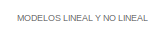
[diagram: root canvas - part 1/29, top center region]
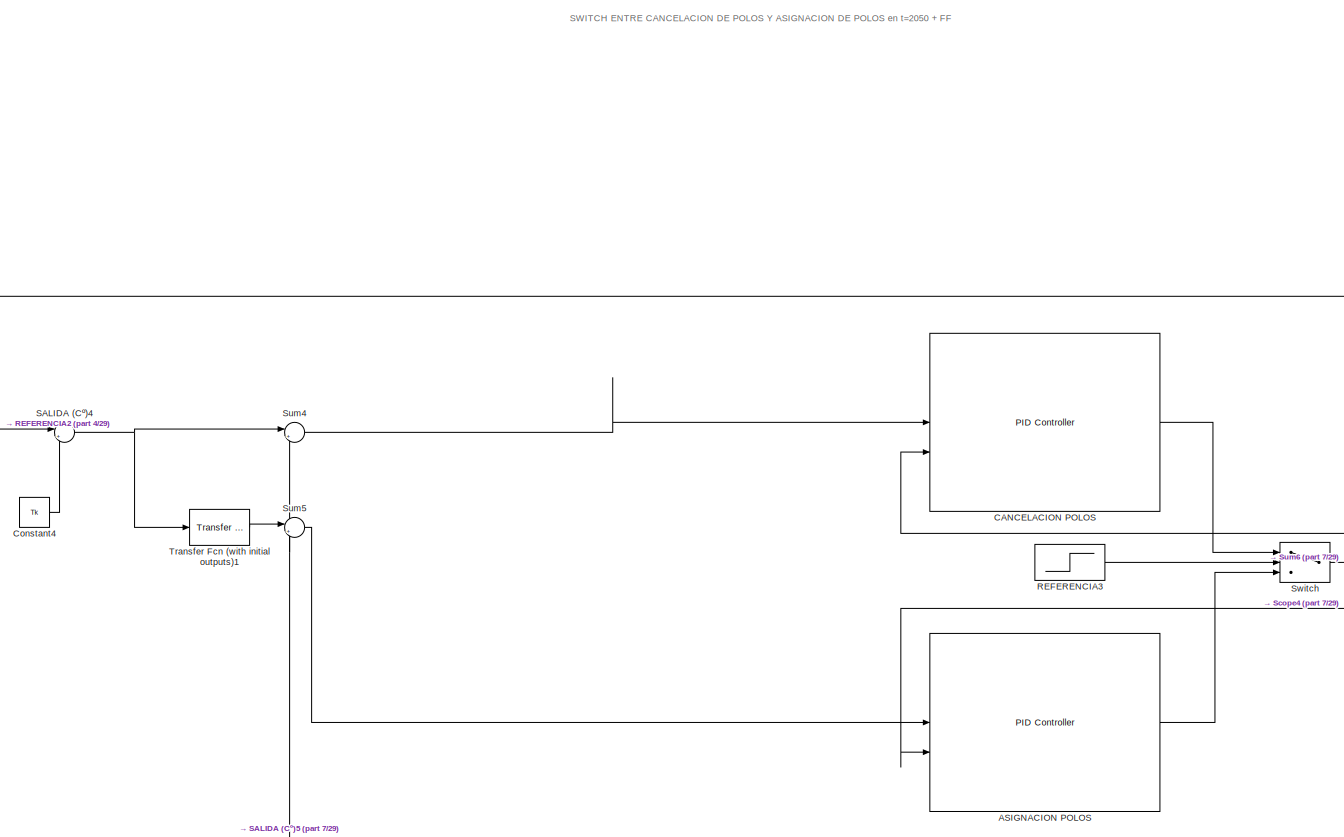
[diagram: root canvas - part 2/29, top right region]
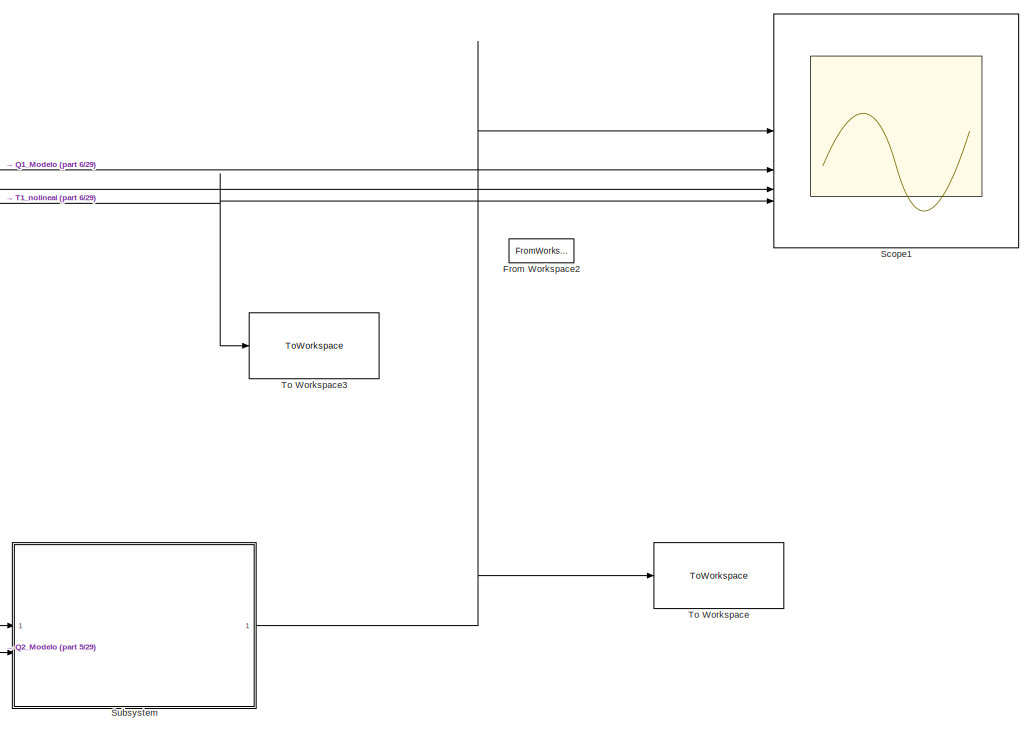
[diagram: root canvas - part 3/29, top center region]
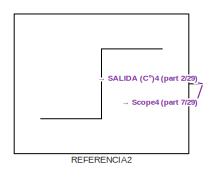
[diagram: root canvas - part 4/29, top right region]
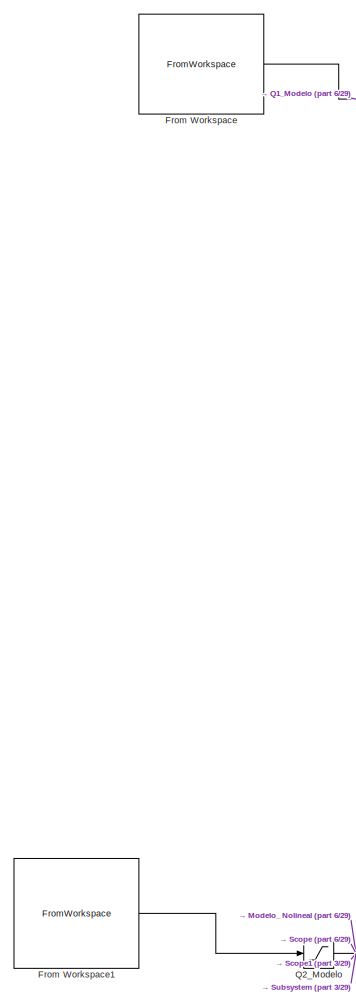
[diagram: root canvas - part 5/29, top center region]
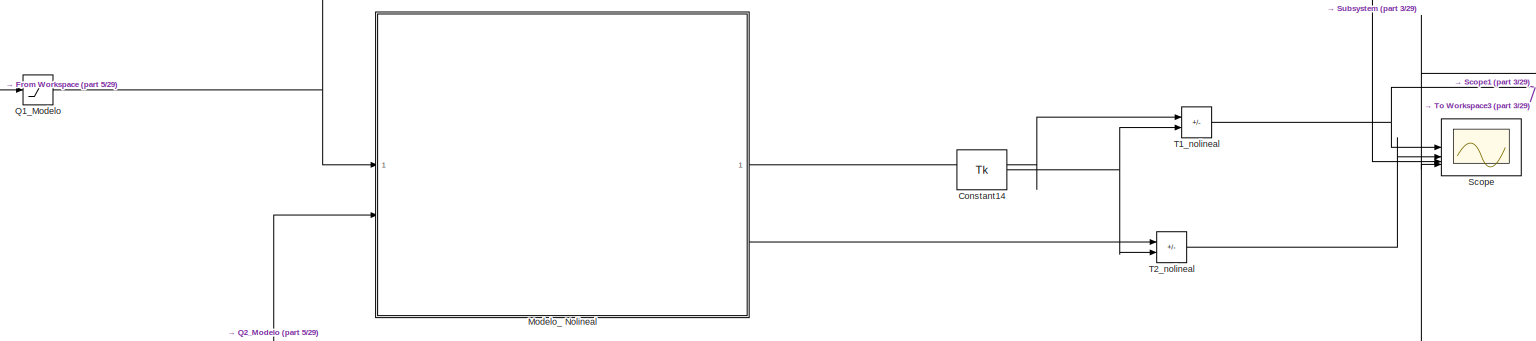
[diagram: root canvas - part 6/29, top center region]
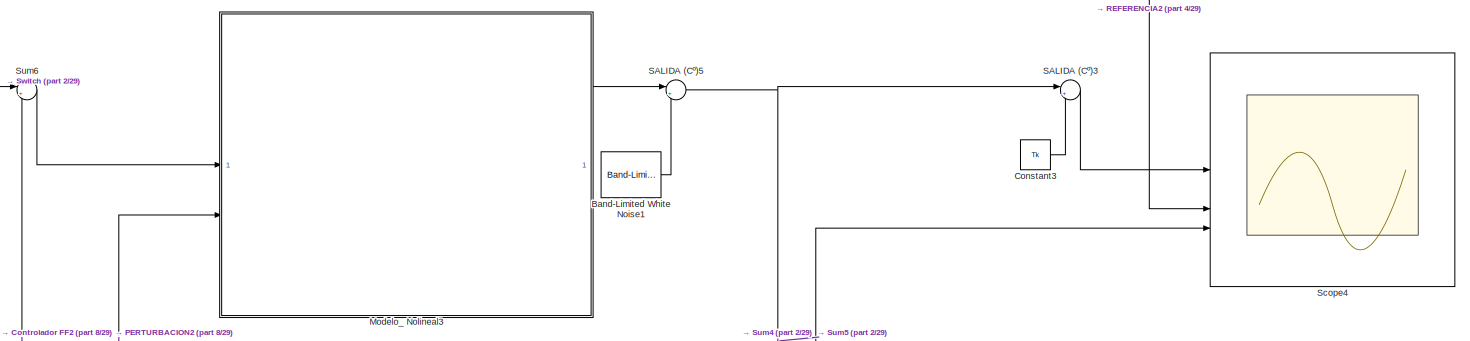
[diagram: root canvas - part 7/29, top right region]
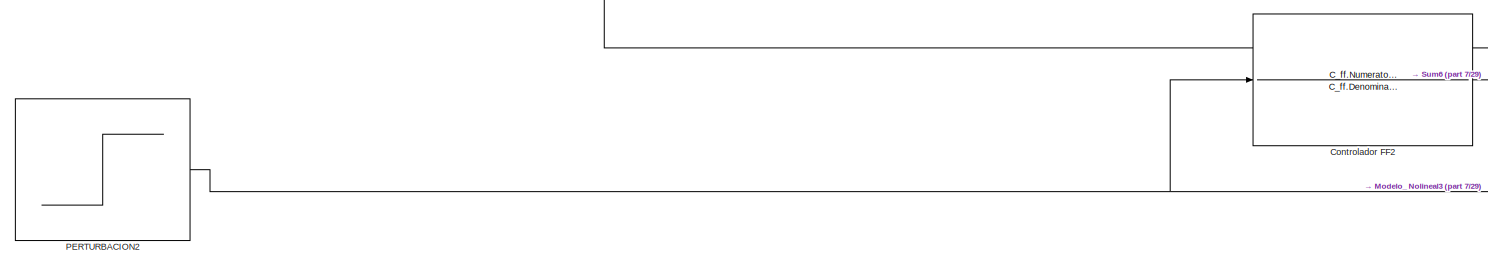
[diagram: root canvas - part 8/29, top right region]
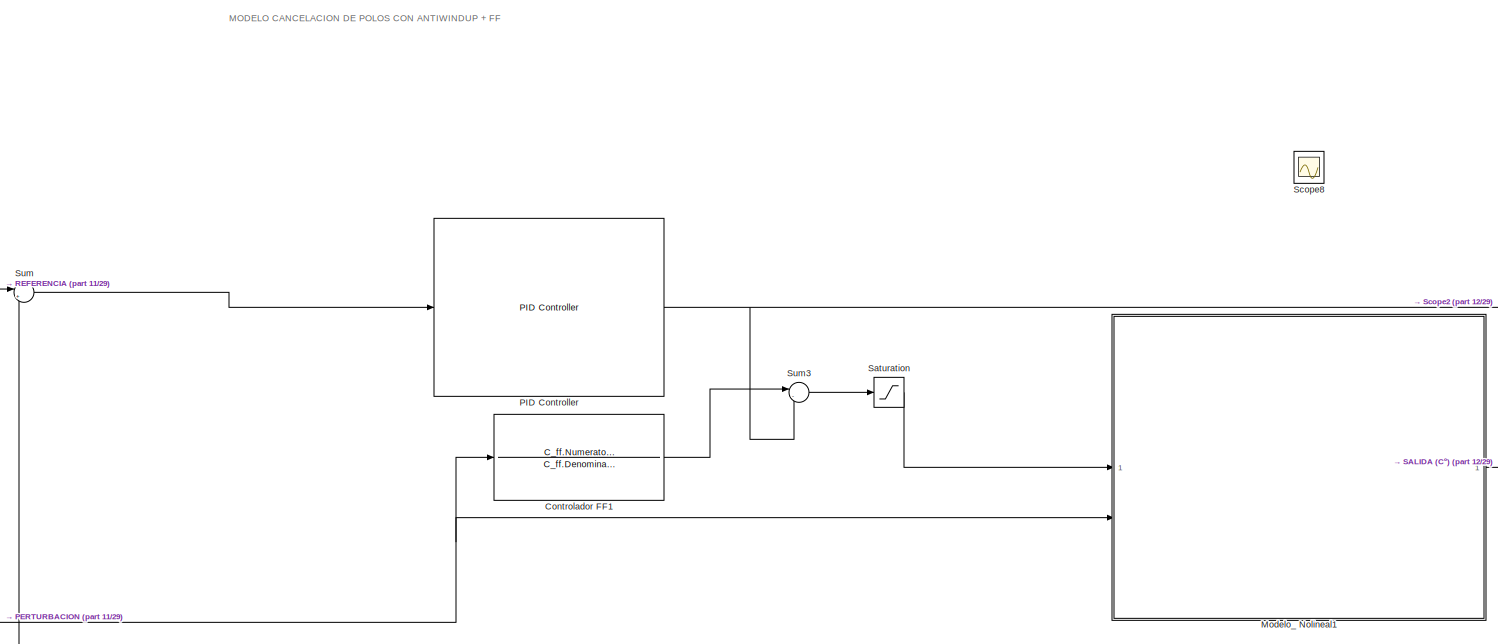
[diagram: root canvas - part 9/29, central region]
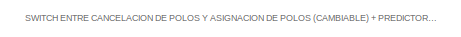
[diagram: root canvas - part 10/29, middle right region]
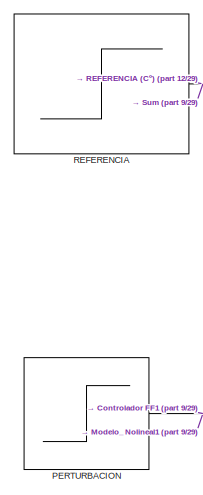
[diagram: root canvas - part 11/29, central region]
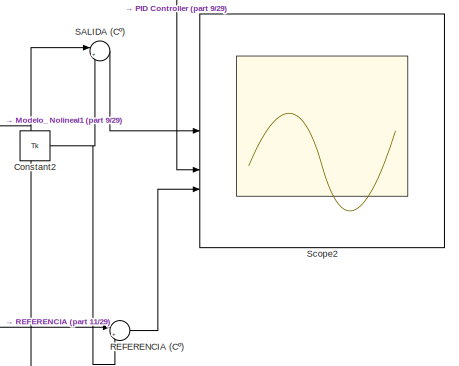
[diagram: root canvas - part 12/29, central region]
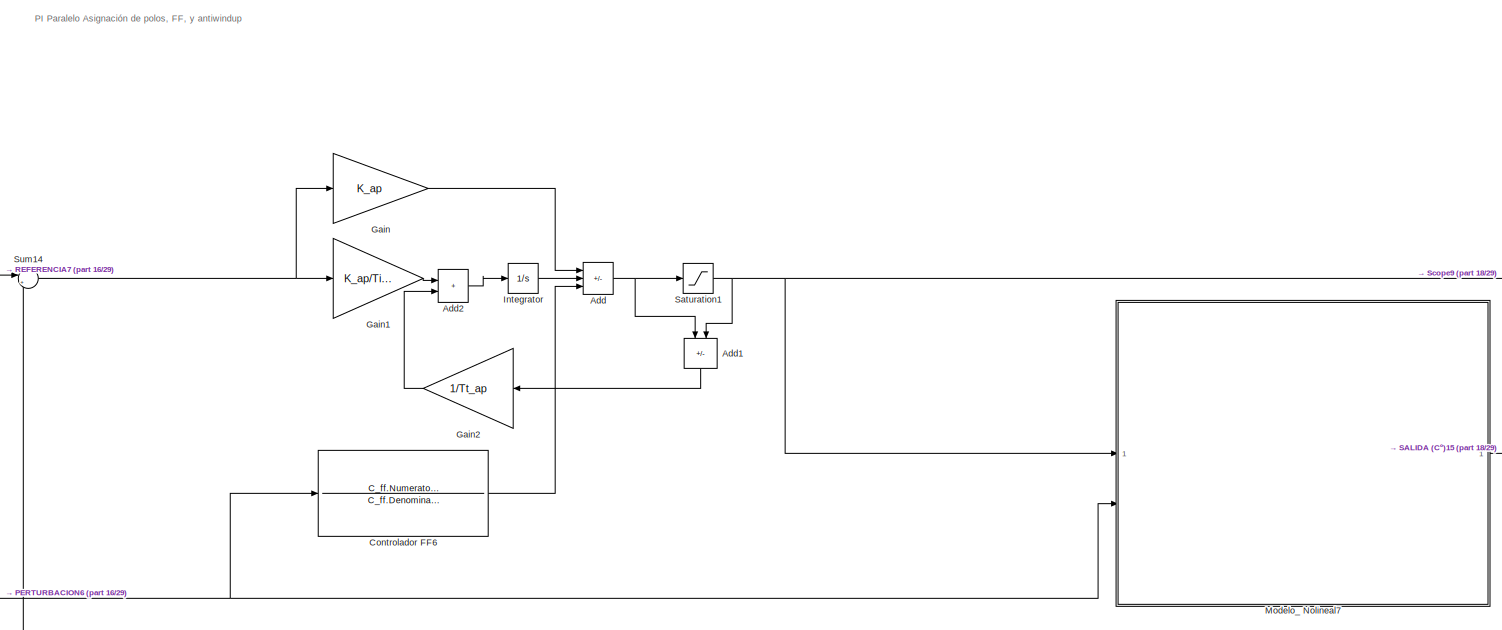
[diagram: root canvas - part 13/29, middle left region]
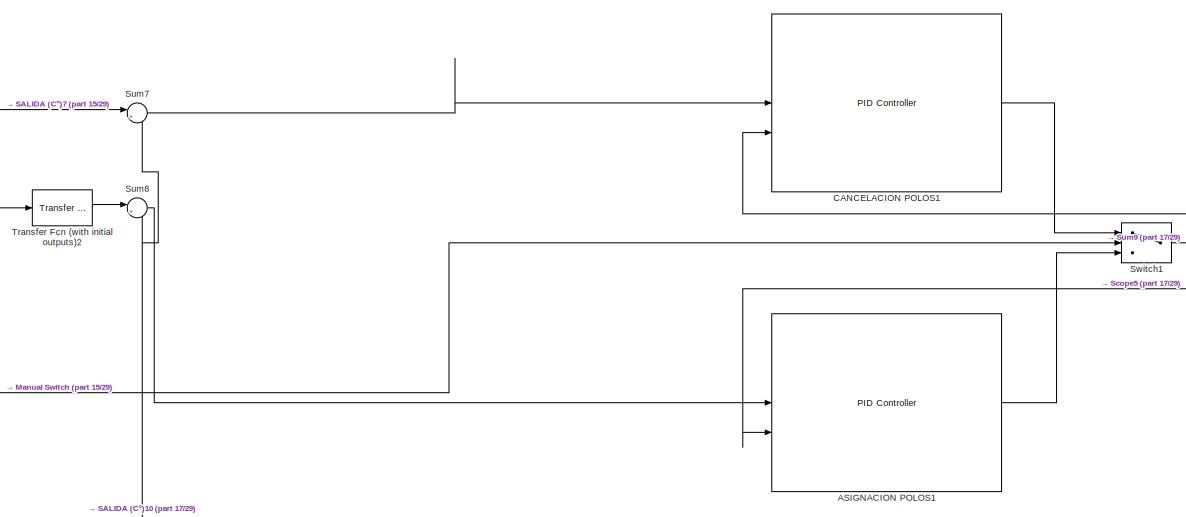
[diagram: root canvas - part 14/29, middle right region]
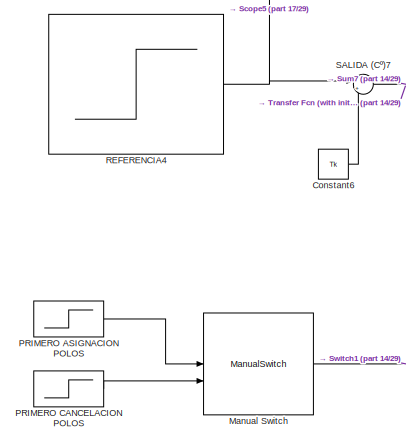
[diagram: root canvas - part 15/29, middle right region]
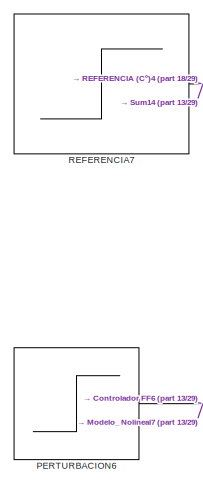
[diagram: root canvas - part 16/29, middle left region]
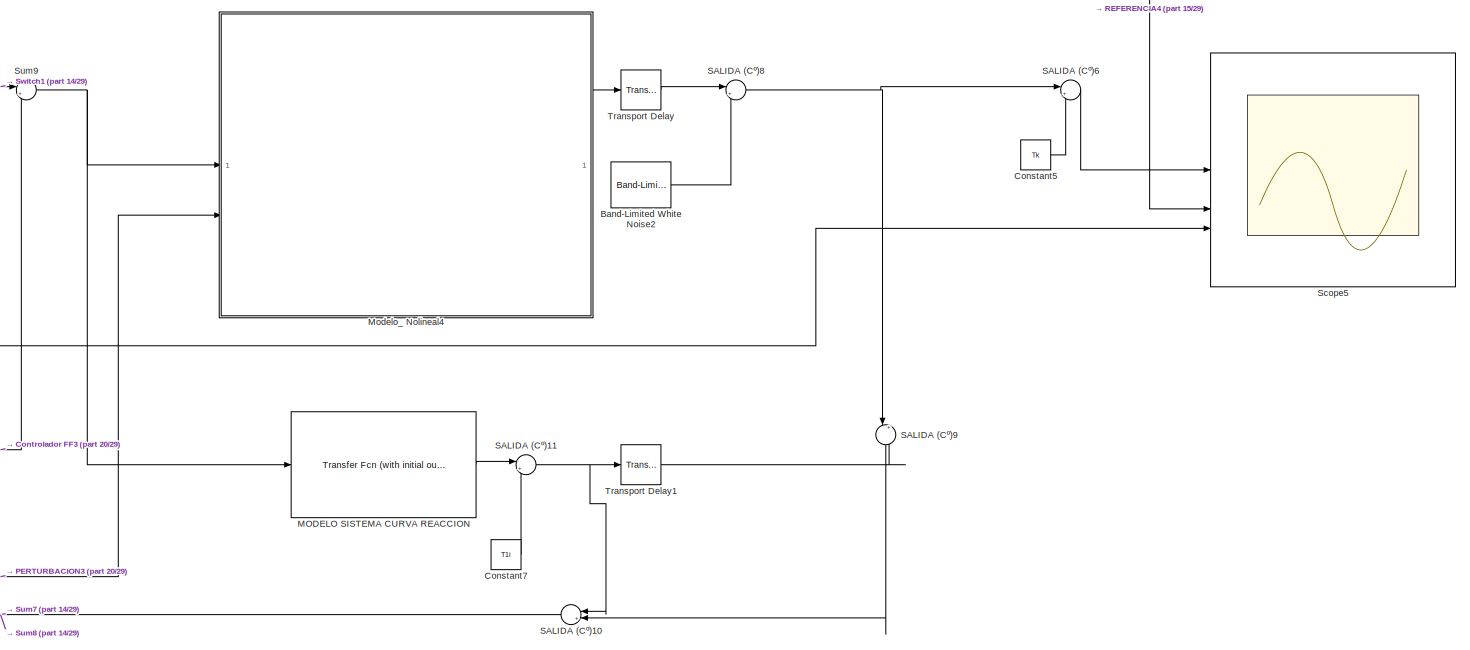
[diagram: root canvas - part 17/29, middle right region]
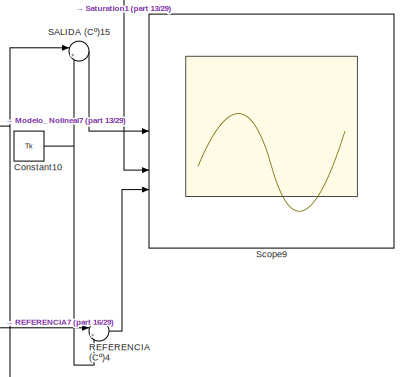
[diagram: root canvas - part 18/29, middle left region]
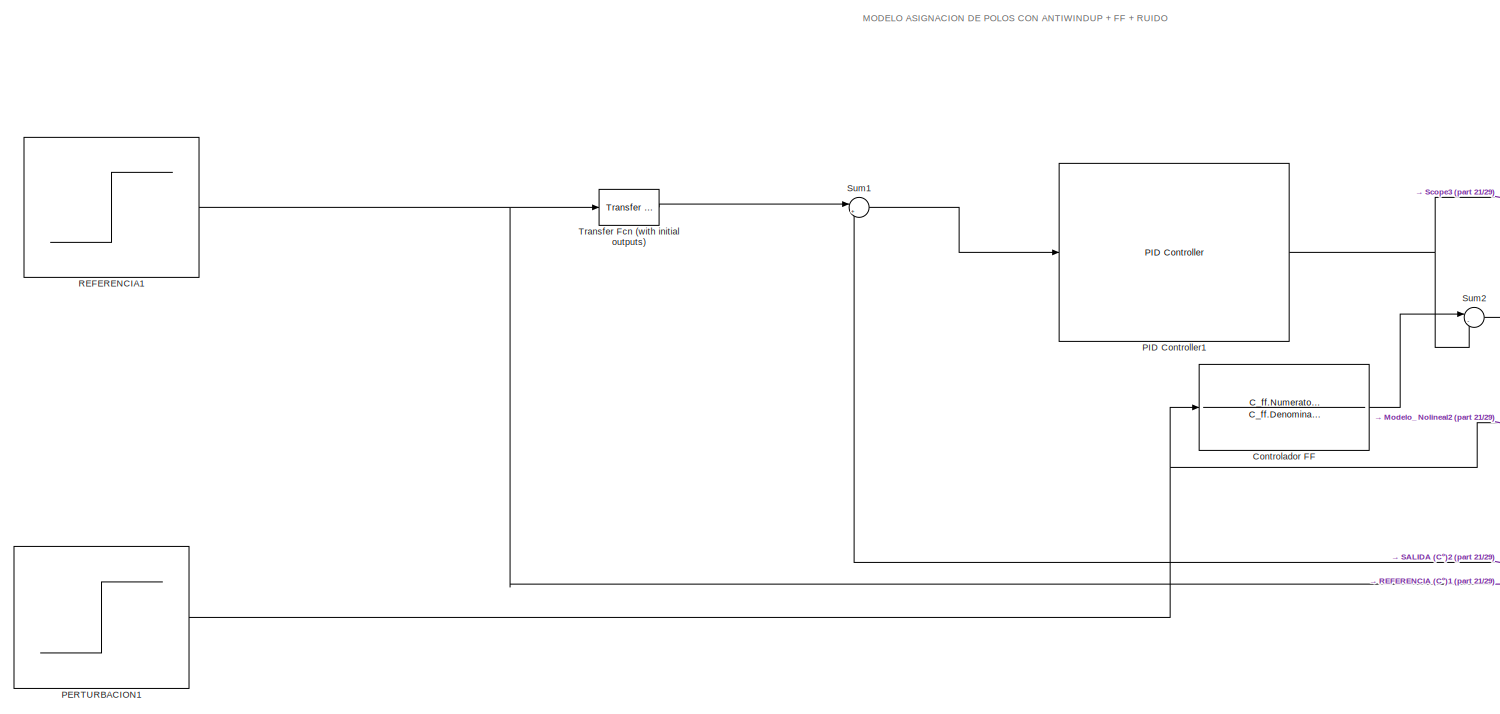
[diagram: root canvas - part 19/29, central region]
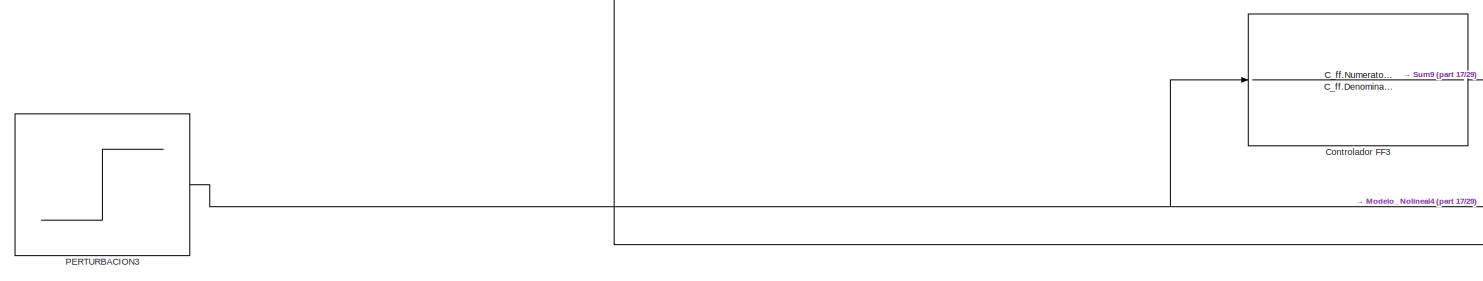
[diagram: root canvas - part 20/29, middle right region]
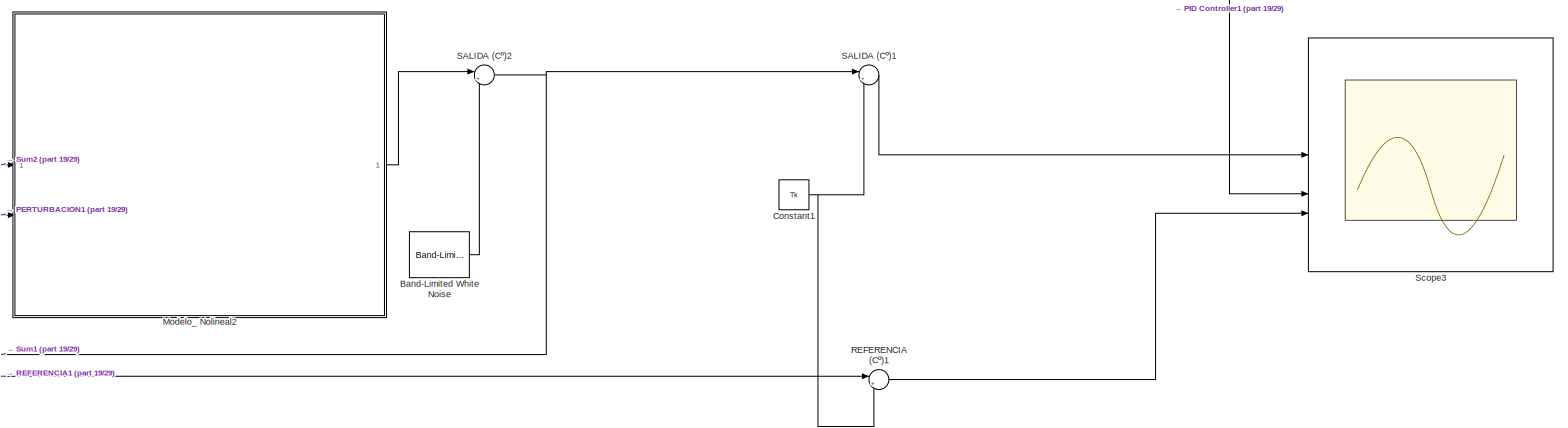
[diagram: root canvas - part 21/29, bottom center region]
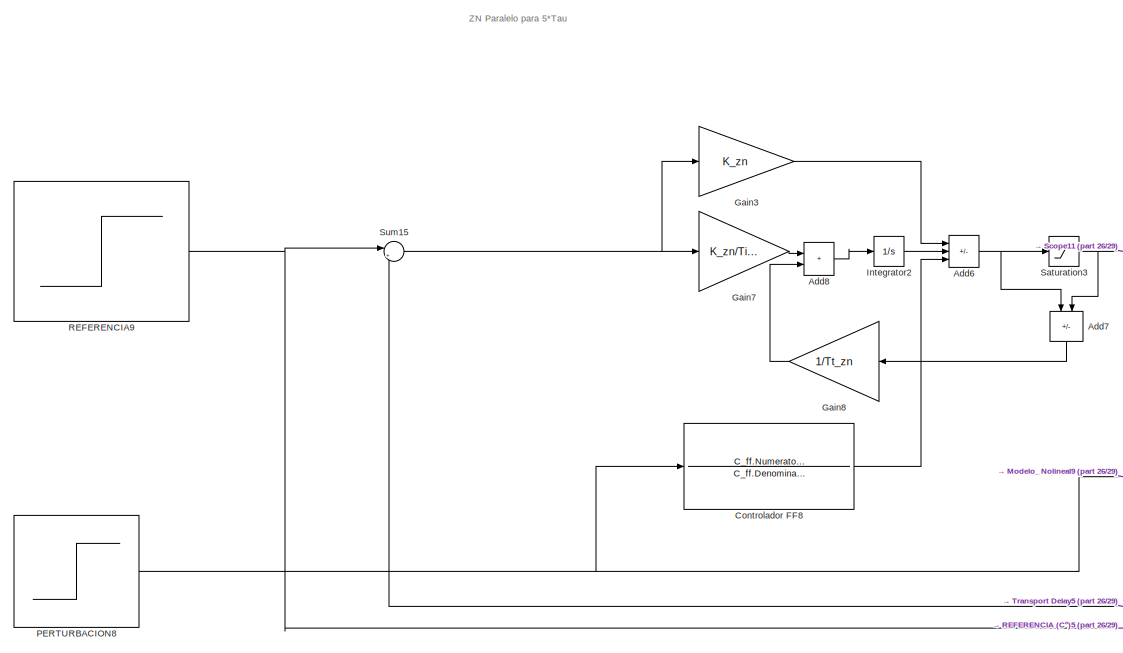
[diagram: root canvas - part 22/29, bottom left region]
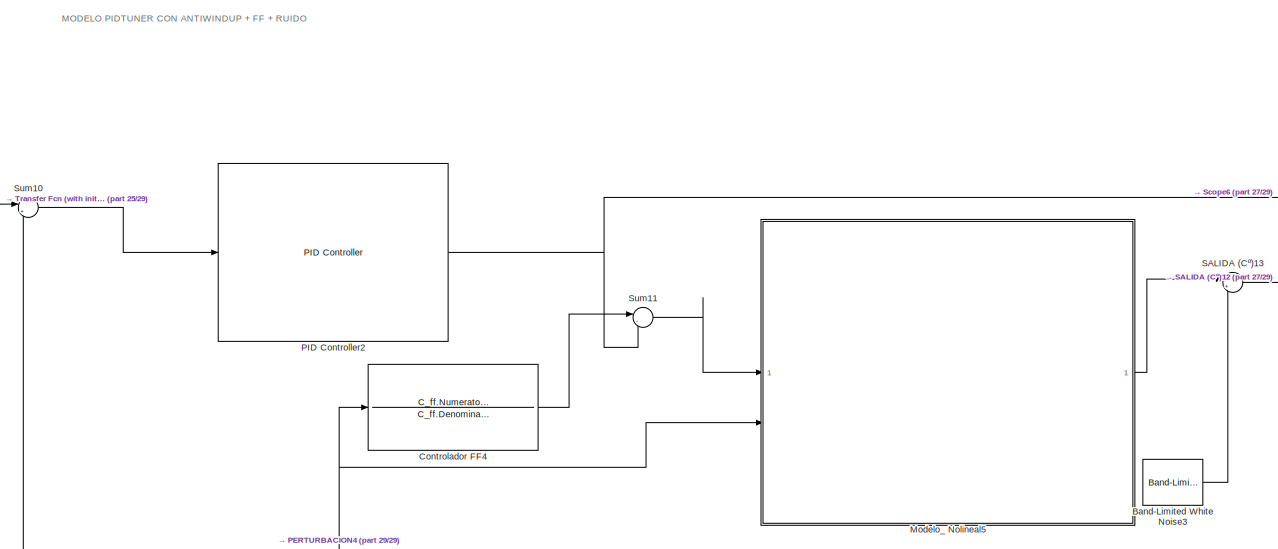
[diagram: root canvas - part 23/29, bottom center region]
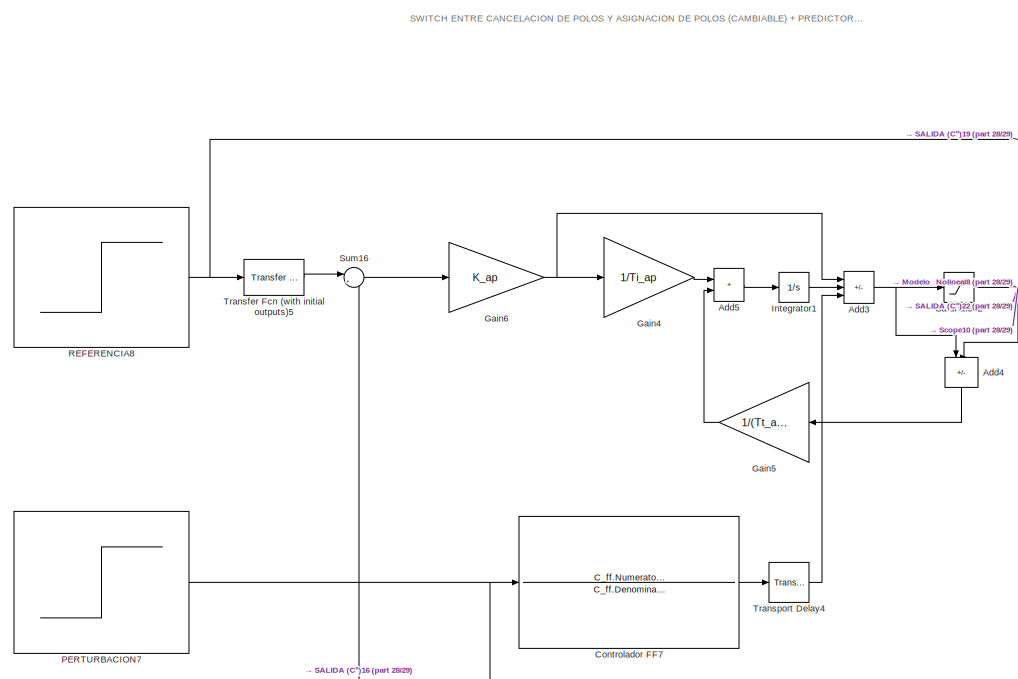
[diagram: root canvas - part 24/29, bottom right region]
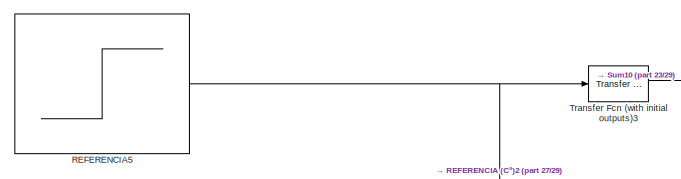
[diagram: root canvas - part 25/29, bottom center region]
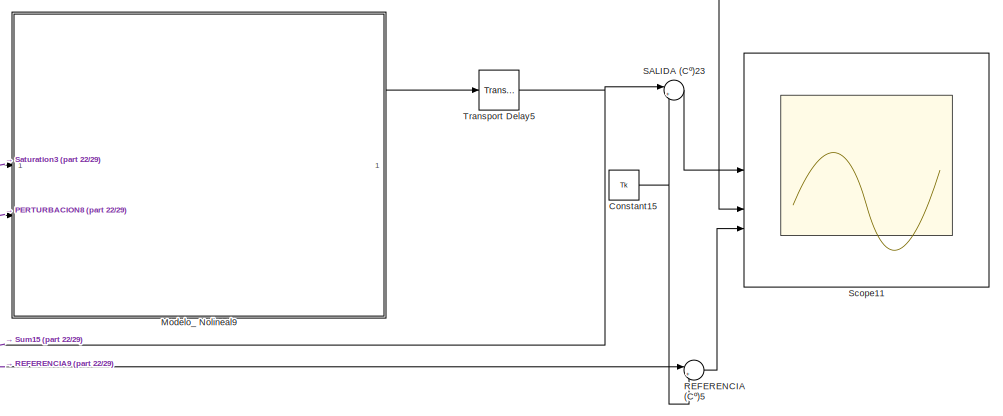
[diagram: root canvas - part 26/29, bottom left region]
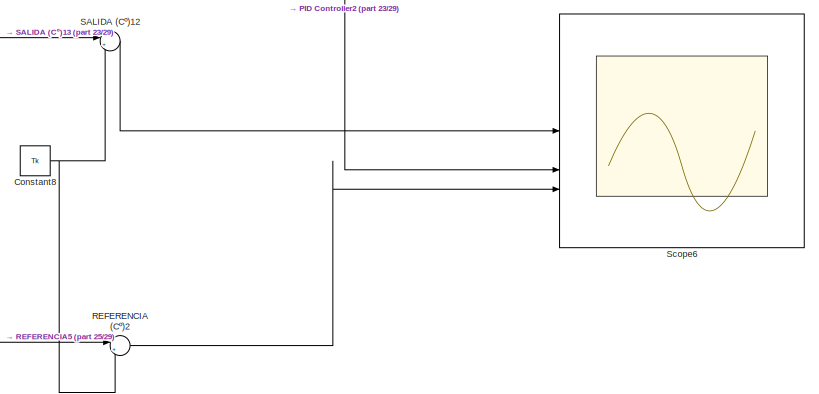
[diagram: root canvas - part 27/29, bottom center region]
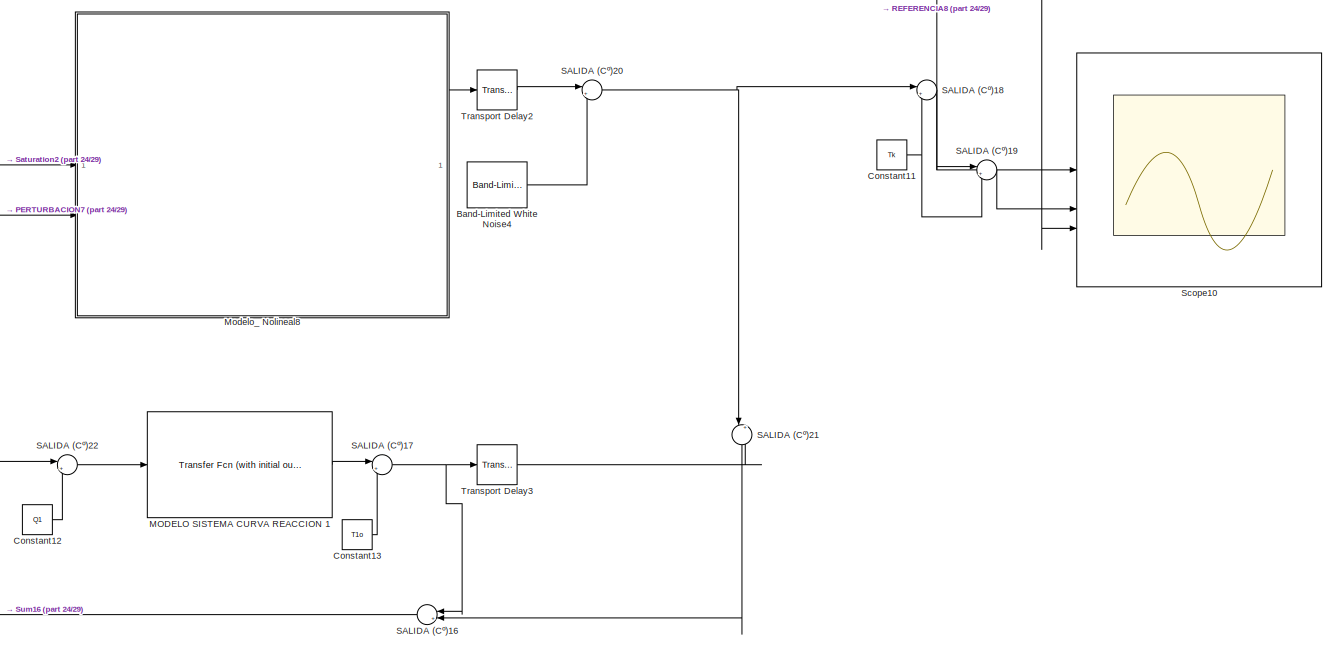
[diagram: root canvas - part 28/29, bottom right region]
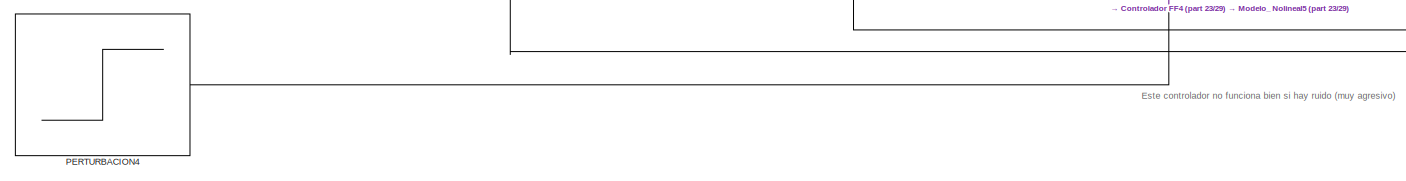
[diagram: root canvas - part 29/29, bottom center region]
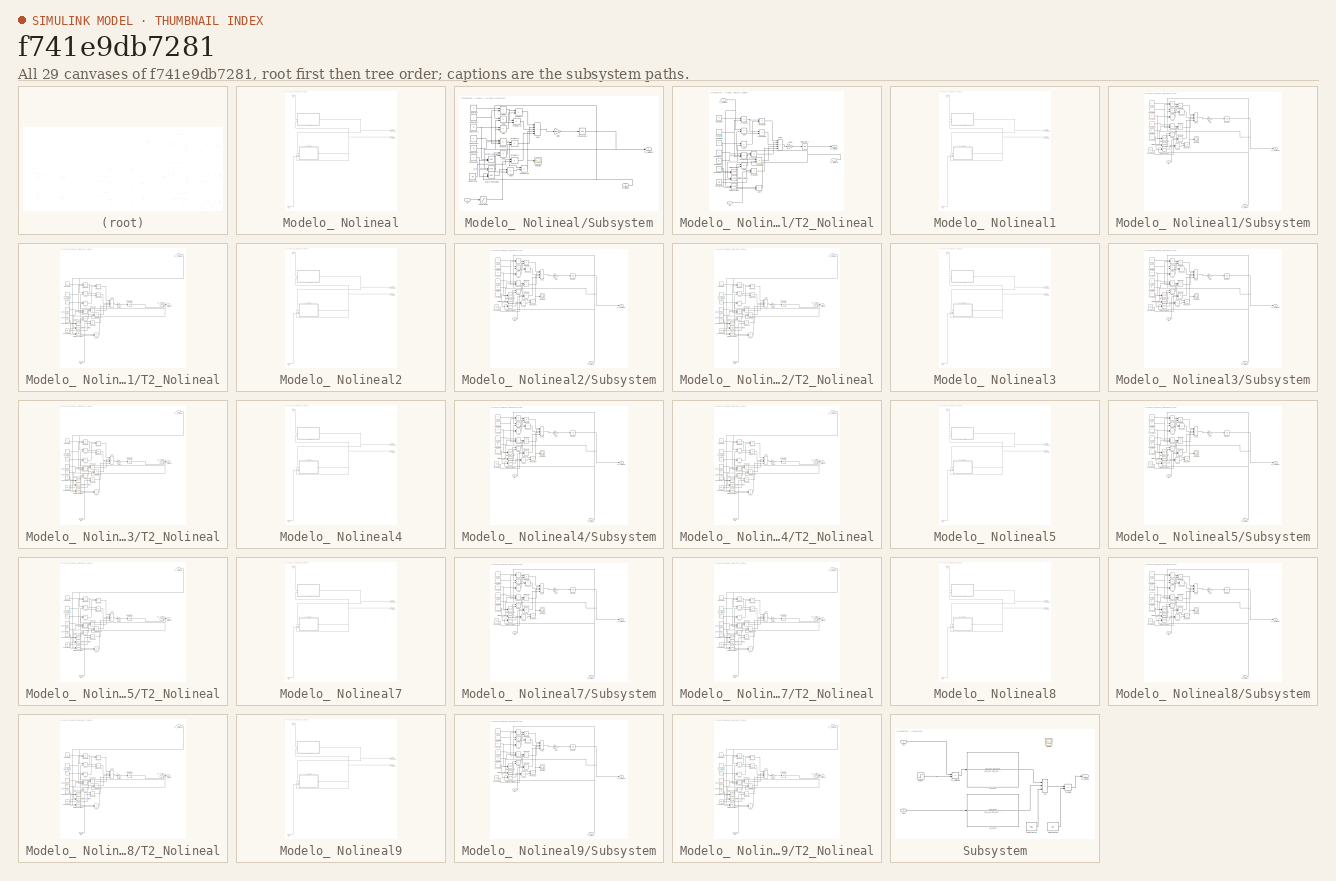
[diagram: thumbnail index - all 29 canvases of the model, root first then tree order]
MODEL slx_f741e9db7281
KIND model
CONFIG AbsTol = auto
CONFIG EnableMultiTasking = off
CONFIG FixedStep = auto
CONFIG MaxStep = auto
CONFIG MinStep = auto
CONFIG PreLoadFcn = var
CONFIG RelTol = 1e-3
CONFIG SampleTimeConstraint = Unconstrained
CONFIG SolverName = VariableStepAuto
CONFIG StartTime = 0.0
CONFIG StopTime = 6250
BLOCK [Reference] ASIGNACION POLOS  REF=slpidlib/PID Controller
  LibrarySourceBlock = simulink/Continuous/PID Controller
  SourceBlock = slpidlib/PID Controller
  SourceType = PID 1dof
BLOCK [Reference] ASIGNACION POLOS1  REF=slpidlib/PID Controller
  LibrarySourceBlock = simulink/Continuous/PID Controller
  SourceBlock = slpidlib/PID Controller
  SourceType = PID 1dof
BLOCK [Sum] Add
  IconShape = rectangular
  Inputs = ++-
BLOCK [Sum] Add1
  IconShape = rectangular
  Inputs = -+
  NameLocation = left
BLOCK [Sum] Add2
  IconShape = rectangular
BLOCK [Sum] Add3
  IconShape = rectangular
  Inputs = ++-
BLOCK [Sum] Add4
  IconShape = rectangular
  Inputs = -+
  NameLocation = left
BLOCK [Sum] Add5
  IconShape = rectangular
BLOCK [Sum] Add6
  IconShape = rectangular
  Inputs = ++-
BLOCK [Sum] Add7
  IconShape = rectangular
  Inputs = -+
  NameLocation = left
BLOCK [Sum] Add8
  IconShape = rectangular
BLOCK [Reference] Band-Limited White Noise  REF=simulink/Sources/Band-Limited
White Noise
  SourceBlock = simulink/Sources/Band-Limited\nWhite Noise
  SourceType = Band-Limited White Noise.
BLOCK [Reference] Band-Limited White Noise1  REF=simulink/Sources/Band-Limited
White Noise
  SourceBlock = simulink/Sources/Band-Limited\nWhite Noise
  SourceType = Band-Limited White Noise.
BLOCK [Reference] Band-Limited White Noise2  REF=simulink/Sources/Band-Limited
White Noise
  SourceBlock = simulink/Sources/Band-Limited\nWhite Noise
  SourceType = Band-Limited White Noise.
BLOCK [Reference] Band-Limited White Noise3  REF=simulink/Sources/Band-Limited
White Noise
  SourceBlock = simulink/Sources/Band-Limited\nWhite Noise
  SourceType = Band-Limited White Noise.
BLOCK [Reference] Band-Limited White Noise4  REF=simulink/Sources/Band-Limited
White Noise
  SourceBlock = simulink/Sources/Band-Limited\nWhite Noise
  SourceType = Band-Limited White Noise.
BLOCK [Reference] CANCELACION POLOS  REF=slpidlib/PID Controller
  LibrarySourceBlock = simulink/Continuous/PID Controller
  SourceBlock = slpidlib/PID Controller
  SourceType = PID 1dof
BLOCK [Reference] CANCELACION POLOS1  REF=slpidlib/PID Controller
  LibrarySourceBlock = simulink/Continuous/PID Controller
  SourceBlock = slpidlib/PID Controller
  SourceType = PID 1dof
BLOCK [Constant] Constant1
  Value = Tk
BLOCK [Constant] Constant10
  Value = Tk
BLOCK [Constant] Constant11
  Value = Tk
BLOCK [Constant] Constant12
  Value = Q1
BLOCK [Constant] Constant13
  Value = T1o
BLOCK [Constant] Constant14
  Value = Tk
BLOCK [Constant] Constant15
  Value = Tk
BLOCK [Constant] Constant2
  Value = Tk
BLOCK [Constant] Constant3
  Value = Tk
BLOCK [Constant] Constant4
  Value = Tk
BLOCK [Constant] Constant5
  Value = Tk
BLOCK [Constant] Constant6
  Value = Tk
BLOCK [Constant] Constant7
  Value = T1i
BLOCK [Constant] Constant8
  Value = Tk
BLOCK [TransferFcn] Controlador FF
  Denominator = C_ff.Denominator{:}
  Numerator = C_ff.Numerator{:}
BLOCK [TransferFcn] Controlador FF1
  Denominator = C_ff.Denominator{:}
  Numerator = C_ff.Numerator{:}
BLOCK [TransferFcn] Controlador FF2
  Denominator = C_ff.Denominator{:}
  Numerator = C_ff.Numerator{:}
BLOCK [TransferFcn] Controlador FF3
  Denominator = C_ff.Denominator{:}
  Numerator = C_ff.Numerator{:}
BLOCK [TransferFcn] Controlador FF4
  Denominator = C_ff.Denominator{:}
  Numerator = C_ff.Numerator{:}
BLOCK [TransferFcn] Controlador FF6
  Denominator = C_ff.Denominator{:}
  Numerator = C_ff.Numerator{:}
BLOCK [TransferFcn] Controlador FF7
  Denominator = C_ff.Denominator{:}
  Numerator = C_ff.Numerator{:}
BLOCK [TransferFcn] Controlador FF8
  Denominator = C_ff.Denominator{:}
  Numerator = C_ff.Numerator{:}
BLOCK [FromWorkspace] From Workspace
  SampleTime = 0.5
  VariableName = Q1t
BLOCK [FromWorkspace] From Workspace1
  SampleTime = 0.5
  VariableName = Q2t
BLOCK [FromWorkspace] From Workspace2
  VariableName = T1t
BLOCK [Gain] Gain
  Gain = K_ap
BLOCK [Gain] Gain1
  Gain = K_ap/Ti_ap
BLOCK [Gain] Gain2
  Gain = 1/Tt_ap
  NameLocation = top
BLOCK [Gain] Gain3
  Gain = K_zn
BLOCK [Gain] Gain4
  Gain = 1/Ti_ap
BLOCK [Gain] Gain5
  Gain = 1/(Tt_ap*K_ap)
  NameLocation = top
BLOCK [Gain] Gain6
  Gain = K_ap
BLOCK [Gain] Gain7
  Gain = K_zn/Ti_zn
BLOCK [Gain] Gain8
  Gain = 1/Tt_zn
  NameLocation = top
BLOCK [Integrator] Integrator
  InitialCondition = Q1
BLOCK [Integrator] Integrator1
  InitialCondition = Q1
BLOCK [Integrator] Integrator2
  InitialCondition = Q1
BLOCK [Reference] MODELO SISTEMA CURVA REACCION   REF=simulink_extras/Additional
Linear/Transfer Fcn
(with initial outputs)
  SourceBlock = simulink_extras/Additional\nLinear/Transfer Fcn\n(with initial outputs)
  SourceType = Transfer Function with Initial Outputs
BLOCK [Reference] MODELO SISTEMA CURVA REACCION 1  REF=simulink_extras/Additional
Linear/Transfer Fcn
(with initial outputs)
  SourceBlock = simulink_extras/Additional\nLinear/Transfer Fcn\n(with initial outputs)
  SourceType = Transfer Function with Initial Outputs
BLOCK [ManualSwitch] Manual Switch
  CurrentSetting = 0
BLOCK [SubSystem] Modelo_ Nolineal
BLOCK [Inport] Modelo_ Nolineal/Q1
BLOCK [Inport] Modelo_ Nolineal/Q2
  Port = 2
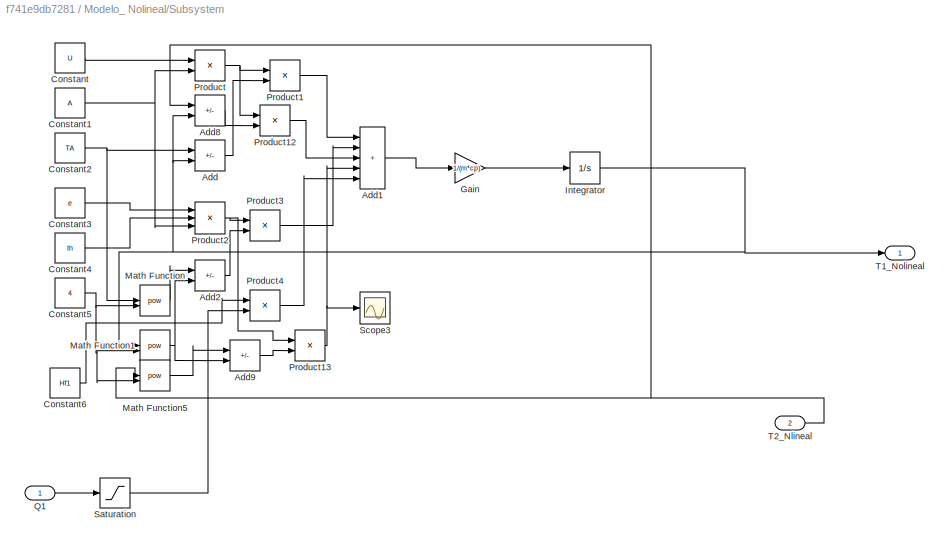
BLOCK [SubSystem] Modelo_ Nolineal/Subsystem
BLOCK [Sum] Modelo_ Nolineal/Subsystem/Add
  IconShape = rectangular
  Inputs = +-
BLOCK [Sum] Modelo_ Nolineal/Subsystem/Add1
  IconShape = rectangular
  Inputs = +++++
BLOCK [Sum] Modelo_ Nolineal/Subsystem/Add2
  IconShape = rectangular
  Inputs = +-
BLOCK [Sum] Modelo_ Nolineal/Subsystem/Add8
  IconShape = rectangular
  Inputs = +-
BLOCK [Sum] Modelo_ Nolineal/Subsystem/Add9
  IconShape = rectangular
  Inputs = +-
BLOCK [Constant] Modelo_ Nolineal/Subsystem/Constant
  Value = U
BLOCK [Constant] Modelo_ Nolineal/Subsystem/Constant1
  Value = A
BLOCK [Constant] Modelo_ Nolineal/Subsystem/Constant2
  Value = TA
BLOCK [Constant] Modelo_ Nolineal/Subsystem/Constant3
  Value = e
BLOCK [Constant] Modelo_ Nolineal/Subsystem/Constant4
  Value = th
BLOCK [Constant] Modelo_ Nolineal/Subsystem/Constant5
  Value = 4
BLOCK [Constant] Modelo_ Nolineal/Subsystem/Constant6
  Value = Hf1
BLOCK [Gain] Modelo_ Nolineal/Subsystem/Gain
  Gain = 1/(m*cp)
BLOCK [Integrator] Modelo_ Nolineal/Subsystem/Integrator
  InitialCondition = T1i
BLOCK [Math] Modelo_ Nolineal/Subsystem/Math Function
  Operator = pow
BLOCK [Math] Modelo_ Nolineal/Subsystem/Math Function1
  Operator = pow
BLOCK [Math] Modelo_ Nolineal/Subsystem/Math Function5
  Operator = pow
BLOCK [Product] Modelo_ Nolineal/Subsystem/Product
BLOCK [Product] Modelo_ Nolineal/Subsystem/Product1
BLOCK [Product] Modelo_ Nolineal/Subsystem/Product12
BLOCK [Product] Modelo_ Nolineal/Subsystem/Product13
BLOCK [Product] Modelo_ Nolineal/Subsystem/Product2
  Inputs = 3
BLOCK [Product] Modelo_ Nolineal/Subsystem/Product3
BLOCK [Product] Modelo_ Nolineal/Subsystem/Product4
BLOCK [Inport] Modelo_ Nolineal/Subsystem/Q1
BLOCK [Saturate] Modelo_ Nolineal/Subsystem/Saturation
  LowerLimit = 0
  UpperLimit = 100
BLOCK [Scope] Modelo_ Nolineal/Subsystem/Scope3
  Floating = off
  NumInputPorts = 1
  ScopeSpecificationString = Simulink.scopes.TimeScopeBlockCfg('CurrentConfiguration', extmgr.ConfigurationSet(extmgr.Configuration('Core','General UI',true),extmgr.Configuration('Core','Source UI',true),extmgr.Configuration('Sources','WiredSimulink',true,'DataLoggingVariableName','ScopeData2'),extmgr.Configuration('Visuals','Time Domain',true,'SerializedDisplays',{struct('MinYLimReal','-28.82457','MaxYLimReal','259.42113','Y...<+1448ch>  <repeated x9 — deduplicated; at blocks: Scope3>
BLOCK [Outport] Modelo_ Nolineal/Subsystem/T1_Nolineal
BLOCK [Inport] Modelo_ Nolineal/Subsystem/T2_Nlineal
  Port = 2
BLOCK [Outport] Modelo_ Nolineal/T1_Nolineal
BLOCK [Outport] Modelo_ Nolineal/T2_Nlineal
  Port = 2
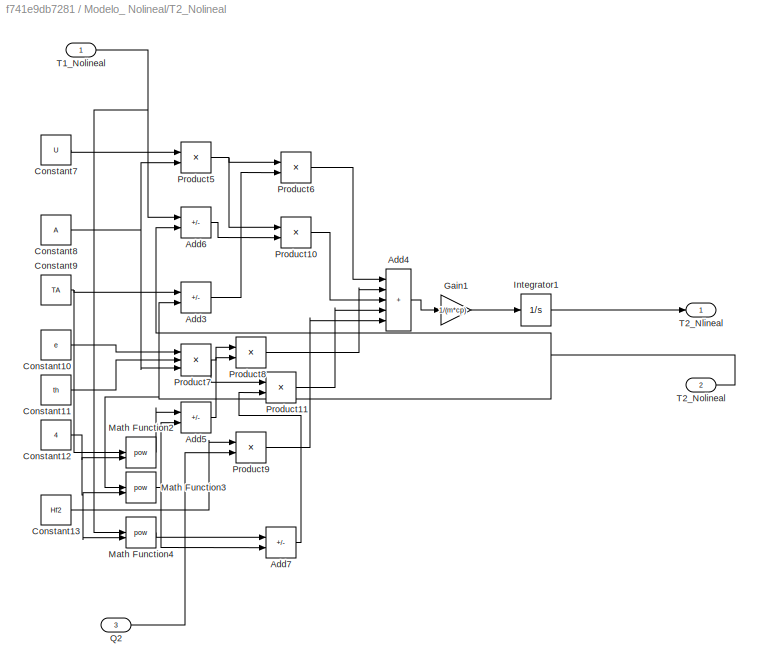
BLOCK [SubSystem] Modelo_ Nolineal/T2_Nolineal
BLOCK [Sum] Modelo_ Nolineal/T2_Nolineal/Add3
  IconShape = rectangular
  Inputs = +-
BLOCK [Sum] Modelo_ Nolineal/T2_Nolineal/Add4
  IconShape = rectangular
  Inputs = +++++
BLOCK [Sum] Modelo_ Nolineal/T2_Nolineal/Add5
  IconShape = rectangular
  Inputs = +-
BLOCK [Sum] Modelo_ Nolineal/T2_Nolineal/Add6
  IconShape = rectangular
  Inputs = +-
BLOCK [Sum] Modelo_ Nolineal/T2_Nolineal/Add7
  IconShape = rectangular
  Inputs = +-
BLOCK [Constant] Modelo_ Nolineal/T2_Nolineal/Constant10
  Value = e
BLOCK [Constant] Modelo_ Nolineal/T2_Nolineal/Constant11
  Value = th
BLOCK [Constant] Modelo_ Nolineal/T2_Nolineal/Constant12
  Value = 4
BLOCK [Constant] Modelo_ Nolineal/T2_Nolineal/Constant13
  Value = Hf2
BLOCK [Constant] Modelo_ Nolineal/T2_Nolineal/Constant7
  Value = U
BLOCK [Constant] Modelo_ Nolineal/T2_Nolineal/Constant8
  Value = A
BLOCK [Constant] Modelo_ Nolineal/T2_Nolineal/Constant9
  Value = TA
BLOCK [Gain] Modelo_ Nolineal/T2_Nolineal/Gain1
  Gain = 1/(m*cp)
BLOCK [Integrator] Modelo_ Nolineal/T2_Nolineal/Integrator1
  InitialCondition = T2i
BLOCK [Math] Modelo_ Nolineal/T2_Nolineal/Math Function2
  Operator = pow
BLOCK [Math] Modelo_ Nolineal/T2_Nolineal/Math Function3
  Operator = pow
BLOCK [Math] Modelo_ Nolineal/T2_Nolineal/Math Function4
  Operator = pow
BLOCK [Product] Modelo_ Nolineal/T2_Nolineal/Product10
BLOCK [Product] Modelo_ Nolineal/T2_Nolineal/Product11
BLOCK [Product] Modelo_ Nolineal/T2_Nolineal/Product5
BLOCK [Product] Modelo_ Nolineal/T2_Nolineal/Product6
BLOCK [Product] Modelo_ Nolineal/T2_Nolineal/Product7
  Inputs = 3
BLOCK [Product] Modelo_ Nolineal/T2_Nolineal/Product8
BLOCK [Product] Modelo_ Nolineal/T2_Nolineal/Product9
BLOCK [Inport] Modelo_ Nolineal/T2_Nolineal/Q2
  Port = 3
BLOCK [Inport] Modelo_ Nolineal/T2_Nolineal/T1_Nolineal
BLOCK [Outport] Modelo_ Nolineal/T2_Nolineal/T2_Nlineal
BLOCK [Inport] Modelo_ Nolineal/T2_Nolineal/T2_Nolineal
  Port = 2
BLOCK [SubSystem] Modelo_ Nolineal1
BLOCK [Inport] Modelo_ Nolineal1/Q1
BLOCK [Inport] Modelo_ Nolineal1/Q2
  Port = 2
BLOCK [SubSystem] Modelo_ Nolineal1/Subsystem
BLOCK [Sum] Modelo_ Nolineal1/Subsystem/Add
  IconShape = rectangular
  Inputs = +-
BLOCK [Sum] Modelo_ Nolineal1/Subsystem/Add1
  IconShape = rectangular
  Inputs = +++++
BLOCK [Sum] Modelo_ Nolineal1/Subsystem/Add2
  IconShape = rectangular
  Inputs = +-
BLOCK [Sum] Modelo_ Nolineal1/Subsystem/Add8
  IconShape = rectangular
  Inputs = +-
BLOCK [Sum] Modelo_ Nolineal1/Subsystem/Add9
  IconShape = rectangular
  Inputs = +-
BLOCK [Constant] Modelo_ Nolineal1/Subsystem/Constant
  Value = U
BLOCK [Constant] Modelo_ Nolineal1/Subsystem/Constant1
  Value = A
BLOCK [Constant] Modelo_ Nolineal1/Subsystem/Constant2
  Value = TA
BLOCK [Constant] Modelo_ Nolineal1/Subsystem/Constant3
  Value = e
BLOCK [Constant] Modelo_ Nolineal1/Subsystem/Constant4
  Value = th
BLOCK [Constant] Modelo_ Nolineal1/Subsystem/Constant5
  Value = 4
BLOCK [Constant] Modelo_ Nolineal1/Subsystem/Constant6
  Value = Hf1
BLOCK [Gain] Modelo_ Nolineal1/Subsystem/Gain
  Gain = 1/(m*cp)
BLOCK [Integrator] Modelo_ Nolineal1/Subsystem/Integrator
  InitialCondition = T1i
BLOCK [Math] Modelo_ Nolineal1/Subsystem/Math Function
  Operator = pow
BLOCK [Math] Modelo_ Nolineal1/Subsystem/Math Function1
  Operator = pow
BLOCK [Math] Modelo_ Nolineal1/Subsystem/Math Function5
  Operator = pow
BLOCK [Product] Modelo_ Nolineal1/Subsystem/Product
BLOCK [Product] Modelo_ Nolineal1/Subsystem/Product1
BLOCK [Product] Modelo_ Nolineal1/Subsystem/Product12
BLOCK [Product] Modelo_ Nolineal1/Subsystem/Product13
BLOCK [Product] Modelo_ Nolineal1/Subsystem/Product2
  Inputs = 3
BLOCK [Product] Modelo_ Nolineal1/Subsystem/Product3
BLOCK [Product] Modelo_ Nolineal1/Subsystem/Product4
BLOCK [Inport] Modelo_ Nolineal1/Subsystem/Q1
BLOCK [Scope] Modelo_ Nolineal1/Subsystem/Scope3
  Floating = off
  NumInputPorts = 1
BLOCK [Outport] Modelo_ Nolineal1/Subsystem/T1_Nolineal
BLOCK [Inport] Modelo_ Nolineal1/Subsystem/T2_Nlineal
  Port = 2
BLOCK [Outport] Modelo_ Nolineal1/T1_Nolineal
BLOCK [Outport] Modelo_ Nolineal1/T2_Nlineal
  Port = 2
BLOCK [SubSystem] Modelo_ Nolineal1/T2_Nolineal
BLOCK [Sum] Modelo_ Nolineal1/T2_Nolineal/Add3
  IconShape = rectangular
  Inputs = +-
BLOCK [Sum] Modelo_ Nolineal1/T2_Nolineal/Add4
  IconShape = rectangular
  Inputs = +++++
BLOCK [Sum] Modelo_ Nolineal1/T2_Nolineal/Add5
  IconShape = rectangular
  Inputs = +-
BLOCK [Sum] Modelo_ Nolineal1/T2_Nolineal/Add6
  IconShape = rectangular
  Inputs = +-
BLOCK [Sum] Modelo_ Nolineal1/T2_Nolineal/Add7
  IconShape = rectangular
  Inputs = +-
BLOCK [Constant] Modelo_ Nolineal1/T2_Nolineal/Constant10
  Value = e
BLOCK [Constant] Modelo_ Nolineal1/T2_Nolineal/Constant11
  Value = th
BLOCK [Constant] Modelo_ Nolineal1/T2_Nolineal/Constant12
  Value = 4
BLOCK [Constant] Modelo_ Nolineal1/T2_Nolineal/Constant13
  Value = Hf2
BLOCK [Constant] Modelo_ Nolineal1/T2_Nolineal/Constant7
  Value = U
BLOCK [Constant] Modelo_ Nolineal1/T2_Nolineal/Constant8
  Value = A
BLOCK [Constant] Modelo_ Nolineal1/T2_Nolineal/Constant9
  Value = TA
BLOCK [Gain] Modelo_ Nolineal1/T2_Nolineal/Gain1
  Gain = 1/(m*cp)
BLOCK [Integrator] Modelo_ Nolineal1/T2_Nolineal/Integrator1
  InitialCondition = T2i
BLOCK [Math] Modelo_ Nolineal1/T2_Nolineal/Math Function2
  Operator = pow
BLOCK [Math] Modelo_ Nolineal1/T2_Nolineal/Math Function3
  Operator = pow
BLOCK [Math] Modelo_ Nolineal1/T2_Nolineal/Math Function4
  Operator = pow
BLOCK [Product] Modelo_ Nolineal1/T2_Nolineal/Product10
BLOCK [Product] Modelo_ Nolineal1/T2_Nolineal/Product11
BLOCK [Product] Modelo_ Nolineal1/T2_Nolineal/Product5
BLOCK [Product] Modelo_ Nolineal1/T2_Nolineal/Product6
BLOCK [Product] Modelo_ Nolineal1/T2_Nolineal/Product7
  Inputs = 3
BLOCK [Product] Modelo_ Nolineal1/T2_Nolineal/Product8
BLOCK [Product] Modelo_ Nolineal1/T2_Nolineal/Product9
BLOCK [Inport] Modelo_ Nolineal1/T2_Nolineal/Q2
  Port = 3
BLOCK [Inport] Modelo_ Nolineal1/T2_Nolineal/T1_Nolineal
BLOCK [Outport] Modelo_ Nolineal1/T2_Nolineal/T2_Nlineal
BLOCK [Inport] Modelo_ Nolineal1/T2_Nolineal/T2_Nolineal
  Port = 2
BLOCK [SubSystem] Modelo_ Nolineal2
BLOCK [Inport] Modelo_ Nolineal2/Q1
BLOCK [Inport] Modelo_ Nolineal2/Q2
  Port = 2
BLOCK [SubSystem] Modelo_ Nolineal2/Subsystem
BLOCK [Sum] Modelo_ Nolineal2/Subsystem/Add
  IconShape = rectangular
  Inputs = +-
BLOCK [Sum] Modelo_ Nolineal2/Subsystem/Add1
  IconShape = rectangular
  Inputs = +++++
BLOCK [Sum] Modelo_ Nolineal2/Subsystem/Add2
  IconShape = rectangular
  Inputs = +-
BLOCK [Sum] Modelo_ Nolineal2/Subsystem/Add8
  IconShape = rectangular
  Inputs = +-
BLOCK [Sum] Modelo_ Nolineal2/Subsystem/Add9
  IconShape = rectangular
  Inputs = +-
BLOCK [Constant] Modelo_ Nolineal2/Subsystem/Constant
  Value = U
BLOCK [Constant] Modelo_ Nolineal2/Subsystem/Constant1
  Value = A
BLOCK [Constant] Modelo_ Nolineal2/Subsystem/Constant2
  Value = TA
BLOCK [Constant] Modelo_ Nolineal2/Subsystem/Constant3
  Value = e
BLOCK [Constant] Modelo_ Nolineal2/Subsystem/Constant4
  Value = th
BLOCK [Constant] Modelo_ Nolineal2/Subsystem/Constant5
  Value = 4
BLOCK [Constant] Modelo_ Nolineal2/Subsystem/Constant6
  Value = Hf1
BLOCK [Gain] Modelo_ Nolineal2/Subsystem/Gain
  Gain = 1/(m*cp)
BLOCK [Integrator] Modelo_ Nolineal2/Subsystem/Integrator
  InitialCondition = T1i
BLOCK [Math] Modelo_ Nolineal2/Subsystem/Math Function
  Operator = pow
BLOCK [Math] Modelo_ Nolineal2/Subsystem/Math Function1
  Operator = pow
BLOCK [Math] Modelo_ Nolineal2/Subsystem/Math Function5
  Operator = pow
BLOCK [Product] Modelo_ Nolineal2/Subsystem/Product
BLOCK [Product] Modelo_ Nolineal2/Subsystem/Product1
BLOCK [Product] Modelo_ Nolineal2/Subsystem/Product12
BLOCK [Product] Modelo_ Nolineal2/Subsystem/Product13
BLOCK [Product] Modelo_ Nolineal2/Subsystem/Product2
  Inputs = 3
BLOCK [Product] Modelo_ Nolineal2/Subsystem/Product3
BLOCK [Product] Modelo_ Nolineal2/Subsystem/Product4
BLOCK [Inport] Modelo_ Nolineal2/Subsystem/Q1
BLOCK [Scope] Modelo_ Nolineal2/Subsystem/Scope3
  Floating = off
  NumInputPorts = 1
BLOCK [Outport] Modelo_ Nolineal2/Subsystem/T1_Nolineal
BLOCK [Inport] Modelo_ Nolineal2/Subsystem/T2_Nlineal
  Port = 2
BLOCK [Outport] Modelo_ Nolineal2/T1_Nolineal
BLOCK [Outport] Modelo_ Nolineal2/T2_Nlineal
  Port = 2
BLOCK [SubSystem] Modelo_ Nolineal2/T2_Nolineal
BLOCK [Sum] Modelo_ Nolineal2/T2_Nolineal/Add3
  IconShape = rectangular
  Inputs = +-
BLOCK [Sum] Modelo_ Nolineal2/T2_Nolineal/Add4
  IconShape = rectangular
  Inputs = +++++
BLOCK [Sum] Modelo_ Nolineal2/T2_Nolineal/Add5
  IconShape = rectangular
  Inputs = +-
BLOCK [Sum] Modelo_ Nolineal2/T2_Nolineal/Add6
  IconShape = rectangular
  Inputs = +-
BLOCK [Sum] Modelo_ Nolineal2/T2_Nolineal/Add7
  IconShape = rectangular
  Inputs = +-
BLOCK [Constant] Modelo_ Nolineal2/T2_Nolineal/Constant10
  Value = e
BLOCK [Constant] Modelo_ Nolineal2/T2_Nolineal/Constant11
  Value = th
BLOCK [Constant] Modelo_ Nolineal2/T2_Nolineal/Constant12
  Value = 4
BLOCK [Constant] Modelo_ Nolineal2/T2_Nolineal/Constant13
  Value = Hf2
BLOCK [Constant] Modelo_ Nolineal2/T2_Nolineal/Constant7
  Value = U
BLOCK [Constant] Modelo_ Nolineal2/T2_Nolineal/Constant8
  Value = A
BLOCK [Constant] Modelo_ Nolineal2/T2_Nolineal/Constant9
  Value = TA
BLOCK [Gain] Modelo_ Nolineal2/T2_Nolineal/Gain1
  Gain = 1/(m*cp)
BLOCK [Integrator] Modelo_ Nolineal2/T2_Nolineal/Integrator1
  InitialCondition = T2i
BLOCK [Math] Modelo_ Nolineal2/T2_Nolineal/Math Function2
  Operator = pow
BLOCK [Math] Modelo_ Nolineal2/T2_Nolineal/Math Function3
  Operator = pow
BLOCK [Math] Modelo_ Nolineal2/T2_Nolineal/Math Function4
  Operator = pow
BLOCK [Product] Modelo_ Nolineal2/T2_Nolineal/Product10
BLOCK [Product] Modelo_ Nolineal2/T2_Nolineal/Product11
BLOCK [Product] Modelo_ Nolineal2/T2_Nolineal/Product5
BLOCK [Product] Modelo_ Nolineal2/T2_Nolineal/Product6
BLOCK [Product] Modelo_ Nolineal2/T2_Nolineal/Product7
  Inputs = 3
BLOCK [Product] Modelo_ Nolineal2/T2_Nolineal/Product8
BLOCK [Product] Modelo_ Nolineal2/T2_Nolineal/Product9
BLOCK [Inport] Modelo_ Nolineal2/T2_Nolineal/Q2
  Port = 3
BLOCK [Inport] Modelo_ Nolineal2/T2_Nolineal/T1_Nolineal
BLOCK [Outport] Modelo_ Nolineal2/T2_Nolineal/T2_Nlineal
BLOCK [Inport] Modelo_ Nolineal2/T2_Nolineal/T2_Nolineal
  Port = 2
BLOCK [SubSystem] Modelo_ Nolineal3
BLOCK [Inport] Modelo_ Nolineal3/Q1
BLOCK [Inport] Modelo_ Nolineal3/Q2
  Port = 2
BLOCK [SubSystem] Modelo_ Nolineal3/Subsystem
BLOCK [Sum] Modelo_ Nolineal3/Subsystem/Add
  IconShape = rectangular
  Inputs = +-
BLOCK [Sum] Modelo_ Nolineal3/Subsystem/Add1
  IconShape = rectangular
  Inputs = +++++
BLOCK [Sum] Modelo_ Nolineal3/Subsystem/Add2
  IconShape = rectangular
  Inputs = +-
BLOCK [Sum] Modelo_ Nolineal3/Subsystem/Add8
  IconShape = rectangular
  Inputs = +-
BLOCK [Sum] Modelo_ Nolineal3/Subsystem/Add9
  IconShape = rectangular
  Inputs = +-
BLOCK [Constant] Modelo_ Nolineal3/Subsystem/Constant
  Value = U
BLOCK [Constant] Modelo_ Nolineal3/Subsystem/Constant1
  Value = A
BLOCK [Constant] Modelo_ Nolineal3/Subsystem/Constant2
  Value = TA
BLOCK [Constant] Modelo_ Nolineal3/Subsystem/Constant3
  Value = e
BLOCK [Constant] Modelo_ Nolineal3/Subsystem/Constant4
  Value = th
BLOCK [Constant] Modelo_ Nolineal3/Subsystem/Constant5
  Value = 4
BLOCK [Constant] Modelo_ Nolineal3/Subsystem/Constant6
  Value = Hf1
BLOCK [Gain] Modelo_ Nolineal3/Subsystem/Gain
  Gain = 1/(m*cp)
BLOCK [Integrator] Modelo_ Nolineal3/Subsystem/Integrator
  InitialCondition = T1i
BLOCK [Math] Modelo_ Nolineal3/Subsystem/Math Function
  Operator = pow
BLOCK [Math] Modelo_ Nolineal3/Subsystem/Math Function1
  Operator = pow
BLOCK [Math] Modelo_ Nolineal3/Subsystem/Math Function5
  Operator = pow
BLOCK [Product] Modelo_ Nolineal3/Subsystem/Product
BLOCK [Product] Modelo_ Nolineal3/Subsystem/Product1
BLOCK [Product] Modelo_ Nolineal3/Subsystem/Product12
BLOCK [Product] Modelo_ Nolineal3/Subsystem/Product13
BLOCK [Product] Modelo_ Nolineal3/Subsystem/Product2
  Inputs = 3
BLOCK [Product] Modelo_ Nolineal3/Subsystem/Product3
BLOCK [Product] Modelo_ Nolineal3/Subsystem/Product4
BLOCK [Inport] Modelo_ Nolineal3/Subsystem/Q1
BLOCK [Scope] Modelo_ Nolineal3/Subsystem/Scope3
  Floating = off
  NumInputPorts = 1
BLOCK [Outport] Modelo_ Nolineal3/Subsystem/T1_Nolineal
BLOCK [Inport] Modelo_ Nolineal3/Subsystem/T2_Nlineal
  Port = 2
BLOCK [Outport] Modelo_ Nolineal3/T1_Nolineal
BLOCK [Outport] Modelo_ Nolineal3/T2_Nlineal
  Port = 2
BLOCK [SubSystem] Modelo_ Nolineal3/T2_Nolineal
BLOCK [Sum] Modelo_ Nolineal3/T2_Nolineal/Add3
  IconShape = rectangular
  Inputs = +-
BLOCK [Sum] Modelo_ Nolineal3/T2_Nolineal/Add4
  IconShape = rectangular
  Inputs = +++++
BLOCK [Sum] Modelo_ Nolineal3/T2_Nolineal/Add5
  IconShape = rectangular
  Inputs = +-
BLOCK [Sum] Modelo_ Nolineal3/T2_Nolineal/Add6
  IconShape = rectangular
  Inputs = +-
BLOCK [Sum] Modelo_ Nolineal3/T2_Nolineal/Add7
  IconShape = rectangular
  Inputs = +-
BLOCK [Constant] Modelo_ Nolineal3/T2_Nolineal/Constant10
  Value = e
BLOCK [Constant] Modelo_ Nolineal3/T2_Nolineal/Constant11
  Value = th
BLOCK [Constant] Modelo_ Nolineal3/T2_Nolineal/Constant12
  Value = 4
BLOCK [Constant] Modelo_ Nolineal3/T2_Nolineal/Constant13
  Value = Hf2
BLOCK [Constant] Modelo_ Nolineal3/T2_Nolineal/Constant7
  Value = U
BLOCK [Constant] Modelo_ Nolineal3/T2_Nolineal/Constant8
  Value = A
BLOCK [Constant] Modelo_ Nolineal3/T2_Nolineal/Constant9
  Value = TA
BLOCK [Gain] Modelo_ Nolineal3/T2_Nolineal/Gain1
  Gain = 1/(m*cp)
BLOCK [Integrator] Modelo_ Nolineal3/T2_Nolineal/Integrator1
  InitialCondition = T2i
BLOCK [Math] Modelo_ Nolineal3/T2_Nolineal/Math Function2
  Operator = pow
BLOCK [Math] Modelo_ Nolineal3/T2_Nolineal/Math Function3
  Operator = pow
BLOCK [Math] Modelo_ Nolineal3/T2_Nolineal/Math Function4
  Operator = pow
BLOCK [Product] Modelo_ Nolineal3/T2_Nolineal/Product10
BLOCK [Product] Modelo_ Nolineal3/T2_Nolineal/Product11
BLOCK [Product] Modelo_ Nolineal3/T2_Nolineal/Product5
BLOCK [Product] Modelo_ Nolineal3/T2_Nolineal/Product6
BLOCK [Product] Modelo_ Nolineal3/T2_Nolineal/Product7
  Inputs = 3
BLOCK [Product] Modelo_ Nolineal3/T2_Nolineal/Product8
BLOCK [Product] Modelo_ Nolineal3/T2_Nolineal/Product9
BLOCK [Inport] Modelo_ Nolineal3/T2_Nolineal/Q2
  Port = 3
BLOCK [Inport] Modelo_ Nolineal3/T2_Nolineal/T1_Nolineal
BLOCK [Outport] Modelo_ Nolineal3/T2_Nolineal/T2_Nlineal
BLOCK [Inport] Modelo_ Nolineal3/T2_Nolineal/T2_Nolineal
  Port = 2
BLOCK [SubSystem] Modelo_ Nolineal4
BLOCK [Inport] Modelo_ Nolineal4/Q1
BLOCK [Inport] Modelo_ Nolineal4/Q2
  Port = 2
BLOCK [SubSystem] Modelo_ Nolineal4/Subsystem
BLOCK [Sum] Modelo_ Nolineal4/Subsystem/Add
  IconShape = rectangular
  Inputs = +-
BLOCK [Sum] Modelo_ Nolineal4/Subsystem/Add1
  IconShape = rectangular
  Inputs = +++++
BLOCK [Sum] Modelo_ Nolineal4/Subsystem/Add2
  IconShape = rectangular
  Inputs = +-
BLOCK [Sum] Modelo_ Nolineal4/Subsystem/Add8
  IconShape = rectangular
  Inputs = +-
BLOCK [Sum] Modelo_ Nolineal4/Subsystem/Add9
  IconShape = rectangular
  Inputs = +-
BLOCK [Constant] Modelo_ Nolineal4/Subsystem/Constant
  Value = U
BLOCK [Constant] Modelo_ Nolineal4/Subsystem/Constant1
  Value = A
BLOCK [Constant] Modelo_ Nolineal4/Subsystem/Constant2
  Value = TA
BLOCK [Constant] Modelo_ Nolineal4/Subsystem/Constant3
  Value = e
BLOCK [Constant] Modelo_ Nolineal4/Subsystem/Constant4
  Value = th
BLOCK [Constant] Modelo_ Nolineal4/Subsystem/Constant5
  Value = 4
BLOCK [Constant] Modelo_ Nolineal4/Subsystem/Constant6
  Value = Hf1
BLOCK [Gain] Modelo_ Nolineal4/Subsystem/Gain
  Gain = 1/(m*cp)
BLOCK [Integrator] Modelo_ Nolineal4/Subsystem/Integrator
  InitialCondition = T1i
BLOCK [Math] Modelo_ Nolineal4/Subsystem/Math Function
  Operator = pow
BLOCK [Math] Modelo_ Nolineal4/Subsystem/Math Function1
  Operator = pow
BLOCK [Math] Modelo_ Nolineal4/Subsystem/Math Function5
  Operator = pow
BLOCK [Product] Modelo_ Nolineal4/Subsystem/Product
BLOCK [Product] Modelo_ Nolineal4/Subsystem/Product1
BLOCK [Product] Modelo_ Nolineal4/Subsystem/Product12
BLOCK [Product] Modelo_ Nolineal4/Subsystem/Product13
BLOCK [Product] Modelo_ Nolineal4/Subsystem/Product2
  Inputs = 3
BLOCK [Product] Modelo_ Nolineal4/Subsystem/Product3
BLOCK [Product] Modelo_ Nolineal4/Subsystem/Product4
BLOCK [Inport] Modelo_ Nolineal4/Subsystem/Q1
BLOCK [Scope] Modelo_ Nolineal4/Subsystem/Scope3
  Floating = off
  NumInputPorts = 1
BLOCK [Outport] Modelo_ Nolineal4/Subsystem/T1_Nolineal
BLOCK [Inport] Modelo_ Nolineal4/Subsystem/T2_Nlineal
  Port = 2
BLOCK [Outport] Modelo_ Nolineal4/T1_Nolineal
BLOCK [Outport] Modelo_ Nolineal4/T2_Nlineal
  Port = 2
BLOCK [SubSystem] Modelo_ Nolineal4/T2_Nolineal
BLOCK [Sum] Modelo_ Nolineal4/T2_Nolineal/Add3
  IconShape = rectangular
  Inputs = +-
BLOCK [Sum] Modelo_ Nolineal4/T2_Nolineal/Add4
  IconShape = rectangular
  Inputs = +++++
BLOCK [Sum] Modelo_ Nolineal4/T2_Nolineal/Add5
  IconShape = rectangular
  Inputs = +-
BLOCK [Sum] Modelo_ Nolineal4/T2_Nolineal/Add6
  IconShape = rectangular
  Inputs = +-
BLOCK [Sum] Modelo_ Nolineal4/T2_Nolineal/Add7
  IconShape = rectangular
  Inputs = +-
BLOCK [Constant] Modelo_ Nolineal4/T2_Nolineal/Constant10
  Value = e
BLOCK [Constant] Modelo_ Nolineal4/T2_Nolineal/Constant11
  Value = th
BLOCK [Constant] Modelo_ Nolineal4/T2_Nolineal/Constant12
  Value = 4
BLOCK [Constant] Modelo_ Nolineal4/T2_Nolineal/Constant13
  Value = Hf2
BLOCK [Constant] Modelo_ Nolineal4/T2_Nolineal/Constant7
  Value = U
BLOCK [Constant] Modelo_ Nolineal4/T2_Nolineal/Constant8
  Value = A
BLOCK [Constant] Modelo_ Nolineal4/T2_Nolineal/Constant9
  Value = TA
BLOCK [Gain] Modelo_ Nolineal4/T2_Nolineal/Gain1
  Gain = 1/(m*cp)
BLOCK [Integrator] Modelo_ Nolineal4/T2_Nolineal/Integrator1
  InitialCondition = T2i
BLOCK [Math] Modelo_ Nolineal4/T2_Nolineal/Math Function2
  Operator = pow
BLOCK [Math] Modelo_ Nolineal4/T2_Nolineal/Math Function3
  Operator = pow
BLOCK [Math] Modelo_ Nolineal4/T2_Nolineal/Math Function4
  Operator = pow
BLOCK [Product] Modelo_ Nolineal4/T2_Nolineal/Product10
BLOCK [Product] Modelo_ Nolineal4/T2_Nolineal/Product11
BLOCK [Product] Modelo_ Nolineal4/T2_Nolineal/Product5
BLOCK [Product] Modelo_ Nolineal4/T2_Nolineal/Product6
BLOCK [Product] Modelo_ Nolineal4/T2_Nolineal/Product7
  Inputs = 3
BLOCK [Product] Modelo_ Nolineal4/T2_Nolineal/Product8
BLOCK [Product] Modelo_ Nolineal4/T2_Nolineal/Product9
BLOCK [Inport] Modelo_ Nolineal4/T2_Nolineal/Q2
  Port = 3
BLOCK [Inport] Modelo_ Nolineal4/T2_Nolineal/T1_Nolineal
BLOCK [Outport] Modelo_ Nolineal4/T2_Nolineal/T2_Nlineal
BLOCK [Inport] Modelo_ Nolineal4/T2_Nolineal/T2_Nolineal
  Port = 2
BLOCK [SubSystem] Modelo_ Nolineal5
BLOCK [Inport] Modelo_ Nolineal5/Q1
BLOCK [Inport] Modelo_ Nolineal5/Q2
  Port = 2
BLOCK [SubSystem] Modelo_ Nolineal5/Subsystem
BLOCK [Sum] Modelo_ Nolineal5/Subsystem/Add
  IconShape = rectangular
  Inputs = +-
BLOCK [Sum] Modelo_ Nolineal5/Subsystem/Add1
  IconShape = rectangular
  Inputs = +++++
BLOCK [Sum] Modelo_ Nolineal5/Subsystem/Add2
  IconShape = rectangular
  Inputs = +-
BLOCK [Sum] Modelo_ Nolineal5/Subsystem/Add8
  IconShape = rectangular
  Inputs = +-
BLOCK [Sum] Modelo_ Nolineal5/Subsystem/Add9
  IconShape = rectangular
  Inputs = +-
BLOCK [Constant] Modelo_ Nolineal5/Subsystem/Constant
  Value = U
BLOCK [Constant] Modelo_ Nolineal5/Subsystem/Constant1
  Value = A
BLOCK [Constant] Modelo_ Nolineal5/Subsystem/Constant2
  Value = TA
BLOCK [Constant] Modelo_ Nolineal5/Subsystem/Constant3
  Value = e
BLOCK [Constant] Modelo_ Nolineal5/Subsystem/Constant4
  Value = th
BLOCK [Constant] Modelo_ Nolineal5/Subsystem/Constant5
  Value = 4
BLOCK [Constant] Modelo_ Nolineal5/Subsystem/Constant6
  Value = Hf1
BLOCK [Gain] Modelo_ Nolineal5/Subsystem/Gain
  Gain = 1/(m*cp)
BLOCK [Integrator] Modelo_ Nolineal5/Subsystem/Integrator
  InitialCondition = T1i
BLOCK [Math] Modelo_ Nolineal5/Subsystem/Math Function
  Operator = pow
BLOCK [Math] Modelo_ Nolineal5/Subsystem/Math Function1
  Operator = pow
BLOCK [Math] Modelo_ Nolineal5/Subsystem/Math Function5
  Operator = pow
BLOCK [Product] Modelo_ Nolineal5/Subsystem/Product
BLOCK [Product] Modelo_ Nolineal5/Subsystem/Product1
BLOCK [Product] Modelo_ Nolineal5/Subsystem/Product12
BLOCK [Product] Modelo_ Nolineal5/Subsystem/Product13
BLOCK [Product] Modelo_ Nolineal5/Subsystem/Product2
  Inputs = 3
BLOCK [Product] Modelo_ Nolineal5/Subsystem/Product3
BLOCK [Product] Modelo_ Nolineal5/Subsystem/Product4
BLOCK [Inport] Modelo_ Nolineal5/Subsystem/Q1
BLOCK [Scope] Modelo_ Nolineal5/Subsystem/Scope3
  Floating = off
  NumInputPorts = 1
BLOCK [Outport] Modelo_ Nolineal5/Subsystem/T1_Nolineal
BLOCK [Inport] Modelo_ Nolineal5/Subsystem/T2_Nlineal
  Port = 2
BLOCK [Outport] Modelo_ Nolineal5/T1_Nolineal
BLOCK [Outport] Modelo_ Nolineal5/T2_Nlineal
  Port = 2
BLOCK [SubSystem] Modelo_ Nolineal5/T2_Nolineal
BLOCK [Sum] Modelo_ Nolineal5/T2_Nolineal/Add3
  IconShape = rectangular
  Inputs = +-
BLOCK [Sum] Modelo_ Nolineal5/T2_Nolineal/Add4
  IconShape = rectangular
  Inputs = +++++
BLOCK [Sum] Modelo_ Nolineal5/T2_Nolineal/Add5
  IconShape = rectangular
  Inputs = +-
BLOCK [Sum] Modelo_ Nolineal5/T2_Nolineal/Add6
  IconShape = rectangular
  Inputs = +-
BLOCK [Sum] Modelo_ Nolineal5/T2_Nolineal/Add7
  IconShape = rectangular
  Inputs = +-
BLOCK [Constant] Modelo_ Nolineal5/T2_Nolineal/Constant10
  Value = e
BLOCK [Constant] Modelo_ Nolineal5/T2_Nolineal/Constant11
  Value = th
BLOCK [Constant] Modelo_ Nolineal5/T2_Nolineal/Constant12
  Value = 4
BLOCK [Constant] Modelo_ Nolineal5/T2_Nolineal/Constant13
  Value = Hf2
BLOCK [Constant] Modelo_ Nolineal5/T2_Nolineal/Constant7
  Value = U
BLOCK [Constant] Modelo_ Nolineal5/T2_Nolineal/Constant8
  Value = A
BLOCK [Constant] Modelo_ Nolineal5/T2_Nolineal/Constant9
  Value = TA
BLOCK [Gain] Modelo_ Nolineal5/T2_Nolineal/Gain1
  Gain = 1/(m*cp)
BLOCK [Integrator] Modelo_ Nolineal5/T2_Nolineal/Integrator1
  InitialCondition = T2i
BLOCK [Math] Modelo_ Nolineal5/T2_Nolineal/Math Function2
  Operator = pow
BLOCK [Math] Modelo_ Nolineal5/T2_Nolineal/Math Function3
  Operator = pow
BLOCK [Math] Modelo_ Nolineal5/T2_Nolineal/Math Function4
  Operator = pow
BLOCK [Product] Modelo_ Nolineal5/T2_Nolineal/Product10
BLOCK [Product] Modelo_ Nolineal5/T2_Nolineal/Product11
BLOCK [Product] Modelo_ Nolineal5/T2_Nolineal/Product5
BLOCK [Product] Modelo_ Nolineal5/T2_Nolineal/Product6
BLOCK [Product] Modelo_ Nolineal5/T2_Nolineal/Product7
  Inputs = 3
BLOCK [Product] Modelo_ Nolineal5/T2_Nolineal/Product8
BLOCK [Product] Modelo_ Nolineal5/T2_Nolineal/Product9
BLOCK [Inport] Modelo_ Nolineal5/T2_Nolineal/Q2
  Port = 3
BLOCK [Inport] Modelo_ Nolineal5/T2_Nolineal/T1_Nolineal
BLOCK [Outport] Modelo_ Nolineal5/T2_Nolineal/T2_Nlineal
BLOCK [Inport] Modelo_ Nolineal5/T2_Nolineal/T2_Nolineal
  Port = 2
BLOCK [SubSystem] Modelo_ Nolineal7
BLOCK [Inport] Modelo_ Nolineal7/Q1
BLOCK [Inport] Modelo_ Nolineal7/Q2
  Port = 2
BLOCK [SubSystem] Modelo_ Nolineal7/Subsystem
BLOCK [Sum] Modelo_ Nolineal7/Subsystem/Add
  IconShape = rectangular
  Inputs = +-
BLOCK [Sum] Modelo_ Nolineal7/Subsystem/Add1
  IconShape = rectangular
  Inputs = +++++
BLOCK [Sum] Modelo_ Nolineal7/Subsystem/Add2
  IconShape = rectangular
  Inputs = +-
BLOCK [Sum] Modelo_ Nolineal7/Subsystem/Add8
  IconShape = rectangular
  Inputs = +-
BLOCK [Sum] Modelo_ Nolineal7/Subsystem/Add9
  IconShape = rectangular
  Inputs = +-
BLOCK [Constant] Modelo_ Nolineal7/Subsystem/Constant
  Value = U
BLOCK [Constant] Modelo_ Nolineal7/Subsystem/Constant1
  Value = A
BLOCK [Constant] Modelo_ Nolineal7/Subsystem/Constant2
  Value = TA
BLOCK [Constant] Modelo_ Nolineal7/Subsystem/Constant3
  Value = e
BLOCK [Constant] Modelo_ Nolineal7/Subsystem/Constant4
  Value = th
BLOCK [Constant] Modelo_ Nolineal7/Subsystem/Constant5
  Value = 4
BLOCK [Constant] Modelo_ Nolineal7/Subsystem/Constant6
  Value = Hf1
BLOCK [Gain] Modelo_ Nolineal7/Subsystem/Gain
  Gain = 1/(m*cp)
BLOCK [Integrator] Modelo_ Nolineal7/Subsystem/Integrator
  InitialCondition = T1o
BLOCK [Math] Modelo_ Nolineal7/Subsystem/Math Function
  Operator = pow
BLOCK [Math] Modelo_ Nolineal7/Subsystem/Math Function1
  Operator = pow
BLOCK [Math] Modelo_ Nolineal7/Subsystem/Math Function5
  Operator = pow
BLOCK [Product] Modelo_ Nolineal7/Subsystem/Product
BLOCK [Product] Modelo_ Nolineal7/Subsystem/Product1
BLOCK [Product] Modelo_ Nolineal7/Subsystem/Product12
BLOCK [Product] Modelo_ Nolineal7/Subsystem/Product13
BLOCK [Product] Modelo_ Nolineal7/Subsystem/Product2
  Inputs = 3
BLOCK [Product] Modelo_ Nolineal7/Subsystem/Product3
BLOCK [Product] Modelo_ Nolineal7/Subsystem/Product4
BLOCK [Inport] Modelo_ Nolineal7/Subsystem/Q1
BLOCK [Scope] Modelo_ Nolineal7/Subsystem/Scope3
  Floating = off
  NumInputPorts = 1
BLOCK [Outport] Modelo_ Nolineal7/Subsystem/T1_Nolineal
BLOCK [Inport] Modelo_ Nolineal7/Subsystem/T2_Nlineal
  Port = 2
BLOCK [Outport] Modelo_ Nolineal7/T1_Nolineal
BLOCK [Outport] Modelo_ Nolineal7/T2_Nlineal
  Port = 2
BLOCK [SubSystem] Modelo_ Nolineal7/T2_Nolineal
BLOCK [Sum] Modelo_ Nolineal7/T2_Nolineal/Add3
  IconShape = rectangular
  Inputs = +-
BLOCK [Sum] Modelo_ Nolineal7/T2_Nolineal/Add4
  IconShape = rectangular
  Inputs = +++++
BLOCK [Sum] Modelo_ Nolineal7/T2_Nolineal/Add5
  IconShape = rectangular
  Inputs = +-
BLOCK [Sum] Modelo_ Nolineal7/T2_Nolineal/Add6
  IconShape = rectangular
  Inputs = +-
BLOCK [Sum] Modelo_ Nolineal7/T2_Nolineal/Add7
  IconShape = rectangular
  Inputs = +-
BLOCK [Constant] Modelo_ Nolineal7/T2_Nolineal/Constant10
  Value = e
BLOCK [Constant] Modelo_ Nolineal7/T2_Nolineal/Constant11
  Value = th
BLOCK [Constant] Modelo_ Nolineal7/T2_Nolineal/Constant12
  Value = 4
BLOCK [Constant] Modelo_ Nolineal7/T2_Nolineal/Constant13
  Value = Hf2
BLOCK [Constant] Modelo_ Nolineal7/T2_Nolineal/Constant7
  Value = U
BLOCK [Constant] Modelo_ Nolineal7/T2_Nolineal/Constant8
  Value = A
BLOCK [Constant] Modelo_ Nolineal7/T2_Nolineal/Constant9
  Value = TA
BLOCK [Gain] Modelo_ Nolineal7/T2_Nolineal/Gain1
  Gain = 1/(m*cp)
BLOCK [Integrator] Modelo_ Nolineal7/T2_Nolineal/Integrator1
  InitialCondition = T2o
BLOCK [Math] Modelo_ Nolineal7/T2_Nolineal/Math Function2
  Operator = pow
BLOCK [Math] Modelo_ Nolineal7/T2_Nolineal/Math Function3
  Operator = pow
BLOCK [Math] Modelo_ Nolineal7/T2_Nolineal/Math Function4
  Operator = pow
BLOCK [Product] Modelo_ Nolineal7/T2_Nolineal/Product10
BLOCK [Product] Modelo_ Nolineal7/T2_Nolineal/Product11
BLOCK [Product] Modelo_ Nolineal7/T2_Nolineal/Product5
BLOCK [Product] Modelo_ Nolineal7/T2_Nolineal/Product6
BLOCK [Product] Modelo_ Nolineal7/T2_Nolineal/Product7
  Inputs = 3
BLOCK [Product] Modelo_ Nolineal7/T2_Nolineal/Product8
BLOCK [Product] Modelo_ Nolineal7/T2_Nolineal/Product9
BLOCK [Inport] Modelo_ Nolineal7/T2_Nolineal/Q2
  Port = 3
BLOCK [Inport] Modelo_ Nolineal7/T2_Nolineal/T1_Nolineal
BLOCK [Outport] Modelo_ Nolineal7/T2_Nolineal/T2_Nlineal
BLOCK [Inport] Modelo_ Nolineal7/T2_Nolineal/T2_Nolineal
  Port = 2
BLOCK [SubSystem] Modelo_ Nolineal8
BLOCK [Inport] Modelo_ Nolineal8/Q1
BLOCK [Inport] Modelo_ Nolineal8/Q2
  Port = 2
BLOCK [SubSystem] Modelo_ Nolineal8/Subsystem
BLOCK [Sum] Modelo_ Nolineal8/Subsystem/Add
  IconShape = rectangular
  Inputs = +-
BLOCK [Sum] Modelo_ Nolineal8/Subsystem/Add1
  IconShape = rectangular
  Inputs = +++++
BLOCK [Sum] Modelo_ Nolineal8/Subsystem/Add2
  IconShape = rectangular
  Inputs = +-
BLOCK [Sum] Modelo_ Nolineal8/Subsystem/Add8
  IconShape = rectangular
  Inputs = +-
BLOCK [Sum] Modelo_ Nolineal8/Subsystem/Add9
  IconShape = rectangular
  Inputs = +-
BLOCK [Constant] Modelo_ Nolineal8/Subsystem/Constant
  Value = U
BLOCK [Constant] Modelo_ Nolineal8/Subsystem/Constant1
  Value = A
BLOCK [Constant] Modelo_ Nolineal8/Subsystem/Constant2
  Value = TA
BLOCK [Constant] Modelo_ Nolineal8/Subsystem/Constant3
  Value = e
BLOCK [Constant] Modelo_ Nolineal8/Subsystem/Constant4
  Value = th
BLOCK [Constant] Modelo_ Nolineal8/Subsystem/Constant5
  Value = 4
BLOCK [Constant] Modelo_ Nolineal8/Subsystem/Constant6
  Value = Hf1
BLOCK [Gain] Modelo_ Nolineal8/Subsystem/Gain
  Gain = 1/(m*cp)
BLOCK [Integrator] Modelo_ Nolineal8/Subsystem/Integrator
  InitialCondition = T1o
BLOCK [Math] Modelo_ Nolineal8/Subsystem/Math Function
  Operator = pow
BLOCK [Math] Modelo_ Nolineal8/Subsystem/Math Function1
  Operator = pow
BLOCK [Math] Modelo_ Nolineal8/Subsystem/Math Function5
  Operator = pow
BLOCK [Product] Modelo_ Nolineal8/Subsystem/Product
BLOCK [Product] Modelo_ Nolineal8/Subsystem/Product1
BLOCK [Product] Modelo_ Nolineal8/Subsystem/Product12
BLOCK [Product] Modelo_ Nolineal8/Subsystem/Product13
BLOCK [Product] Modelo_ Nolineal8/Subsystem/Product2
  Inputs = 3
BLOCK [Product] Modelo_ Nolineal8/Subsystem/Product3
BLOCK [Product] Modelo_ Nolineal8/Subsystem/Product4
BLOCK [Inport] Modelo_ Nolineal8/Subsystem/Q1
BLOCK [Scope] Modelo_ Nolineal8/Subsystem/Scope3
  Floating = off
  NumInputPorts = 1
BLOCK [Outport] Modelo_ Nolineal8/Subsystem/T1_Nolineal
BLOCK [Inport] Modelo_ Nolineal8/Subsystem/T2_Nlineal
  Port = 2
BLOCK [Outport] Modelo_ Nolineal8/T1_Nolineal
BLOCK [Outport] Modelo_ Nolineal8/T2_Nlineal
  Port = 2
BLOCK [SubSystem] Modelo_ Nolineal8/T2_Nolineal
BLOCK [Sum] Modelo_ Nolineal8/T2_Nolineal/Add3
  IconShape = rectangular
  Inputs = +-
BLOCK [Sum] Modelo_ Nolineal8/T2_Nolineal/Add4
  IconShape = rectangular
  Inputs = +++++
BLOCK [Sum] Modelo_ Nolineal8/T2_Nolineal/Add5
  IconShape = rectangular
  Inputs = +-
BLOCK [Sum] Modelo_ Nolineal8/T2_Nolineal/Add6
  IconShape = rectangular
  Inputs = +-
BLOCK [Sum] Modelo_ Nolineal8/T2_Nolineal/Add7
  IconShape = rectangular
  Inputs = +-
BLOCK [Constant] Modelo_ Nolineal8/T2_Nolineal/Constant10
  Value = e
BLOCK [Constant] Modelo_ Nolineal8/T2_Nolineal/Constant11
  Value = th
BLOCK [Constant] Modelo_ Nolineal8/T2_Nolineal/Constant12
  Value = 4
BLOCK [Constant] Modelo_ Nolineal8/T2_Nolineal/Constant13
  Value = Hf2
BLOCK [Constant] Modelo_ Nolineal8/T2_Nolineal/Constant7
  Value = U
BLOCK [Constant] Modelo_ Nolineal8/T2_Nolineal/Constant8
  Value = A
BLOCK [Constant] Modelo_ Nolineal8/T2_Nolineal/Constant9
  Value = TA
BLOCK [Gain] Modelo_ Nolineal8/T2_Nolineal/Gain1
  Gain = 1/(m*cp)
BLOCK [Integrator] Modelo_ Nolineal8/T2_Nolineal/Integrator1
  InitialCondition = T2o
BLOCK [Math] Modelo_ Nolineal8/T2_Nolineal/Math Function2
  Operator = pow
BLOCK [Math] Modelo_ Nolineal8/T2_Nolineal/Math Function3
  Operator = pow
BLOCK [Math] Modelo_ Nolineal8/T2_Nolineal/Math Function4
  Operator = pow
BLOCK [Product] Modelo_ Nolineal8/T2_Nolineal/Product10
BLOCK [Product] Modelo_ Nolineal8/T2_Nolineal/Product11
BLOCK [Product] Modelo_ Nolineal8/T2_Nolineal/Product5
BLOCK [Product] Modelo_ Nolineal8/T2_Nolineal/Product6
BLOCK [Product] Modelo_ Nolineal8/T2_Nolineal/Product7
  Inputs = 3
BLOCK [Product] Modelo_ Nolineal8/T2_Nolineal/Product8
BLOCK [Product] Modelo_ Nolineal8/T2_Nolineal/Product9
BLOCK [Inport] Modelo_ Nolineal8/T2_Nolineal/Q2
  Port = 3
BLOCK [Inport] Modelo_ Nolineal8/T2_Nolineal/T1_Nolineal
BLOCK [Outport] Modelo_ Nolineal8/T2_Nolineal/T2_Nlineal
BLOCK [Inport] Modelo_ Nolineal8/T2_Nolineal/T2_Nolineal
  Port = 2
BLOCK [SubSystem] Modelo_ Nolineal9
BLOCK [Inport] Modelo_ Nolineal9/Q1
BLOCK [Inport] Modelo_ Nolineal9/Q2
  Port = 2
BLOCK [SubSystem] Modelo_ Nolineal9/Subsystem
BLOCK [Sum] Modelo_ Nolineal9/Subsystem/Add
  IconShape = rectangular
  Inputs = +-
BLOCK [Sum] Modelo_ Nolineal9/Subsystem/Add1
  IconShape = rectangular
  Inputs = +++++
BLOCK [Sum] Modelo_ Nolineal9/Subsystem/Add2
  IconShape = rectangular
  Inputs = +-
BLOCK [Sum] Modelo_ Nolineal9/Subsystem/Add8
  IconShape = rectangular
  Inputs = +-
BLOCK [Sum] Modelo_ Nolineal9/Subsystem/Add9
  IconShape = rectangular
  Inputs = +-
BLOCK [Constant] Modelo_ Nolineal9/Subsystem/Constant
  Value = U
BLOCK [Constant] Modelo_ Nolineal9/Subsystem/Constant1
  Value = A
BLOCK [Constant] Modelo_ Nolineal9/Subsystem/Constant2
  Value = TA
BLOCK [Constant] Modelo_ Nolineal9/Subsystem/Constant3
  Value = e
BLOCK [Constant] Modelo_ Nolineal9/Subsystem/Constant4
  Value = th
BLOCK [Constant] Modelo_ Nolineal9/Subsystem/Constant5
  Value = 4
BLOCK [Constant] Modelo_ Nolineal9/Subsystem/Constant6
  Value = Hf1
BLOCK [Gain] Modelo_ Nolineal9/Subsystem/Gain
  Gain = 1/(m*cp)
BLOCK [Integrator] Modelo_ Nolineal9/Subsystem/Integrator
  InitialCondition = T1o
BLOCK [Math] Modelo_ Nolineal9/Subsystem/Math Function
  Operator = pow
BLOCK [Math] Modelo_ Nolineal9/Subsystem/Math Function1
  Operator = pow
BLOCK [Math] Modelo_ Nolineal9/Subsystem/Math Function5
  Operator = pow
BLOCK [Product] Modelo_ Nolineal9/Subsystem/Product
BLOCK [Product] Modelo_ Nolineal9/Subsystem/Product1
BLOCK [Product] Modelo_ Nolineal9/Subsystem/Product12
BLOCK [Product] Modelo_ Nolineal9/Subsystem/Product13
BLOCK [Product] Modelo_ Nolineal9/Subsystem/Product2
  Inputs = 3
BLOCK [Product] Modelo_ Nolineal9/Subsystem/Product3
BLOCK [Product] Modelo_ Nolineal9/Subsystem/Product4
BLOCK [Inport] Modelo_ Nolineal9/Subsystem/Q1
BLOCK [Scope] Modelo_ Nolineal9/Subsystem/Scope3
  Floating = off
  NumInputPorts = 1
BLOCK [Outport] Modelo_ Nolineal9/Subsystem/T1_Nolineal
BLOCK [Inport] Modelo_ Nolineal9/Subsystem/T2_Nlineal
  Port = 2
BLOCK [Outport] Modelo_ Nolineal9/T1_Nolineal
BLOCK [Outport] Modelo_ Nolineal9/T2_Nlineal
  Port = 2
BLOCK [SubSystem] Modelo_ Nolineal9/T2_Nolineal
BLOCK [Sum] Modelo_ Nolineal9/T2_Nolineal/Add3
  IconShape = rectangular
  Inputs = +-
BLOCK [Sum] Modelo_ Nolineal9/T2_Nolineal/Add4
  IconShape = rectangular
  Inputs = +++++
BLOCK [Sum] Modelo_ Nolineal9/T2_Nolineal/Add5
  IconShape = rectangular
  Inputs = +-
BLOCK [Sum] Modelo_ Nolineal9/T2_Nolineal/Add6
  IconShape = rectangular
  Inputs = +-
BLOCK [Sum] Modelo_ Nolineal9/T2_Nolineal/Add7
  IconShape = rectangular
  Inputs = +-
BLOCK [Constant] Modelo_ Nolineal9/T2_Nolineal/Constant10
  Value = e
BLOCK [Constant] Modelo_ Nolineal9/T2_Nolineal/Constant11
  Value = th
BLOCK [Constant] Modelo_ Nolineal9/T2_Nolineal/Constant12
  Value = 4
BLOCK [Constant] Modelo_ Nolineal9/T2_Nolineal/Constant13
  Value = Hf2
BLOCK [Constant] Modelo_ Nolineal9/T2_Nolineal/Constant7
  Value = U
BLOCK [Constant] Modelo_ Nolineal9/T2_Nolineal/Constant8
  Value = A
BLOCK [Constant] Modelo_ Nolineal9/T2_Nolineal/Constant9
  Value = TA
BLOCK [Gain] Modelo_ Nolineal9/T2_Nolineal/Gain1
  Gain = 1/(m*cp)
BLOCK [Integrator] Modelo_ Nolineal9/T2_Nolineal/Integrator1
  InitialCondition = T2o
BLOCK [Math] Modelo_ Nolineal9/T2_Nolineal/Math Function2
  Operator = pow
BLOCK [Math] Modelo_ Nolineal9/T2_Nolineal/Math Function3
  Operator = pow
BLOCK [Math] Modelo_ Nolineal9/T2_Nolineal/Math Function4
  Operator = pow
BLOCK [Product] Modelo_ Nolineal9/T2_Nolineal/Product10
BLOCK [Product] Modelo_ Nolineal9/T2_Nolineal/Product11
BLOCK [Product] Modelo_ Nolineal9/T2_Nolineal/Product5
BLOCK [Product] Modelo_ Nolineal9/T2_Nolineal/Product6
BLOCK [Product] Modelo_ Nolineal9/T2_Nolineal/Product7
  Inputs = 3
BLOCK [Product] Modelo_ Nolineal9/T2_Nolineal/Product8
BLOCK [Product] Modelo_ Nolineal9/T2_Nolineal/Product9
BLOCK [Inport] Modelo_ Nolineal9/T2_Nolineal/Q2
  Port = 3
BLOCK [Inport] Modelo_ Nolineal9/T2_Nolineal/T1_Nolineal
BLOCK [Outport] Modelo_ Nolineal9/T2_Nolineal/T2_Nlineal
BLOCK [Inport] Modelo_ Nolineal9/T2_Nolineal/T2_Nolineal
  Port = 2
BLOCK [Step] PERTURBACION
  After = 25
  SampleTime = 0
  Time = 4500
BLOCK [Step] PERTURBACION1
  After = 15
  SampleTime = 0
  Time = 4500
BLOCK [Step] PERTURBACION2
  After = 100
  SampleTime = 0
  Time = 4500
BLOCK [Step] PERTURBACION3
  After = 15
  SampleTime = 0
  Time = 4500
BLOCK [Step] PERTURBACION4
  After = 100
  SampleTime = 0
  Time = 4500
BLOCK [Step] PERTURBACION6
  After = 15
  SampleTime = 0
  Time = 4500
BLOCK [Step] PERTURBACION7
  After = 0
  SampleTime = 0
  Time = 4500
BLOCK [Step] PERTURBACION8
  After = 0
  SampleTime = 0
  Time = 4500
BLOCK [Reference] PID Controller  REF=slpidlib/PID Controller
  LibrarySourceBlock = simulink/Continuous/PID Controller
  SourceBlock = slpidlib/PID Controller
  SourceType = PID 1dof
BLOCK [Reference] PID Controller1  REF=slpidlib/PID Controller
  LibrarySourceBlock = simulink/Continuous/PID Controller
  SourceBlock = slpidlib/PID Controller
  SourceType = PID 1dof
BLOCK [Reference] PID Controller2  REF=slpidlib/PID Controller
  LibrarySourceBlock = simulink/Continuous/PID Controller
  SourceBlock = slpidlib/PID Controller
  SourceType = PID 1dof
BLOCK [Step] PRIMERO ASIGNACION POLOS
  SampleTime = 0
  Time = 1500
BLOCK [Step] PRIMERO CANCELACION POLOS
  After = 0
  Before = 1
  SampleTime = 0
  Time = 2100
BLOCK [Saturate] Q1_Modelo
  LowerLimit = 0
  UpperLimit = 100
BLOCK [Saturate] Q2_Modelo
  LowerLimit = 0
  UpperLimit = 100
BLOCK [Step] REFERENCIA
  After = 50+ Tk
  Before = 30+ Tk
  SampleTime = 0
  Time = 2000
BLOCK [Sum] REFERENCIA (Cº)
  Inputs = |+-
BLOCK [Sum] REFERENCIA (Cº)1
  Inputs = |+-
BLOCK [Sum] REFERENCIA (Cº)2
  Inputs = |+-
BLOCK [Sum] REFERENCIA (Cº)4
  Inputs = |+-
BLOCK [Sum] REFERENCIA (Cº)5
  Inputs = |+-
BLOCK [Step] REFERENCIA1
  After = 50+ Tk
  Before = 30+ Tk
  SampleTime = 0
  Time = 2000
BLOCK [Step] REFERENCIA2
  After = 85
  Before = 40
  SampleTime = 0
  Time = 2000
BLOCK [Step] REFERENCIA3
  SampleTime = 0
  Time = 2050
BLOCK [Step] REFERENCIA4
  After = 50
  Before = 30
  SampleTime = 0
  Time = 2000
BLOCK [Step] REFERENCIA5
  After = 85+ Tk
  Before = 40+ Tk
  SampleTime = 0
  Time = 2000
BLOCK [Step] REFERENCIA7
  After = 20+T1o
  Before = T1o
  SampleTime = 0
  Time = 2000
BLOCK [Step] REFERENCIA8
  After = T1o+20
  Before = T1o
  SampleTime = 0
  Time = 2000
BLOCK [Step] REFERENCIA9
  After = 20+T1o
  Before = T1o
  SampleTime = 0
  Time = 2000
BLOCK [Sum] SALIDA (Cº)
  Inputs = |+-
BLOCK [Sum] SALIDA (Cº)1
  Inputs = |+-
BLOCK [Sum] SALIDA (Cº)10
  Inputs = |++
  NameLocation = top
BLOCK [Sum] SALIDA (Cº)11
  Inputs = |++
BLOCK [Sum] SALIDA (Cº)12
  Inputs = |+-
BLOCK [Sum] SALIDA (Cº)13
  Inputs = |++
BLOCK [Sum] SALIDA (Cº)15
  Inputs = |+-
BLOCK [Sum] SALIDA (Cº)16
  Inputs = |++
  NameLocation = top
BLOCK [Sum] SALIDA (Cº)17
  Inputs = |++
BLOCK [Sum] SALIDA (Cº)18
  Inputs = |+-
BLOCK [Sum] SALIDA (Cº)19
  Inputs = |+-
BLOCK [Sum] SALIDA (Cº)2
  Inputs = |++
BLOCK [Sum] SALIDA (Cº)20
  Inputs = |++
BLOCK [Sum] SALIDA (Cº)21
  Inputs = |+-
  NameLocation = left
BLOCK [Sum] SALIDA (Cº)22
  Inputs = |+-
BLOCK [Sum] SALIDA (Cº)23
  Inputs = |+-
BLOCK [Sum] SALIDA (Cº)3
  Inputs = |+-
BLOCK [Sum] SALIDA (Cº)4
  Inputs = |++
BLOCK [Sum] SALIDA (Cº)5
  Inputs = |++
BLOCK [Sum] SALIDA (Cº)6
  Inputs = |+-
BLOCK [Sum] SALIDA (Cº)7
  Inputs = |++
BLOCK [Sum] SALIDA (Cº)8
  Inputs = |++
BLOCK [Sum] SALIDA (Cº)9
  Inputs = |+-
  NameLocation = left
BLOCK [Saturate] Saturation
  LowerLimit = 0
  UpperLimit = 100
BLOCK [Saturate] Saturation1
  LowerLimit = 0
  UpperLimit = 100
BLOCK [Saturate] Saturation2
  LowerLimit = 0
  UpperLimit = 100
BLOCK [Saturate] Saturation3
  LowerLimit = 0
  UpperLimit = 100
BLOCK [Scope] Scope
  Floating = off
  NumInputPorts = 4
  ScopeSpecificationString = Simulink.scopes.TimeScopeBlockCfg('CurrentConfiguration', extmgr.ConfigurationSet(extmgr.Configuration('Core','General UI',true),extmgr.Configuration('Core','Source UI',true),extmgr.Configuration('Sources','WiredSimulink',true),extmgr.Configuration('Visuals','Time Domain',true,'SerializedDisplays',{struct('MinYLimReal','-5.63741','MaxYLimReal','50.73672','YLabelReal','','MinYLimMag','0.00000','Max...<+1494ch>
BLOCK [Scope] Scope1
  Floating = off
  NumInputPorts = 5
  ScopeSpecificationString = Simulink.scopes.TimeScopeBlockCfg('CurrentConfiguration', extmgr.ConfigurationSet(extmgr.Configuration('Core','General UI',true),extmgr.Configuration('Core','Source UI',true),extmgr.Configuration('Sources','WiredSimulink',true,'DataLoggingVariableName','ScopeData1'),extmgr.Configuration('Visuals','Time Domain',true,'SerializedDisplays',{struct('MinYLimReal','-5.693','MaxYLimReal','51.23703','YLabe...<+1523ch>
BLOCK [Scope] Scope10
  Floating = off
  NumInputPorts = 3
  ScopeSpecificationString = Simulink.scopes.TimeScopeBlockCfg('CurrentConfiguration', extmgr.ConfigurationSet(extmgr.Configuration('Core','General UI',true),extmgr.Configuration('Core','Source UI',true),extmgr.Configuration('Sources','WiredSimulink',true,'DataLoggingVariableName','ScopeData1'),extmgr.Configuration('Visuals','Time Domain',true,'SerializedDisplays',{struct('MinYLimReal','3.65168','MaxYLimReal','79.51369','YLab...<+1507ch>
BLOCK [Scope] Scope11
  Floating = off
  NumInputPorts = 3
  ScopeSpecificationString = Simulink.scopes.TimeScopeBlockCfg('CurrentConfiguration', extmgr.ConfigurationSet(extmgr.Configuration('Core','General UI',true),extmgr.Configuration('Core','Source UI',true),extmgr.Configuration('Sources','WiredSimulink',true,'DataLoggingVariableName','ScopeData2'),extmgr.Configuration('Visuals','Time Domain',true,'SerializedDisplays',{struct('MinYLimReal','2.01881','MaxYLimReal','110.8868','YLab...<+1515ch>
BLOCK [Scope] Scope2
  Floating = off
  NumInputPorts = 3
  ScopeSpecificationString = Simulink.scopes.TimeScopeBlockCfg('CurrentConfiguration', extmgr.ConfigurationSet(extmgr.Configuration('Core','General UI',true),extmgr.Configuration('Core','Source UI',true),extmgr.Configuration('Sources','WiredSimulink',true,'DataLoggingVariableName','ScopeData1'),extmgr.Configuration('Visuals','Time Domain',true,'SerializedDisplays',{struct('MinYLimReal','-1.55988','MaxYLimReal','55.75777','YLa...<+1517ch>
BLOCK [Scope] Scope3
  Floating = off
  NumInputPorts = 3
  ScopeSpecificationString = Simulink.scopes.TimeScopeBlockCfg('CurrentConfiguration', extmgr.ConfigurationSet(extmgr.Configuration('Core','General UI',true),extmgr.Configuration('Core','Source UI',true),extmgr.Configuration('Sources','WiredSimulink',true,'DataLoggingVariableName','ScopeData2'),extmgr.Configuration('Visuals','Time Domain',true,'SerializedDisplays',{struct('MinYLimReal','-12.39852','MaxYLimReal','111.58665','Y...<+1853ch>
BLOCK [Scope] Scope4
  Floating = off
  NumInputPorts = 3
  ScopeSpecificationString = Simulink.scopes.TimeScopeBlockCfg('CurrentConfiguration', extmgr.ConfigurationSet(extmgr.Configuration('Core','General UI',true),extmgr.Configuration('Core','Source UI',true),extmgr.Configuration('Sources','WiredSimulink',true,'DataLoggingVariableName','ScopeData1'),extmgr.Configuration('Visuals','Time Domain',true,'SerializedDisplays',{struct('MinYLimReal','5.06757','MaxYLimReal','110.54805','YLa...<+1531ch>
BLOCK [Scope] Scope5
  Floating = off
  NumInputPorts = 3
  ScopeSpecificationString = Simulink.scopes.TimeScopeBlockCfg('CurrentConfiguration', extmgr.ConfigurationSet(extmgr.Configuration('Core','General UI',true),extmgr.Configuration('Core','Source UI',true),extmgr.Configuration('Sources','WiredSimulink',true,'DataLoggingVariableName','ScopeData2'),extmgr.Configuration('Visuals','Time Domain',true,'SerializedDisplays',{struct('MinYLimReal','-2.26028','MaxYLimReal','58.55513','YLa...<+1834ch>
BLOCK [Scope] Scope6
  Floating = off
  NumInputPorts = 4
  ScopeSpecificationString = Simulink.scopes.TimeScopeBlockCfg('CurrentConfiguration', extmgr.ConfigurationSet(extmgr.Configuration('Core','General UI',true),extmgr.Configuration('Core','Source UI',true),extmgr.Configuration('Sources','WiredSimulink',true,'DataLoggingVariableName','ScopeData1'),extmgr.Configuration('Visuals','Time Domain',true,'SerializedDisplays',{struct('MinYLimReal','-12.39852','MaxYLimReal','111.58665','Y...<+1868ch>
BLOCK [Scope] Scope8
  Floating = off
  NumInputPorts = 1
  ScopeSpecificationString = Simulink.scopes.TimeScopeBlockCfg('CurrentConfiguration', extmgr.ConfigurationSet(extmgr.Configuration('Core','General UI',true),extmgr.Configuration('Core','Source UI',true),extmgr.Configuration('Sources','WiredSimulink',true,'DataLoggingVariableName','ScopeData1'),extmgr.Configuration('Visuals','Time Domain',true,'SerializedDisplays',{struct('MinYLimReal','-1.00000','MaxYLimReal','1.00000','YLab...<+1431ch>
BLOCK [Scope] Scope9
  Floating = off
  NumInputPorts = 3
  ScopeSpecificationString = Simulink.scopes.TimeScopeBlockCfg('CurrentConfiguration', extmgr.ConfigurationSet(extmgr.Configuration('Core','General UI',true),extmgr.Configuration('Core','Source UI',true),extmgr.Configuration('Sources','WiredSimulink',true,'DataLoggingVariableName','ScopeData2'),extmgr.Configuration('Visuals','Time Domain',true,'SerializedDisplays',{struct('MinYLimReal','2.01881','MaxYLimReal','110.8868','YLab...<+1513ch>
BLOCK [SubSystem] Subsystem
BLOCK [Constant] Subsystem/Constant15
  Value = T1o
BLOCK [Constant] Subsystem/Constant16
  Value = Tk
BLOCK [TransferFcn] Subsystem/GQ1T1
  Denominator = [P1_Q1 P2_Q1 P3_Q1]
  Numerator = [C1_Q1 C2_Q1]
  ParameterTunability = Optimized
BLOCK [TransferFcn] Subsystem/GQ2T1
  Denominator = [P1_Q2 P2_Q2 P3_Q2]
  Numerator = [C1_Q2]
  ParameterTunability = Optimized
BLOCK [Inport] Subsystem/Q1
BLOCK [Inport] Subsystem/Q2
  Port = 2
BLOCK [Sum] Subsystem/Q5
  IconShape = rectangular
  Inputs = +++
BLOCK [Scope] Subsystem/Scope
  Floating = off
  NumInputPorts = 1
  ScopeSpecificationString = Simulink.scopes.TimeScopeBlockCfg('CurrentConfiguration', extmgr.ConfigurationSet(extmgr.Configuration('Core','General UI',true),extmgr.Configuration('Core','Source UI',true),extmgr.Configuration('Sources','WiredSimulink',true,'DataLoggingVariableName','ScopeData1'),extmgr.Configuration('Visuals','Time Domain',true),extmgr.Configuration('Tools','Plot Navigation',true),extmgr.Configuration('Tools',...<+40ch>
BLOCK [Step] Subsystem/Step4
  After = 13
  SampleTime = 0
  Time = 300
BLOCK [Outport] Subsystem/T1_Lineal
BLOCK [Sum] Subsystem/T1_lineal
  IconShape = rectangular
  Inputs = +-
BLOCK [Sum] Subsystem/T1_nolineal1
  IconShape = rectangular
  Inputs = +-
BLOCK [Sum] Sum
  Inputs = |+-
BLOCK [Sum] Sum1
  Inputs = |+-
BLOCK [Sum] Sum10
  Inputs = |+-
BLOCK [Sum] Sum11
  Inputs = |-+
BLOCK [Sum] Sum14
  Inputs = |+-
BLOCK [Sum] Sum15
  Inputs = |+-
BLOCK [Sum] Sum16
  Inputs = |+-
BLOCK [Sum] Sum2
  Inputs = |-+
BLOCK [Sum] Sum3
  Inputs = |-+
BLOCK [Sum] Sum4
  Inputs = |+-
BLOCK [Sum] Sum5
  Inputs = |+-
BLOCK [Sum] Sum6
  Inputs = |+-
BLOCK [Sum] Sum7
  Inputs = |+-
BLOCK [Sum] Sum8
  Inputs = |+-
BLOCK [Sum] Sum9
  Inputs = |+-
BLOCK [Switch] Switch
  Criteria = u2 > Threshold
  InputSameDT = off
  SaturateOnIntegerOverflow = off
BLOCK [Switch] Switch1
  Criteria = u2 > Threshold
  InputSameDT = off
  SaturateOnIntegerOverflow = off
BLOCK [Sum] T1_nolineal
  IconShape = rectangular
  Inputs = +-
BLOCK [Sum] T2_nolineal
  IconShape = rectangular
  Inputs = +-
BLOCK [ToWorkspace] To Workspace
  FixptAsFi = on
  MaxDataPoints = inf
  SampleTime = -1
  SaveFormat = Timeseries
  VariableName = T1_Lineal
BLOCK [ToWorkspace] To Workspace3
  FixptAsFi = on
  MaxDataPoints = inf
  SampleTime = -1
  SaveFormat = Timeseries
  VariableName = T1_NoLineal
BLOCK [Reference] Transfer Fcn (with initial outputs)  REF=simulink_extras/Additional
Linear/Transfer Fcn
(with initial outputs)
  SourceBlock = simulink_extras/Additional\nLinear/Transfer Fcn\n(with initial outputs)
  SourceType = Transfer Function with Initial Outputs
BLOCK [Reference] Transfer Fcn (with initial outputs)1  REF=simulink_extras/Additional
Linear/Transfer Fcn
(with initial outputs)
  SourceBlock = simulink_extras/Additional\nLinear/Transfer Fcn\n(with initial outputs)
  SourceType = Transfer Function with Initial Outputs
BLOCK [Reference] Transfer Fcn (with initial outputs)2  REF=simulink_extras/Additional
Linear/Transfer Fcn
(with initial outputs)
  SourceBlock = simulink_extras/Additional\nLinear/Transfer Fcn\n(with initial outputs)
  SourceType = Transfer Function with Initial Outputs
BLOCK [Reference] Transfer Fcn (with initial outputs)3  REF=simulink_extras/Additional
Linear/Transfer Fcn
(with initial outputs)
  SourceBlock = simulink_extras/Additional\nLinear/Transfer Fcn\n(with initial outputs)
  SourceType = Transfer Function with Initial Outputs
BLOCK [Reference] Transfer Fcn (with initial outputs)5  REF=simulink_extras/Additional
Linear/Transfer Fcn
(with initial outputs)
  SourceBlock = simulink_extras/Additional\nLinear/Transfer Fcn\n(with initial outputs)
  SourceType = Transfer Function with Initial Outputs
BLOCK [TransportDelay] Transport Delay
  DelayTime = 40
  InitialOutput = T1i
BLOCK [TransportDelay] Transport Delay1
  DelayTime = 40
  InitialOutput = T1i
BLOCK [TransportDelay] Transport Delay2
  DelayTime = 5*Taucr1
  InitialOutput = T1o
BLOCK [TransportDelay] Transport Delay3
  DelayTime = 5*Taucr1
  InitialOutput = T1o
BLOCK [TransportDelay] Transport Delay4
  DelayTime = 5*Taucr1
BLOCK [TransportDelay] Transport Delay5
  DelayTime = 5*Taucr1
  InitialOutput = T1o
ANNOTATION (root): Este controlador no funciona bien si hay ruido (muy agresivo)
ANNOTATION (root): MODELO ASIGNACION DE POLOS CON ANTIWINDUP + FF + RUIDO
ANNOTATION (root): MODELO PIDTUNER CON ANTIWINDUP + FF + RUIDO
ANNOTATION (root): MODELOS LINEAL Y NO LINEAL
ANNOTATION (root): SWITCH ENTRE CANCELACION DE POLOS Y ASIGNACION DE POLOS (CAMBIABLE) + PREDICTOR DE SMITH CON DELAY DE 40s + FEEDFORWARD + RUIDO
ANNOTATION (root): SWITCH ENTRE CANCELACION DE POLOS Y ASIGNACION DE POLOS en t=2050 + FF
ANNOTATION (root): ZN Paralelo para 5*Tau
ANNOTATION (root): MODELO CANCELACION DE POLOS CON ANTIWINDUP + FF
ANNOTATION (root): PI Paralelo Asignación de polos, FF, y antiwindup
LINE ASIGNACION POLOS1:1 -> Switch1:3
LINE ASIGNACION POLOS:1 -> Switch:3
LINE Add1:1 -> Gain2:1
LINE Add2:1 -> Integrator:1
NET Add3:1 -> Add4:1, Saturation2:1
LINE Add4:1 -> Gain5:1
LINE Add5:1 -> Integrator1:1
NET Add6:1 -> Add7:1, Saturation3:1
LINE Add7:1 -> Gain8:1
LINE Add8:1 -> Integrator2:1
NET Add:1 -> Add1:1, Saturation1:1
LINE Band-Limited White Noise1:1 -> SALIDA (Cº)5:2
LINE Band-Limited White Noise2:1 -> SALIDA (Cº)8:2
LINE Band-Limited White Noise3:1 -> SALIDA (Cº)13:2
LINE Band-Limited White Noise4:1 -> SALIDA (Cº)20:2
LINE Band-Limited White Noise:1 -> SALIDA (Cº)2:2
LINE CANCELACION POLOS1:1 -> Switch1:1
LINE CANCELACION POLOS:1 -> Switch:1
NET Constant10:1 -> REFERENCIA (Cº)4:2, SALIDA (Cº)15:2
NET Constant11:1 -> SALIDA (Cº)18:2, SALIDA (Cº)19:2
LINE Constant12:1 -> SALIDA (Cº)22:2
LINE Constant13:1 -> SALIDA (Cº)17:2
NET Constant14:1 -> T1_nolineal:2, T2_nolineal:2
NET Constant15:1 -> REFERENCIA (Cº)5:2, SALIDA (Cº)23:2
NET Constant1:1 -> REFERENCIA (Cº)1:2, SALIDA (Cº)1:2
NET Constant2:1 -> REFERENCIA (Cº):2, SALIDA (Cº):2
LINE Constant3:1 -> SALIDA (Cº)3:2
LINE Constant4:1 -> SALIDA (Cº)4:2
LINE Constant5:1 -> SALIDA (Cº)6:2
LINE Constant6:1 -> SALIDA (Cº)7:2
LINE Constant7:1 -> SALIDA (Cº)11:2
NET Constant8:1 -> REFERENCIA (Cº)2:2, SALIDA (Cº)12:2
LINE Controlador FF1:1 -> Sum3:1
LINE Controlador FF2:1 -> Sum6:2
LINE Controlador FF3:1 -> Sum9:2
LINE Controlador FF4:1 -> Sum11:1
LINE Controlador FF6:1 -> Add:3
LINE Controlador FF7:1 -> Transport Delay4:1
LINE Controlador FF8:1 -> Add6:3
LINE Controlador FF:1 -> Sum2:1
LINE From Workspace1:1 -> Q2_Modelo:1
LINE From Workspace:1 -> Q1_Modelo:1
LINE Gain1:1 -> Add2:1
LINE Gain2:1 -> Add2:2
LINE Gain3:1 -> Add6:1
LINE Gain4:1 -> Add5:1
LINE Gain5:1 -> Add5:2
NET Gain6:1 -> Add3:1, Gain4:1
LINE Gain7:1 -> Add8:1
LINE Gain8:1 -> Add8:2
LINE Gain:1 -> Add:1
LINE Integrator1:1 -> Add3:2
LINE Integrator2:1 -> Add6:2
LINE Integrator:1 -> Add:2
LINE MODELO SISTEMA CURVA REACCION 1:1 -> SALIDA (Cº)17:1
LINE MODELO SISTEMA CURVA REACCION :1 -> SALIDA (Cº)11:1
LINE Manual Switch:1 -> Switch1:2
LINE Modelo_ Nolineal/Q1:1 -> Modelo_ Nolineal/Subsystem:1
LINE Modelo_ Nolineal/Q2:1 -> Modelo_ Nolineal/T2_Nolineal:3
LINE Modelo_ Nolineal/Subsystem/Add1:1 -> Modelo_ Nolineal/Subsystem/Gain:1
LINE Modelo_ Nolineal/Subsystem/Add2:1 -> Modelo_ Nolineal/Subsystem/Product3:2
LINE Modelo_ Nolineal/Subsystem/Add8:1 -> Modelo_ Nolineal/Subsystem/Product12:2
LINE Modelo_ Nolineal/Subsystem/Add9:1 -> Modelo_ Nolineal/Subsystem/Product13:2
LINE Modelo_ Nolineal/Subsystem/Add:1 -> Modelo_ Nolineal/Subsystem/Product1:2
NET Modelo_ Nolineal/Subsystem/Constant1:1 -> Modelo_ Nolineal/Subsystem/Product2:3, Modelo_ Nolineal/Subsystem/Product:2
NET Modelo_ Nolineal/Subsystem/Constant2:1 -> Modelo_ Nolineal/Subsystem/Add:1, Modelo_ Nolineal/Subsystem/Math Function:1
LINE Modelo_ Nolineal/Subsystem/Constant3:1 -> Modelo_ Nolineal/Subsystem/Product2:1
LINE Modelo_ Nolineal/Subsystem/Constant4:1 -> Modelo_ Nolineal/Subsystem/Product2:2
NET Modelo_ Nolineal/Subsystem/Constant5:1 -> Modelo_ Nolineal/Subsystem/Math Function1:2, Modelo_ Nolineal/Subsystem/Math Function5:2, Modelo_ Nolineal/Subsystem/Math Function:2
LINE Modelo_ Nolineal/Subsystem/Constant6:1 -> Modelo_ Nolineal/Subsystem/Product4:1
LINE Modelo_ Nolineal/Subsystem/Constant:1 -> Modelo_ Nolineal/Subsystem/Product:1
LINE Modelo_ Nolineal/Subsystem/Gain:1 -> Modelo_ Nolineal/Subsystem/Integrator:1
NET Modelo_ Nolineal/Subsystem/Integrator:1 -> Modelo_ Nolineal/Subsystem/Add8:2, Modelo_ Nolineal/Subsystem/Add:2, Modelo_ Nolineal/Subsystem/Math Function1:1, Modelo_ Nolineal/Subsystem/T1_Nolineal:1
NET Modelo_ Nolineal/Subsystem/Math Function1:1 -> Modelo_ Nolineal/Subsystem/Add2:2, Modelo_ Nolineal/Subsystem/Add9:2
LINE Modelo_ Nolineal/Subsystem/Math Function5:1 -> Modelo_ Nolineal/Subsystem/Add9:1
LINE Modelo_ Nolineal/Subsystem/Math Function:1 -> Modelo_ Nolineal/Subsystem/Add2:1
LINE Modelo_ Nolineal/Subsystem/Product12:1 -> Modelo_ Nolineal/Subsystem/Add1:3
NET Modelo_ Nolineal/Subsystem/Product13:1 -> Modelo_ Nolineal/Subsystem/Add1:4, Modelo_ Nolineal/Subsystem/Scope3:1
LINE Modelo_ Nolineal/Subsystem/Product1:1 -> Modelo_ Nolineal/Subsystem/Add1:1
NET Modelo_ Nolineal/Subsystem/Product2:1 -> Modelo_ Nolineal/Subsystem/Product13:1, Modelo_ Nolineal/Subsystem/Product3:1
LINE Modelo_ Nolineal/Subsystem/Product3:1 -> Modelo_ Nolineal/Subsystem/Add1:2
LINE Modelo_ Nolineal/Subsystem/Product4:1 -> Modelo_ Nolineal/Subsystem/Add1:5
NET Modelo_ Nolineal/Subsystem/Product:1 -> Modelo_ Nolineal/Subsystem/Product12:1, Modelo_ Nolineal/Subsystem/Product1:1
LINE Modelo_ Nolineal/Subsystem/Q1:1 -> Modelo_ Nolineal/Subsystem/Saturation:1
LINE Modelo_ Nolineal/Subsystem/Saturation:1 -> Modelo_ Nolineal/Subsystem/Product4:2
NET Modelo_ Nolineal/Subsystem/T2_Nlineal:1 -> Modelo_ Nolineal/Subsystem/Add8:1, Modelo_ Nolineal/Subsystem/Math Function5:1
NET Modelo_ Nolineal/Subsystem:1 -> Modelo_ Nolineal/T1_Nolineal:1, Modelo_ Nolineal/T2_Nolineal:1
LINE Modelo_ Nolineal/T2_Nolineal/Add3:1 -> Modelo_ Nolineal/T2_Nolineal/Product6:2
LINE Modelo_ Nolineal/T2_Nolineal/Add4:1 -> Modelo_ Nolineal/T2_Nolineal/Gain1:1
LINE Modelo_ Nolineal/T2_Nolineal/Add5:1 -> Modelo_ Nolineal/T2_Nolineal/Product8:2
LINE Modelo_ Nolineal/T2_Nolineal/Add6:1 -> Modelo_ Nolineal/T2_Nolineal/Product10:2
LINE Modelo_ Nolineal/T2_Nolineal/Add7:1 -> Modelo_ Nolineal/T2_Nolineal/Product11:2
LINE Modelo_ Nolineal/T2_Nolineal/Constant10:1 -> Modelo_ Nolineal/T2_Nolineal/Product7:1
LINE Modelo_ Nolineal/T2_Nolineal/Constant11:1 -> Modelo_ Nolineal/T2_Nolineal/Product7:2
NET Modelo_ Nolineal/T2_Nolineal/Constant12:1 -> Modelo_ Nolineal/T2_Nolineal/Math Function2:2, Modelo_ Nolineal/T2_Nolineal/Math Function3:2, Modelo_ Nolineal/T2_Nolineal/Math Function4:2
LINE Modelo_ Nolineal/T2_Nolineal/Constant13:1 -> Modelo_ Nolineal/T2_Nolineal/Product9:1
LINE Modelo_ Nolineal/T2_Nolineal/Constant7:1 -> Modelo_ Nolineal/T2_Nolineal/Product5:1
NET Modelo_ Nolineal/T2_Nolineal/Constant8:1 -> Modelo_ Nolineal/T2_Nolineal/Product5:2, Modelo_ Nolineal/T2_Nolineal/Product7:3
NET Modelo_ Nolineal/T2_Nolineal/Constant9:1 -> Modelo_ Nolineal/T2_Nolineal/Add3:1, Modelo_ Nolineal/T2_Nolineal/Math Function2:1
LINE Modelo_ Nolineal/T2_Nolineal/Gain1:1 -> Modelo_ Nolineal/T2_Nolineal/Integrator1:1
LINE Modelo_ Nolineal/T2_Nolineal/Integrator1:1 -> Modelo_ Nolineal/T2_Nolineal/T2_Nlineal:1
LINE Modelo_ Nolineal/T2_Nolineal/Math Function2:1 -> Modelo_ Nolineal/T2_Nolineal/Add5:1
NET Modelo_ Nolineal/T2_Nolineal/Math Function3:1 -> Modelo_ Nolineal/T2_Nolineal/Add5:2, Modelo_ Nolineal/T2_Nolineal/Add7:2
LINE Modelo_ Nolineal/T2_Nolineal/Math Function4:1 -> Modelo_ Nolineal/T2_Nolineal/Add7:1
LINE Modelo_ Nolineal/T2_Nolineal/Product10:1 -> Modelo_ Nolineal/T2_Nolineal/Add4:3
LINE Modelo_ Nolineal/T2_Nolineal/Product11:1 -> Modelo_ Nolineal/T2_Nolineal/Add4:4
NET Modelo_ Nolineal/T2_Nolineal/Product5:1 -> Modelo_ Nolineal/T2_Nolineal/Product10:1, Modelo_ Nolineal/T2_Nolineal/Product6:1
LINE Modelo_ Nolineal/T2_Nolineal/Product6:1 -> Modelo_ Nolineal/T2_Nolineal/Add4:1
NET Modelo_ Nolineal/T2_Nolineal/Product7:1 -> Modelo_ Nolineal/T2_Nolineal/Product11:1, Modelo_ Nolineal/T2_Nolineal/Product8:1
LINE Modelo_ Nolineal/T2_Nolineal/Product8:1 -> Modelo_ Nolineal/T2_Nolineal/Add4:2
LINE Modelo_ Nolineal/T2_Nolineal/Product9:1 -> Modelo_ Nolineal/T2_Nolineal/Add4:5
LINE Modelo_ Nolineal/T2_Nolineal/Q2:1 -> Modelo_ Nolineal/T2_Nolineal/Product9:2
NET Modelo_ Nolineal/T2_Nolineal/T1_Nolineal:1 -> Modelo_ Nolineal/T2_Nolineal/Add6:1, Modelo_ Nolineal/T2_Nolineal/Math Function4:1
NET Modelo_ Nolineal/T2_Nolineal/T2_Nolineal:1 -> Modelo_ Nolineal/T2_Nolineal/Add3:2, Modelo_ Nolineal/T2_Nolineal/Add6:2, Modelo_ Nolineal/T2_Nolineal/Math Function3:1
NET Modelo_ Nolineal/T2_Nolineal:1 -> Modelo_ Nolineal/Subsystem:2, Modelo_ Nolineal/T2_Nlineal:1, Modelo_ Nolineal/T2_Nolineal:2
LINE Modelo_ Nolineal1/Q1:1 -> Modelo_ Nolineal1/Subsystem:1
LINE Modelo_ Nolineal1/Q2:1 -> Modelo_ Nolineal1/T2_Nolineal:3
LINE Modelo_ Nolineal1/Subsystem/Add1:1 -> Modelo_ Nolineal1/Subsystem/Gain:1
LINE Modelo_ Nolineal1/Subsystem/Add2:1 -> Modelo_ Nolineal1/Subsystem/Product3:2
LINE Modelo_ Nolineal1/Subsystem/Add8:1 -> Modelo_ Nolineal1/Subsystem/Product12:2
LINE Modelo_ Nolineal1/Subsystem/Add9:1 -> Modelo_ Nolineal1/Subsystem/Product13:2
LINE Modelo_ Nolineal1/Subsystem/Add:1 -> Modelo_ Nolineal1/Subsystem/Product1:2
NET Modelo_ Nolineal1/Subsystem/Constant1:1 -> Modelo_ Nolineal1/Subsystem/Product2:3, Modelo_ Nolineal1/Subsystem/Product:2
NET Modelo_ Nolineal1/Subsystem/Constant2:1 -> Modelo_ Nolineal1/Subsystem/Add:1, Modelo_ Nolineal1/Subsystem/Math Function:1
LINE Modelo_ Nolineal1/Subsystem/Constant3:1 -> Modelo_ Nolineal1/Subsystem/Product2:1
LINE Modelo_ Nolineal1/Subsystem/Constant4:1 -> Modelo_ Nolineal1/Subsystem/Product2:2
NET Modelo_ Nolineal1/Subsystem/Constant5:1 -> Modelo_ Nolineal1/Subsystem/Math Function1:2, Modelo_ Nolineal1/Subsystem/Math Function5:2, Modelo_ Nolineal1/Subsystem/Math Function:2
LINE Modelo_ Nolineal1/Subsystem/Constant6:1 -> Modelo_ Nolineal1/Subsystem/Product4:1
LINE Modelo_ Nolineal1/Subsystem/Constant:1 -> Modelo_ Nolineal1/Subsystem/Product:1
LINE Modelo_ Nolineal1/Subsystem/Gain:1 -> Modelo_ Nolineal1/Subsystem/Integrator:1
NET Modelo_ Nolineal1/Subsystem/Integrator:1 -> Modelo_ Nolineal1/Subsystem/Add8:2, Modelo_ Nolineal1/Subsystem/Add:2, Modelo_ Nolineal1/Subsystem/Math Function1:1, Modelo_ Nolineal1/Subsystem/T1_Nolineal:1
NET Modelo_ Nolineal1/Subsystem/Math Function1:1 -> Modelo_ Nolineal1/Subsystem/Add2:2, Modelo_ Nolineal1/Subsystem/Add9:2
LINE Modelo_ Nolineal1/Subsystem/Math Function5:1 -> Modelo_ Nolineal1/Subsystem/Add9:1
LINE Modelo_ Nolineal1/Subsystem/Math Function:1 -> Modelo_ Nolineal1/Subsystem/Add2:1
LINE Modelo_ Nolineal1/Subsystem/Product12:1 -> Modelo_ Nolineal1/Subsystem/Add1:3
NET Modelo_ Nolineal1/Subsystem/Product13:1 -> Modelo_ Nolineal1/Subsystem/Add1:4, Modelo_ Nolineal1/Subsystem/Scope3:1
LINE Modelo_ Nolineal1/Subsystem/Product1:1 -> Modelo_ Nolineal1/Subsystem/Add1:1
NET Modelo_ Nolineal1/Subsystem/Product2:1 -> Modelo_ Nolineal1/Subsystem/Product13:1, Modelo_ Nolineal1/Subsystem/Product3:1
LINE Modelo_ Nolineal1/Subsystem/Product3:1 -> Modelo_ Nolineal1/Subsystem/Add1:2
LINE Modelo_ Nolineal1/Subsystem/Product4:1 -> Modelo_ Nolineal1/Subsystem/Add1:5
NET Modelo_ Nolineal1/Subsystem/Product:1 -> Modelo_ Nolineal1/Subsystem/Product12:1, Modelo_ Nolineal1/Subsystem/Product1:1
LINE Modelo_ Nolineal1/Subsystem/Q1:1 -> Modelo_ Nolineal1/Subsystem/Product4:2
NET Modelo_ Nolineal1/Subsystem/T2_Nlineal:1 -> Modelo_ Nolineal1/Subsystem/Add8:1, Modelo_ Nolineal1/Subsystem/Math Function5:1
NET Modelo_ Nolineal1/Subsystem:1 -> Modelo_ Nolineal1/T1_Nolineal:1, Modelo_ Nolineal1/T2_Nolineal:1
LINE Modelo_ Nolineal1/T2_Nolineal/Add3:1 -> Modelo_ Nolineal1/T2_Nolineal/Product6:2
LINE Modelo_ Nolineal1/T2_Nolineal/Add4:1 -> Modelo_ Nolineal1/T2_Nolineal/Gain1:1
LINE Modelo_ Nolineal1/T2_Nolineal/Add5:1 -> Modelo_ Nolineal1/T2_Nolineal/Product8:2
LINE Modelo_ Nolineal1/T2_Nolineal/Add6:1 -> Modelo_ Nolineal1/T2_Nolineal/Product10:2
LINE Modelo_ Nolineal1/T2_Nolineal/Add7:1 -> Modelo_ Nolineal1/T2_Nolineal/Product11:2
LINE Modelo_ Nolineal1/T2_Nolineal/Constant10:1 -> Modelo_ Nolineal1/T2_Nolineal/Product7:1
LINE Modelo_ Nolineal1/T2_Nolineal/Constant11:1 -> Modelo_ Nolineal1/T2_Nolineal/Product7:2
NET Modelo_ Nolineal1/T2_Nolineal/Constant12:1 -> Modelo_ Nolineal1/T2_Nolineal/Math Function2:2, Modelo_ Nolineal1/T2_Nolineal/Math Function3:2, Modelo_ Nolineal1/T2_Nolineal/Math Function4:2
LINE Modelo_ Nolineal1/T2_Nolineal/Constant13:1 -> Modelo_ Nolineal1/T2_Nolineal/Product9:1
LINE Modelo_ Nolineal1/T2_Nolineal/Constant7:1 -> Modelo_ Nolineal1/T2_Nolineal/Product5:1
NET Modelo_ Nolineal1/T2_Nolineal/Constant8:1 -> Modelo_ Nolineal1/T2_Nolineal/Product5:2, Modelo_ Nolineal1/T2_Nolineal/Product7:3
NET Modelo_ Nolineal1/T2_Nolineal/Constant9:1 -> Modelo_ Nolineal1/T2_Nolineal/Add3:1, Modelo_ Nolineal1/T2_Nolineal/Math Function2:1
LINE Modelo_ Nolineal1/T2_Nolineal/Gain1:1 -> Modelo_ Nolineal1/T2_Nolineal/Integrator1:1
LINE Modelo_ Nolineal1/T2_Nolineal/Integrator1:1 -> Modelo_ Nolineal1/T2_Nolineal/T2_Nlineal:1
LINE Modelo_ Nolineal1/T2_Nolineal/Math Function2:1 -> Modelo_ Nolineal1/T2_Nolineal/Add5:1
NET Modelo_ Nolineal1/T2_Nolineal/Math Function3:1 -> Modelo_ Nolineal1/T2_Nolineal/Add5:2, Modelo_ Nolineal1/T2_Nolineal/Add7:2
LINE Modelo_ Nolineal1/T2_Nolineal/Math Function4:1 -> Modelo_ Nolineal1/T2_Nolineal/Add7:1
LINE Modelo_ Nolineal1/T2_Nolineal/Product10:1 -> Modelo_ Nolineal1/T2_Nolineal/Add4:3
LINE Modelo_ Nolineal1/T2_Nolineal/Product11:1 -> Modelo_ Nolineal1/T2_Nolineal/Add4:4
NET Modelo_ Nolineal1/T2_Nolineal/Product5:1 -> Modelo_ Nolineal1/T2_Nolineal/Product10:1, Modelo_ Nolineal1/T2_Nolineal/Product6:1
LINE Modelo_ Nolineal1/T2_Nolineal/Product6:1 -> Modelo_ Nolineal1/T2_Nolineal/Add4:1
NET Modelo_ Nolineal1/T2_Nolineal/Product7:1 -> Modelo_ Nolineal1/T2_Nolineal/Product11:1, Modelo_ Nolineal1/T2_Nolineal/Product8:1
LINE Modelo_ Nolineal1/T2_Nolineal/Product8:1 -> Modelo_ Nolineal1/T2_Nolineal/Add4:2
LINE Modelo_ Nolineal1/T2_Nolineal/Product9:1 -> Modelo_ Nolineal1/T2_Nolineal/Add4:5
LINE Modelo_ Nolineal1/T2_Nolineal/Q2:1 -> Modelo_ Nolineal1/T2_Nolineal/Product9:2
NET Modelo_ Nolineal1/T2_Nolineal/T1_Nolineal:1 -> Modelo_ Nolineal1/T2_Nolineal/Add6:1, Modelo_ Nolineal1/T2_Nolineal/Math Function4:1
NET Modelo_ Nolineal1/T2_Nolineal/T2_Nolineal:1 -> Modelo_ Nolineal1/T2_Nolineal/Add3:2, Modelo_ Nolineal1/T2_Nolineal/Add6:2, Modelo_ Nolineal1/T2_Nolineal/Math Function3:1
NET Modelo_ Nolineal1/T2_Nolineal:1 -> Modelo_ Nolineal1/Subsystem:2, Modelo_ Nolineal1/T2_Nlineal:1, Modelo_ Nolineal1/T2_Nolineal:2
NET Modelo_ Nolineal1:1 -> SALIDA (Cº):1, Sum:2
LINE Modelo_ Nolineal2/Q1:1 -> Modelo_ Nolineal2/Subsystem:1
LINE Modelo_ Nolineal2/Q2:1 -> Modelo_ Nolineal2/T2_Nolineal:3
LINE Modelo_ Nolineal2/Subsystem/Add1:1 -> Modelo_ Nolineal2/Subsystem/Gain:1
LINE Modelo_ Nolineal2/Subsystem/Add2:1 -> Modelo_ Nolineal2/Subsystem/Product3:2
LINE Modelo_ Nolineal2/Subsystem/Add8:1 -> Modelo_ Nolineal2/Subsystem/Product12:2
LINE Modelo_ Nolineal2/Subsystem/Add9:1 -> Modelo_ Nolineal2/Subsystem/Product13:2
LINE Modelo_ Nolineal2/Subsystem/Add:1 -> Modelo_ Nolineal2/Subsystem/Product1:2
NET Modelo_ Nolineal2/Subsystem/Constant1:1 -> Modelo_ Nolineal2/Subsystem/Product2:3, Modelo_ Nolineal2/Subsystem/Product:2
NET Modelo_ Nolineal2/Subsystem/Constant2:1 -> Modelo_ Nolineal2/Subsystem/Add:1, Modelo_ Nolineal2/Subsystem/Math Function:1
LINE Modelo_ Nolineal2/Subsystem/Constant3:1 -> Modelo_ Nolineal2/Subsystem/Product2:1
LINE Modelo_ Nolineal2/Subsystem/Constant4:1 -> Modelo_ Nolineal2/Subsystem/Product2:2
NET Modelo_ Nolineal2/Subsystem/Constant5:1 -> Modelo_ Nolineal2/Subsystem/Math Function1:2, Modelo_ Nolineal2/Subsystem/Math Function5:2, Modelo_ Nolineal2/Subsystem/Math Function:2
LINE Modelo_ Nolineal2/Subsystem/Constant6:1 -> Modelo_ Nolineal2/Subsystem/Product4:1
LINE Modelo_ Nolineal2/Subsystem/Constant:1 -> Modelo_ Nolineal2/Subsystem/Product:1
LINE Modelo_ Nolineal2/Subsystem/Gain:1 -> Modelo_ Nolineal2/Subsystem/Integrator:1
NET Modelo_ Nolineal2/Subsystem/Integrator:1 -> Modelo_ Nolineal2/Subsystem/Add8:2, Modelo_ Nolineal2/Subsystem/Add:2, Modelo_ Nolineal2/Subsystem/Math Function1:1, Modelo_ Nolineal2/Subsystem/T1_Nolineal:1
NET Modelo_ Nolineal2/Subsystem/Math Function1:1 -> Modelo_ Nolineal2/Subsystem/Add2:2, Modelo_ Nolineal2/Subsystem/Add9:2
LINE Modelo_ Nolineal2/Subsystem/Math Function5:1 -> Modelo_ Nolineal2/Subsystem/Add9:1
LINE Modelo_ Nolineal2/Subsystem/Math Function:1 -> Modelo_ Nolineal2/Subsystem/Add2:1
LINE Modelo_ Nolineal2/Subsystem/Product12:1 -> Modelo_ Nolineal2/Subsystem/Add1:3
NET Modelo_ Nolineal2/Subsystem/Product13:1 -> Modelo_ Nolineal2/Subsystem/Add1:4, Modelo_ Nolineal2/Subsystem/Scope3:1
LINE Modelo_ Nolineal2/Subsystem/Product1:1 -> Modelo_ Nolineal2/Subsystem/Add1:1
NET Modelo_ Nolineal2/Subsystem/Product2:1 -> Modelo_ Nolineal2/Subsystem/Product13:1, Modelo_ Nolineal2/Subsystem/Product3:1
LINE Modelo_ Nolineal2/Subsystem/Product3:1 -> Modelo_ Nolineal2/Subsystem/Add1:2
LINE Modelo_ Nolineal2/Subsystem/Product4:1 -> Modelo_ Nolineal2/Subsystem/Add1:5
NET Modelo_ Nolineal2/Subsystem/Product:1 -> Modelo_ Nolineal2/Subsystem/Product12:1, Modelo_ Nolineal2/Subsystem/Product1:1
LINE Modelo_ Nolineal2/Subsystem/Q1:1 -> Modelo_ Nolineal2/Subsystem/Product4:2
NET Modelo_ Nolineal2/Subsystem/T2_Nlineal:1 -> Modelo_ Nolineal2/Subsystem/Add8:1, Modelo_ Nolineal2/Subsystem/Math Function5:1
NET Modelo_ Nolineal2/Subsystem:1 -> Modelo_ Nolineal2/T1_Nolineal:1, Modelo_ Nolineal2/T2_Nolineal:1
LINE Modelo_ Nolineal2/T2_Nolineal/Add3:1 -> Modelo_ Nolineal2/T2_Nolineal/Product6:2
LINE Modelo_ Nolineal2/T2_Nolineal/Add4:1 -> Modelo_ Nolineal2/T2_Nolineal/Gain1:1
LINE Modelo_ Nolineal2/T2_Nolineal/Add5:1 -> Modelo_ Nolineal2/T2_Nolineal/Product8:2
LINE Modelo_ Nolineal2/T2_Nolineal/Add6:1 -> Modelo_ Nolineal2/T2_Nolineal/Product10:2
LINE Modelo_ Nolineal2/T2_Nolineal/Add7:1 -> Modelo_ Nolineal2/T2_Nolineal/Product11:2
LINE Modelo_ Nolineal2/T2_Nolineal/Constant10:1 -> Modelo_ Nolineal2/T2_Nolineal/Product7:1
LINE Modelo_ Nolineal2/T2_Nolineal/Constant11:1 -> Modelo_ Nolineal2/T2_Nolineal/Product7:2
NET Modelo_ Nolineal2/T2_Nolineal/Constant12:1 -> Modelo_ Nolineal2/T2_Nolineal/Math Function2:2, Modelo_ Nolineal2/T2_Nolineal/Math Function3:2, Modelo_ Nolineal2/T2_Nolineal/Math Function4:2
LINE Modelo_ Nolineal2/T2_Nolineal/Constant13:1 -> Modelo_ Nolineal2/T2_Nolineal/Product9:1
LINE Modelo_ Nolineal2/T2_Nolineal/Constant7:1 -> Modelo_ Nolineal2/T2_Nolineal/Product5:1
NET Modelo_ Nolineal2/T2_Nolineal/Constant8:1 -> Modelo_ Nolineal2/T2_Nolineal/Product5:2, Modelo_ Nolineal2/T2_Nolineal/Product7:3
NET Modelo_ Nolineal2/T2_Nolineal/Constant9:1 -> Modelo_ Nolineal2/T2_Nolineal/Add3:1, Modelo_ Nolineal2/T2_Nolineal/Math Function2:1
LINE Modelo_ Nolineal2/T2_Nolineal/Gain1:1 -> Modelo_ Nolineal2/T2_Nolineal/Integrator1:1
LINE Modelo_ Nolineal2/T2_Nolineal/Integrator1:1 -> Modelo_ Nolineal2/T2_Nolineal/T2_Nlineal:1
LINE Modelo_ Nolineal2/T2_Nolineal/Math Function2:1 -> Modelo_ Nolineal2/T2_Nolineal/Add5:1
NET Modelo_ Nolineal2/T2_Nolineal/Math Function3:1 -> Modelo_ Nolineal2/T2_Nolineal/Add5:2, Modelo_ Nolineal2/T2_Nolineal/Add7:2
LINE Modelo_ Nolineal2/T2_Nolineal/Math Function4:1 -> Modelo_ Nolineal2/T2_Nolineal/Add7:1
LINE Modelo_ Nolineal2/T2_Nolineal/Product10:1 -> Modelo_ Nolineal2/T2_Nolineal/Add4:3
LINE Modelo_ Nolineal2/T2_Nolineal/Product11:1 -> Modelo_ Nolineal2/T2_Nolineal/Add4:4
NET Modelo_ Nolineal2/T2_Nolineal/Product5:1 -> Modelo_ Nolineal2/T2_Nolineal/Product10:1, Modelo_ Nolineal2/T2_Nolineal/Product6:1
LINE Modelo_ Nolineal2/T2_Nolineal/Product6:1 -> Modelo_ Nolineal2/T2_Nolineal/Add4:1
NET Modelo_ Nolineal2/T2_Nolineal/Product7:1 -> Modelo_ Nolineal2/T2_Nolineal/Product11:1, Modelo_ Nolineal2/T2_Nolineal/Product8:1
LINE Modelo_ Nolineal2/T2_Nolineal/Product8:1 -> Modelo_ Nolineal2/T2_Nolineal/Add4:2
LINE Modelo_ Nolineal2/T2_Nolineal/Product9:1 -> Modelo_ Nolineal2/T2_Nolineal/Add4:5
LINE Modelo_ Nolineal2/T2_Nolineal/Q2:1 -> Modelo_ Nolineal2/T2_Nolineal/Product9:2
NET Modelo_ Nolineal2/T2_Nolineal/T1_Nolineal:1 -> Modelo_ Nolineal2/T2_Nolineal/Add6:1, Modelo_ Nolineal2/T2_Nolineal/Math Function4:1
NET Modelo_ Nolineal2/T2_Nolineal/T2_Nolineal:1 -> Modelo_ Nolineal2/T2_Nolineal/Add3:2, Modelo_ Nolineal2/T2_Nolineal/Add6:2, Modelo_ Nolineal2/T2_Nolineal/Math Function3:1
NET Modelo_ Nolineal2/T2_Nolineal:1 -> Modelo_ Nolineal2/Subsystem:2, Modelo_ Nolineal2/T2_Nlineal:1, Modelo_ Nolineal2/T2_Nolineal:2
LINE Modelo_ Nolineal2:1 -> SALIDA (Cº)2:1
LINE Modelo_ Nolineal3/Q1:1 -> Modelo_ Nolineal3/Subsystem:1
LINE Modelo_ Nolineal3/Q2:1 -> Modelo_ Nolineal3/T2_Nolineal:3
LINE Modelo_ Nolineal3/Subsystem/Add1:1 -> Modelo_ Nolineal3/Subsystem/Gain:1
LINE Modelo_ Nolineal3/Subsystem/Add2:1 -> Modelo_ Nolineal3/Subsystem/Product3:2
LINE Modelo_ Nolineal3/Subsystem/Add8:1 -> Modelo_ Nolineal3/Subsystem/Product12:2
LINE Modelo_ Nolineal3/Subsystem/Add9:1 -> Modelo_ Nolineal3/Subsystem/Product13:2
LINE Modelo_ Nolineal3/Subsystem/Add:1 -> Modelo_ Nolineal3/Subsystem/Product1:2
NET Modelo_ Nolineal3/Subsystem/Constant1:1 -> Modelo_ Nolineal3/Subsystem/Product2:3, Modelo_ Nolineal3/Subsystem/Product:2
NET Modelo_ Nolineal3/Subsystem/Constant2:1 -> Modelo_ Nolineal3/Subsystem/Add:1, Modelo_ Nolineal3/Subsystem/Math Function:1
LINE Modelo_ Nolineal3/Subsystem/Constant3:1 -> Modelo_ Nolineal3/Subsystem/Product2:1
LINE Modelo_ Nolineal3/Subsystem/Constant4:1 -> Modelo_ Nolineal3/Subsystem/Product2:2
NET Modelo_ Nolineal3/Subsystem/Constant5:1 -> Modelo_ Nolineal3/Subsystem/Math Function1:2, Modelo_ Nolineal3/Subsystem/Math Function5:2, Modelo_ Nolineal3/Subsystem/Math Function:2
LINE Modelo_ Nolineal3/Subsystem/Constant6:1 -> Modelo_ Nolineal3/Subsystem/Product4:1
LINE Modelo_ Nolineal3/Subsystem/Constant:1 -> Modelo_ Nolineal3/Subsystem/Product:1
LINE Modelo_ Nolineal3/Subsystem/Gain:1 -> Modelo_ Nolineal3/Subsystem/Integrator:1
NET Modelo_ Nolineal3/Subsystem/Integrator:1 -> Modelo_ Nolineal3/Subsystem/Add8:2, Modelo_ Nolineal3/Subsystem/Add:2, Modelo_ Nolineal3/Subsystem/Math Function1:1, Modelo_ Nolineal3/Subsystem/T1_Nolineal:1
NET Modelo_ Nolineal3/Subsystem/Math Function1:1 -> Modelo_ Nolineal3/Subsystem/Add2:2, Modelo_ Nolineal3/Subsystem/Add9:2
LINE Modelo_ Nolineal3/Subsystem/Math Function5:1 -> Modelo_ Nolineal3/Subsystem/Add9:1
LINE Modelo_ Nolineal3/Subsystem/Math Function:1 -> Modelo_ Nolineal3/Subsystem/Add2:1
LINE Modelo_ Nolineal3/Subsystem/Product12:1 -> Modelo_ Nolineal3/Subsystem/Add1:3
NET Modelo_ Nolineal3/Subsystem/Product13:1 -> Modelo_ Nolineal3/Subsystem/Add1:4, Modelo_ Nolineal3/Subsystem/Scope3:1
LINE Modelo_ Nolineal3/Subsystem/Product1:1 -> Modelo_ Nolineal3/Subsystem/Add1:1
NET Modelo_ Nolineal3/Subsystem/Product2:1 -> Modelo_ Nolineal3/Subsystem/Product13:1, Modelo_ Nolineal3/Subsystem/Product3:1
LINE Modelo_ Nolineal3/Subsystem/Product3:1 -> Modelo_ Nolineal3/Subsystem/Add1:2
LINE Modelo_ Nolineal3/Subsystem/Product4:1 -> Modelo_ Nolineal3/Subsystem/Add1:5
NET Modelo_ Nolineal3/Subsystem/Product:1 -> Modelo_ Nolineal3/Subsystem/Product12:1, Modelo_ Nolineal3/Subsystem/Product1:1
LINE Modelo_ Nolineal3/Subsystem/Q1:1 -> Modelo_ Nolineal3/Subsystem/Product4:2
NET Modelo_ Nolineal3/Subsystem/T2_Nlineal:1 -> Modelo_ Nolineal3/Subsystem/Add8:1, Modelo_ Nolineal3/Subsystem/Math Function5:1
NET Modelo_ Nolineal3/Subsystem:1 -> Modelo_ Nolineal3/T1_Nolineal:1, Modelo_ Nolineal3/T2_Nolineal:1
LINE Modelo_ Nolineal3/T2_Nolineal/Add3:1 -> Modelo_ Nolineal3/T2_Nolineal/Product6:2
LINE Modelo_ Nolineal3/T2_Nolineal/Add4:1 -> Modelo_ Nolineal3/T2_Nolineal/Gain1:1
LINE Modelo_ Nolineal3/T2_Nolineal/Add5:1 -> Modelo_ Nolineal3/T2_Nolineal/Product8:2
LINE Modelo_ Nolineal3/T2_Nolineal/Add6:1 -> Modelo_ Nolineal3/T2_Nolineal/Product10:2
LINE Modelo_ Nolineal3/T2_Nolineal/Add7:1 -> Modelo_ Nolineal3/T2_Nolineal/Product11:2
LINE Modelo_ Nolineal3/T2_Nolineal/Constant10:1 -> Modelo_ Nolineal3/T2_Nolineal/Product7:1
LINE Modelo_ Nolineal3/T2_Nolineal/Constant11:1 -> Modelo_ Nolineal3/T2_Nolineal/Product7:2
NET Modelo_ Nolineal3/T2_Nolineal/Constant12:1 -> Modelo_ Nolineal3/T2_Nolineal/Math Function2:2, Modelo_ Nolineal3/T2_Nolineal/Math Function3:2, Modelo_ Nolineal3/T2_Nolineal/Math Function4:2
LINE Modelo_ Nolineal3/T2_Nolineal/Constant13:1 -> Modelo_ Nolineal3/T2_Nolineal/Product9:1
LINE Modelo_ Nolineal3/T2_Nolineal/Constant7:1 -> Modelo_ Nolineal3/T2_Nolineal/Product5:1
NET Modelo_ Nolineal3/T2_Nolineal/Constant8:1 -> Modelo_ Nolineal3/T2_Nolineal/Product5:2, Modelo_ Nolineal3/T2_Nolineal/Product7:3
NET Modelo_ Nolineal3/T2_Nolineal/Constant9:1 -> Modelo_ Nolineal3/T2_Nolineal/Add3:1, Modelo_ Nolineal3/T2_Nolineal/Math Function2:1
LINE Modelo_ Nolineal3/T2_Nolineal/Gain1:1 -> Modelo_ Nolineal3/T2_Nolineal/Integrator1:1
LINE Modelo_ Nolineal3/T2_Nolineal/Integrator1:1 -> Modelo_ Nolineal3/T2_Nolineal/T2_Nlineal:1
LINE Modelo_ Nolineal3/T2_Nolineal/Math Function2:1 -> Modelo_ Nolineal3/T2_Nolineal/Add5:1
NET Modelo_ Nolineal3/T2_Nolineal/Math Function3:1 -> Modelo_ Nolineal3/T2_Nolineal/Add5:2, Modelo_ Nolineal3/T2_Nolineal/Add7:2
LINE Modelo_ Nolineal3/T2_Nolineal/Math Function4:1 -> Modelo_ Nolineal3/T2_Nolineal/Add7:1
LINE Modelo_ Nolineal3/T2_Nolineal/Product10:1 -> Modelo_ Nolineal3/T2_Nolineal/Add4:3
LINE Modelo_ Nolineal3/T2_Nolineal/Product11:1 -> Modelo_ Nolineal3/T2_Nolineal/Add4:4
NET Modelo_ Nolineal3/T2_Nolineal/Product5:1 -> Modelo_ Nolineal3/T2_Nolineal/Product10:1, Modelo_ Nolineal3/T2_Nolineal/Product6:1
LINE Modelo_ Nolineal3/T2_Nolineal/Product6:1 -> Modelo_ Nolineal3/T2_Nolineal/Add4:1
NET Modelo_ Nolineal3/T2_Nolineal/Product7:1 -> Modelo_ Nolineal3/T2_Nolineal/Product11:1, Modelo_ Nolineal3/T2_Nolineal/Product8:1
LINE Modelo_ Nolineal3/T2_Nolineal/Product8:1 -> Modelo_ Nolineal3/T2_Nolineal/Add4:2
LINE Modelo_ Nolineal3/T2_Nolineal/Product9:1 -> Modelo_ Nolineal3/T2_Nolineal/Add4:5
LINE Modelo_ Nolineal3/T2_Nolineal/Q2:1 -> Modelo_ Nolineal3/T2_Nolineal/Product9:2
NET Modelo_ Nolineal3/T2_Nolineal/T1_Nolineal:1 -> Modelo_ Nolineal3/T2_Nolineal/Add6:1, Modelo_ Nolineal3/T2_Nolineal/Math Function4:1
NET Modelo_ Nolineal3/T2_Nolineal/T2_Nolineal:1 -> Modelo_ Nolineal3/T2_Nolineal/Add3:2, Modelo_ Nolineal3/T2_Nolineal/Add6:2, Modelo_ Nolineal3/T2_Nolineal/Math Function3:1
NET Modelo_ Nolineal3/T2_Nolineal:1 -> Modelo_ Nolineal3/Subsystem:2, Modelo_ Nolineal3/T2_Nlineal:1, Modelo_ Nolineal3/T2_Nolineal:2
LINE Modelo_ Nolineal3:1 -> SALIDA (Cº)5:1
LINE Modelo_ Nolineal4/Q1:1 -> Modelo_ Nolineal4/Subsystem:1
LINE Modelo_ Nolineal4/Q2:1 -> Modelo_ Nolineal4/T2_Nolineal:3
LINE Modelo_ Nolineal4/Subsystem/Add1:1 -> Modelo_ Nolineal4/Subsystem/Gain:1
LINE Modelo_ Nolineal4/Subsystem/Add2:1 -> Modelo_ Nolineal4/Subsystem/Product3:2
LINE Modelo_ Nolineal4/Subsystem/Add8:1 -> Modelo_ Nolineal4/Subsystem/Product12:2
LINE Modelo_ Nolineal4/Subsystem/Add9:1 -> Modelo_ Nolineal4/Subsystem/Product13:2
LINE Modelo_ Nolineal4/Subsystem/Add:1 -> Modelo_ Nolineal4/Subsystem/Product1:2
NET Modelo_ Nolineal4/Subsystem/Constant1:1 -> Modelo_ Nolineal4/Subsystem/Product2:3, Modelo_ Nolineal4/Subsystem/Product:2
NET Modelo_ Nolineal4/Subsystem/Constant2:1 -> Modelo_ Nolineal4/Subsystem/Add:1, Modelo_ Nolineal4/Subsystem/Math Function:1
LINE Modelo_ Nolineal4/Subsystem/Constant3:1 -> Modelo_ Nolineal4/Subsystem/Product2:1
LINE Modelo_ Nolineal4/Subsystem/Constant4:1 -> Modelo_ Nolineal4/Subsystem/Product2:2
NET Modelo_ Nolineal4/Subsystem/Constant5:1 -> Modelo_ Nolineal4/Subsystem/Math Function1:2, Modelo_ Nolineal4/Subsystem/Math Function5:2, Modelo_ Nolineal4/Subsystem/Math Function:2
LINE Modelo_ Nolineal4/Subsystem/Constant6:1 -> Modelo_ Nolineal4/Subsystem/Product4:1
LINE Modelo_ Nolineal4/Subsystem/Constant:1 -> Modelo_ Nolineal4/Subsystem/Product:1
LINE Modelo_ Nolineal4/Subsystem/Gain:1 -> Modelo_ Nolineal4/Subsystem/Integrator:1
NET Modelo_ Nolineal4/Subsystem/Integrator:1 -> Modelo_ Nolineal4/Subsystem/Add8:2, Modelo_ Nolineal4/Subsystem/Add:2, Modelo_ Nolineal4/Subsystem/Math Function1:1, Modelo_ Nolineal4/Subsystem/T1_Nolineal:1
NET Modelo_ Nolineal4/Subsystem/Math Function1:1 -> Modelo_ Nolineal4/Subsystem/Add2:2, Modelo_ Nolineal4/Subsystem/Add9:2
LINE Modelo_ Nolineal4/Subsystem/Math Function5:1 -> Modelo_ Nolineal4/Subsystem/Add9:1
LINE Modelo_ Nolineal4/Subsystem/Math Function:1 -> Modelo_ Nolineal4/Subsystem/Add2:1
LINE Modelo_ Nolineal4/Subsystem/Product12:1 -> Modelo_ Nolineal4/Subsystem/Add1:3
NET Modelo_ Nolineal4/Subsystem/Product13:1 -> Modelo_ Nolineal4/Subsystem/Add1:4, Modelo_ Nolineal4/Subsystem/Scope3:1
LINE Modelo_ Nolineal4/Subsystem/Product1:1 -> Modelo_ Nolineal4/Subsystem/Add1:1
NET Modelo_ Nolineal4/Subsystem/Product2:1 -> Modelo_ Nolineal4/Subsystem/Product13:1, Modelo_ Nolineal4/Subsystem/Product3:1
LINE Modelo_ Nolineal4/Subsystem/Product3:1 -> Modelo_ Nolineal4/Subsystem/Add1:2
LINE Modelo_ Nolineal4/Subsystem/Product4:1 -> Modelo_ Nolineal4/Subsystem/Add1:5
NET Modelo_ Nolineal4/Subsystem/Product:1 -> Modelo_ Nolineal4/Subsystem/Product12:1, Modelo_ Nolineal4/Subsystem/Product1:1
LINE Modelo_ Nolineal4/Subsystem/Q1:1 -> Modelo_ Nolineal4/Subsystem/Product4:2
NET Modelo_ Nolineal4/Subsystem/T2_Nlineal:1 -> Modelo_ Nolineal4/Subsystem/Add8:1, Modelo_ Nolineal4/Subsystem/Math Function5:1
NET Modelo_ Nolineal4/Subsystem:1 -> Modelo_ Nolineal4/T1_Nolineal:1, Modelo_ Nolineal4/T2_Nolineal:1
LINE Modelo_ Nolineal4/T2_Nolineal/Add3:1 -> Modelo_ Nolineal4/T2_Nolineal/Product6:2
LINE Modelo_ Nolineal4/T2_Nolineal/Add4:1 -> Modelo_ Nolineal4/T2_Nolineal/Gain1:1
LINE Modelo_ Nolineal4/T2_Nolineal/Add5:1 -> Modelo_ Nolineal4/T2_Nolineal/Product8:2
LINE Modelo_ Nolineal4/T2_Nolineal/Add6:1 -> Modelo_ Nolineal4/T2_Nolineal/Product10:2
LINE Modelo_ Nolineal4/T2_Nolineal/Add7:1 -> Modelo_ Nolineal4/T2_Nolineal/Product11:2
LINE Modelo_ Nolineal4/T2_Nolineal/Constant10:1 -> Modelo_ Nolineal4/T2_Nolineal/Product7:1
LINE Modelo_ Nolineal4/T2_Nolineal/Constant11:1 -> Modelo_ Nolineal4/T2_Nolineal/Product7:2
NET Modelo_ Nolineal4/T2_Nolineal/Constant12:1 -> Modelo_ Nolineal4/T2_Nolineal/Math Function2:2, Modelo_ Nolineal4/T2_Nolineal/Math Function3:2, Modelo_ Nolineal4/T2_Nolineal/Math Function4:2
LINE Modelo_ Nolineal4/T2_Nolineal/Constant13:1 -> Modelo_ Nolineal4/T2_Nolineal/Product9:1
LINE Modelo_ Nolineal4/T2_Nolineal/Constant7:1 -> Modelo_ Nolineal4/T2_Nolineal/Product5:1
NET Modelo_ Nolineal4/T2_Nolineal/Constant8:1 -> Modelo_ Nolineal4/T2_Nolineal/Product5:2, Modelo_ Nolineal4/T2_Nolineal/Product7:3
NET Modelo_ Nolineal4/T2_Nolineal/Constant9:1 -> Modelo_ Nolineal4/T2_Nolineal/Add3:1, Modelo_ Nolineal4/T2_Nolineal/Math Function2:1
LINE Modelo_ Nolineal4/T2_Nolineal/Gain1:1 -> Modelo_ Nolineal4/T2_Nolineal/Integrator1:1
LINE Modelo_ Nolineal4/T2_Nolineal/Integrator1:1 -> Modelo_ Nolineal4/T2_Nolineal/T2_Nlineal:1
LINE Modelo_ Nolineal4/T2_Nolineal/Math Function2:1 -> Modelo_ Nolineal4/T2_Nolineal/Add5:1
NET Modelo_ Nolineal4/T2_Nolineal/Math Function3:1 -> Modelo_ Nolineal4/T2_Nolineal/Add5:2, Modelo_ Nolineal4/T2_Nolineal/Add7:2
LINE Modelo_ Nolineal4/T2_Nolineal/Math Function4:1 -> Modelo_ Nolineal4/T2_Nolineal/Add7:1
LINE Modelo_ Nolineal4/T2_Nolineal/Product10:1 -> Modelo_ Nolineal4/T2_Nolineal/Add4:3
LINE Modelo_ Nolineal4/T2_Nolineal/Product11:1 -> Modelo_ Nolineal4/T2_Nolineal/Add4:4
NET Modelo_ Nolineal4/T2_Nolineal/Product5:1 -> Modelo_ Nolineal4/T2_Nolineal/Product10:1, Modelo_ Nolineal4/T2_Nolineal/Product6:1
LINE Modelo_ Nolineal4/T2_Nolineal/Product6:1 -> Modelo_ Nolineal4/T2_Nolineal/Add4:1
NET Modelo_ Nolineal4/T2_Nolineal/Product7:1 -> Modelo_ Nolineal4/T2_Nolineal/Product11:1, Modelo_ Nolineal4/T2_Nolineal/Product8:1
LINE Modelo_ Nolineal4/T2_Nolineal/Product8:1 -> Modelo_ Nolineal4/T2_Nolineal/Add4:2
LINE Modelo_ Nolineal4/T2_Nolineal/Product9:1 -> Modelo_ Nolineal4/T2_Nolineal/Add4:5
LINE Modelo_ Nolineal4/T2_Nolineal/Q2:1 -> Modelo_ Nolineal4/T2_Nolineal/Product9:2
NET Modelo_ Nolineal4/T2_Nolineal/T1_Nolineal:1 -> Modelo_ Nolineal4/T2_Nolineal/Add6:1, Modelo_ Nolineal4/T2_Nolineal/Math Function4:1
NET Modelo_ Nolineal4/T2_Nolineal/T2_Nolineal:1 -> Modelo_ Nolineal4/T2_Nolineal/Add3:2, Modelo_ Nolineal4/T2_Nolineal/Add6:2, Modelo_ Nolineal4/T2_Nolineal/Math Function3:1
NET Modelo_ Nolineal4/T2_Nolineal:1 -> Modelo_ Nolineal4/Subsystem:2, Modelo_ Nolineal4/T2_Nlineal:1, Modelo_ Nolineal4/T2_Nolineal:2
LINE Modelo_ Nolineal4:1 -> Transport Delay:1
LINE Modelo_ Nolineal5/Q1:1 -> Modelo_ Nolineal5/Subsystem:1
LINE Modelo_ Nolineal5/Q2:1 -> Modelo_ Nolineal5/T2_Nolineal:3
LINE Modelo_ Nolineal5/Subsystem/Add1:1 -> Modelo_ Nolineal5/Subsystem/Gain:1
LINE Modelo_ Nolineal5/Subsystem/Add2:1 -> Modelo_ Nolineal5/Subsystem/Product3:2
LINE Modelo_ Nolineal5/Subsystem/Add8:1 -> Modelo_ Nolineal5/Subsystem/Product12:2
LINE Modelo_ Nolineal5/Subsystem/Add9:1 -> Modelo_ Nolineal5/Subsystem/Product13:2
LINE Modelo_ Nolineal5/Subsystem/Add:1 -> Modelo_ Nolineal5/Subsystem/Product1:2
NET Modelo_ Nolineal5/Subsystem/Constant1:1 -> Modelo_ Nolineal5/Subsystem/Product2:3, Modelo_ Nolineal5/Subsystem/Product:2
NET Modelo_ Nolineal5/Subsystem/Constant2:1 -> Modelo_ Nolineal5/Subsystem/Add:1, Modelo_ Nolineal5/Subsystem/Math Function:1
LINE Modelo_ Nolineal5/Subsystem/Constant3:1 -> Modelo_ Nolineal5/Subsystem/Product2:1
LINE Modelo_ Nolineal5/Subsystem/Constant4:1 -> Modelo_ Nolineal5/Subsystem/Product2:2
NET Modelo_ Nolineal5/Subsystem/Constant5:1 -> Modelo_ Nolineal5/Subsystem/Math Function1:2, Modelo_ Nolineal5/Subsystem/Math Function5:2, Modelo_ Nolineal5/Subsystem/Math Function:2
LINE Modelo_ Nolineal5/Subsystem/Constant6:1 -> Modelo_ Nolineal5/Subsystem/Product4:1
LINE Modelo_ Nolineal5/Subsystem/Constant:1 -> Modelo_ Nolineal5/Subsystem/Product:1
LINE Modelo_ Nolineal5/Subsystem/Gain:1 -> Modelo_ Nolineal5/Subsystem/Integrator:1
NET Modelo_ Nolineal5/Subsystem/Integrator:1 -> Modelo_ Nolineal5/Subsystem/Add8:2, Modelo_ Nolineal5/Subsystem/Add:2, Modelo_ Nolineal5/Subsystem/Math Function1:1, Modelo_ Nolineal5/Subsystem/T1_Nolineal:1
NET Modelo_ Nolineal5/Subsystem/Math Function1:1 -> Modelo_ Nolineal5/Subsystem/Add2:2, Modelo_ Nolineal5/Subsystem/Add9:2
LINE Modelo_ Nolineal5/Subsystem/Math Function5:1 -> Modelo_ Nolineal5/Subsystem/Add9:1
LINE Modelo_ Nolineal5/Subsystem/Math Function:1 -> Modelo_ Nolineal5/Subsystem/Add2:1
LINE Modelo_ Nolineal5/Subsystem/Product12:1 -> Modelo_ Nolineal5/Subsystem/Add1:3
NET Modelo_ Nolineal5/Subsystem/Product13:1 -> Modelo_ Nolineal5/Subsystem/Add1:4, Modelo_ Nolineal5/Subsystem/Scope3:1
LINE Modelo_ Nolineal5/Subsystem/Product1:1 -> Modelo_ Nolineal5/Subsystem/Add1:1
NET Modelo_ Nolineal5/Subsystem/Product2:1 -> Modelo_ Nolineal5/Subsystem/Product13:1, Modelo_ Nolineal5/Subsystem/Product3:1
LINE Modelo_ Nolineal5/Subsystem/Product3:1 -> Modelo_ Nolineal5/Subsystem/Add1:2
LINE Modelo_ Nolineal5/Subsystem/Product4:1 -> Modelo_ Nolineal5/Subsystem/Add1:5
NET Modelo_ Nolineal5/Subsystem/Product:1 -> Modelo_ Nolineal5/Subsystem/Product12:1, Modelo_ Nolineal5/Subsystem/Product1:1
LINE Modelo_ Nolineal5/Subsystem/Q1:1 -> Modelo_ Nolineal5/Subsystem/Product4:2
NET Modelo_ Nolineal5/Subsystem/T2_Nlineal:1 -> Modelo_ Nolineal5/Subsystem/Add8:1, Modelo_ Nolineal5/Subsystem/Math Function5:1
NET Modelo_ Nolineal5/Subsystem:1 -> Modelo_ Nolineal5/T1_Nolineal:1, Modelo_ Nolineal5/T2_Nolineal:1
LINE Modelo_ Nolineal5/T2_Nolineal/Add3:1 -> Modelo_ Nolineal5/T2_Nolineal/Product6:2
LINE Modelo_ Nolineal5/T2_Nolineal/Add4:1 -> Modelo_ Nolineal5/T2_Nolineal/Gain1:1
LINE Modelo_ Nolineal5/T2_Nolineal/Add5:1 -> Modelo_ Nolineal5/T2_Nolineal/Product8:2
LINE Modelo_ Nolineal5/T2_Nolineal/Add6:1 -> Modelo_ Nolineal5/T2_Nolineal/Product10:2
LINE Modelo_ Nolineal5/T2_Nolineal/Add7:1 -> Modelo_ Nolineal5/T2_Nolineal/Product11:2
LINE Modelo_ Nolineal5/T2_Nolineal/Constant10:1 -> Modelo_ Nolineal5/T2_Nolineal/Product7:1
LINE Modelo_ Nolineal5/T2_Nolineal/Constant11:1 -> Modelo_ Nolineal5/T2_Nolineal/Product7:2
NET Modelo_ Nolineal5/T2_Nolineal/Constant12:1 -> Modelo_ Nolineal5/T2_Nolineal/Math Function2:2, Modelo_ Nolineal5/T2_Nolineal/Math Function3:2, Modelo_ Nolineal5/T2_Nolineal/Math Function4:2
LINE Modelo_ Nolineal5/T2_Nolineal/Constant13:1 -> Modelo_ Nolineal5/T2_Nolineal/Product9:1
LINE Modelo_ Nolineal5/T2_Nolineal/Constant7:1 -> Modelo_ Nolineal5/T2_Nolineal/Product5:1
NET Modelo_ Nolineal5/T2_Nolineal/Constant8:1 -> Modelo_ Nolineal5/T2_Nolineal/Product5:2, Modelo_ Nolineal5/T2_Nolineal/Product7:3
NET Modelo_ Nolineal5/T2_Nolineal/Constant9:1 -> Modelo_ Nolineal5/T2_Nolineal/Add3:1, Modelo_ Nolineal5/T2_Nolineal/Math Function2:1
LINE Modelo_ Nolineal5/T2_Nolineal/Gain1:1 -> Modelo_ Nolineal5/T2_Nolineal/Integrator1:1
LINE Modelo_ Nolineal5/T2_Nolineal/Integrator1:1 -> Modelo_ Nolineal5/T2_Nolineal/T2_Nlineal:1
LINE Modelo_ Nolineal5/T2_Nolineal/Math Function2:1 -> Modelo_ Nolineal5/T2_Nolineal/Add5:1
NET Modelo_ Nolineal5/T2_Nolineal/Math Function3:1 -> Modelo_ Nolineal5/T2_Nolineal/Add5:2, Modelo_ Nolineal5/T2_Nolineal/Add7:2
LINE Modelo_ Nolineal5/T2_Nolineal/Math Function4:1 -> Modelo_ Nolineal5/T2_Nolineal/Add7:1
LINE Modelo_ Nolineal5/T2_Nolineal/Product10:1 -> Modelo_ Nolineal5/T2_Nolineal/Add4:3
LINE Modelo_ Nolineal5/T2_Nolineal/Product11:1 -> Modelo_ Nolineal5/T2_Nolineal/Add4:4
NET Modelo_ Nolineal5/T2_Nolineal/Product5:1 -> Modelo_ Nolineal5/T2_Nolineal/Product10:1, Modelo_ Nolineal5/T2_Nolineal/Product6:1
LINE Modelo_ Nolineal5/T2_Nolineal/Product6:1 -> Modelo_ Nolineal5/T2_Nolineal/Add4:1
NET Modelo_ Nolineal5/T2_Nolineal/Product7:1 -> Modelo_ Nolineal5/T2_Nolineal/Product11:1, Modelo_ Nolineal5/T2_Nolineal/Product8:1
LINE Modelo_ Nolineal5/T2_Nolineal/Product8:1 -> Modelo_ Nolineal5/T2_Nolineal/Add4:2
LINE Modelo_ Nolineal5/T2_Nolineal/Product9:1 -> Modelo_ Nolineal5/T2_Nolineal/Add4:5
LINE Modelo_ Nolineal5/T2_Nolineal/Q2:1 -> Modelo_ Nolineal5/T2_Nolineal/Product9:2
NET Modelo_ Nolineal5/T2_Nolineal/T1_Nolineal:1 -> Modelo_ Nolineal5/T2_Nolineal/Add6:1, Modelo_ Nolineal5/T2_Nolineal/Math Function4:1
NET Modelo_ Nolineal5/T2_Nolineal/T2_Nolineal:1 -> Modelo_ Nolineal5/T2_Nolineal/Add3:2, Modelo_ Nolineal5/T2_Nolineal/Add6:2, Modelo_ Nolineal5/T2_Nolineal/Math Function3:1
NET Modelo_ Nolineal5/T2_Nolineal:1 -> Modelo_ Nolineal5/Subsystem:2, Modelo_ Nolineal5/T2_Nlineal:1, Modelo_ Nolineal5/T2_Nolineal:2
LINE Modelo_ Nolineal5:1 -> SALIDA (Cº)13:1
LINE Modelo_ Nolineal7/Q1:1 -> Modelo_ Nolineal7/Subsystem:1
LINE Modelo_ Nolineal7/Q2:1 -> Modelo_ Nolineal7/T2_Nolineal:3
LINE Modelo_ Nolineal7/Subsystem/Add1:1 -> Modelo_ Nolineal7/Subsystem/Gain:1
LINE Modelo_ Nolineal7/Subsystem/Add2:1 -> Modelo_ Nolineal7/Subsystem/Product3:2
LINE Modelo_ Nolineal7/Subsystem/Add8:1 -> Modelo_ Nolineal7/Subsystem/Product12:2
LINE Modelo_ Nolineal7/Subsystem/Add9:1 -> Modelo_ Nolineal7/Subsystem/Product13:2
LINE Modelo_ Nolineal7/Subsystem/Add:1 -> Modelo_ Nolineal7/Subsystem/Product1:2
NET Modelo_ Nolineal7/Subsystem/Constant1:1 -> Modelo_ Nolineal7/Subsystem/Product2:3, Modelo_ Nolineal7/Subsystem/Product:2
NET Modelo_ Nolineal7/Subsystem/Constant2:1 -> Modelo_ Nolineal7/Subsystem/Add:1, Modelo_ Nolineal7/Subsystem/Math Function:1
LINE Modelo_ Nolineal7/Subsystem/Constant3:1 -> Modelo_ Nolineal7/Subsystem/Product2:1
LINE Modelo_ Nolineal7/Subsystem/Constant4:1 -> Modelo_ Nolineal7/Subsystem/Product2:2
NET Modelo_ Nolineal7/Subsystem/Constant5:1 -> Modelo_ Nolineal7/Subsystem/Math Function1:2, Modelo_ Nolineal7/Subsystem/Math Function5:2, Modelo_ Nolineal7/Subsystem/Math Function:2
LINE Modelo_ Nolineal7/Subsystem/Constant6:1 -> Modelo_ Nolineal7/Subsystem/Product4:1
LINE Modelo_ Nolineal7/Subsystem/Constant:1 -> Modelo_ Nolineal7/Subsystem/Product:1
LINE Modelo_ Nolineal7/Subsystem/Gain:1 -> Modelo_ Nolineal7/Subsystem/Integrator:1
NET Modelo_ Nolineal7/Subsystem/Integrator:1 -> Modelo_ Nolineal7/Subsystem/Add8:2, Modelo_ Nolineal7/Subsystem/Add:2, Modelo_ Nolineal7/Subsystem/Math Function1:1, Modelo_ Nolineal7/Subsystem/T1_Nolineal:1
NET Modelo_ Nolineal7/Subsystem/Math Function1:1 -> Modelo_ Nolineal7/Subsystem/Add2:2, Modelo_ Nolineal7/Subsystem/Add9:2
LINE Modelo_ Nolineal7/Subsystem/Math Function5:1 -> Modelo_ Nolineal7/Subsystem/Add9:1
LINE Modelo_ Nolineal7/Subsystem/Math Function:1 -> Modelo_ Nolineal7/Subsystem/Add2:1
LINE Modelo_ Nolineal7/Subsystem/Product12:1 -> Modelo_ Nolineal7/Subsystem/Add1:3
NET Modelo_ Nolineal7/Subsystem/Product13:1 -> Modelo_ Nolineal7/Subsystem/Add1:4, Modelo_ Nolineal7/Subsystem/Scope3:1
LINE Modelo_ Nolineal7/Subsystem/Product1:1 -> Modelo_ Nolineal7/Subsystem/Add1:1
NET Modelo_ Nolineal7/Subsystem/Product2:1 -> Modelo_ Nolineal7/Subsystem/Product13:1, Modelo_ Nolineal7/Subsystem/Product3:1
LINE Modelo_ Nolineal7/Subsystem/Product3:1 -> Modelo_ Nolineal7/Subsystem/Add1:2
LINE Modelo_ Nolineal7/Subsystem/Product4:1 -> Modelo_ Nolineal7/Subsystem/Add1:5
NET Modelo_ Nolineal7/Subsystem/Product:1 -> Modelo_ Nolineal7/Subsystem/Product12:1, Modelo_ Nolineal7/Subsystem/Product1:1
LINE Modelo_ Nolineal7/Subsystem/Q1:1 -> Modelo_ Nolineal7/Subsystem/Product4:2
NET Modelo_ Nolineal7/Subsystem/T2_Nlineal:1 -> Modelo_ Nolineal7/Subsystem/Add8:1, Modelo_ Nolineal7/Subsystem/Math Function5:1
NET Modelo_ Nolineal7/Subsystem:1 -> Modelo_ Nolineal7/T1_Nolineal:1, Modelo_ Nolineal7/T2_Nolineal:1
LINE Modelo_ Nolineal7/T2_Nolineal/Add3:1 -> Modelo_ Nolineal7/T2_Nolineal/Product6:2
LINE Modelo_ Nolineal7/T2_Nolineal/Add4:1 -> Modelo_ Nolineal7/T2_Nolineal/Gain1:1
LINE Modelo_ Nolineal7/T2_Nolineal/Add5:1 -> Modelo_ Nolineal7/T2_Nolineal/Product8:2
LINE Modelo_ Nolineal7/T2_Nolineal/Add6:1 -> Modelo_ Nolineal7/T2_Nolineal/Product10:2
LINE Modelo_ Nolineal7/T2_Nolineal/Add7:1 -> Modelo_ Nolineal7/T2_Nolineal/Product11:2
LINE Modelo_ Nolineal7/T2_Nolineal/Constant10:1 -> Modelo_ Nolineal7/T2_Nolineal/Product7:1
LINE Modelo_ Nolineal7/T2_Nolineal/Constant11:1 -> Modelo_ Nolineal7/T2_Nolineal/Product7:2
NET Modelo_ Nolineal7/T2_Nolineal/Constant12:1 -> Modelo_ Nolineal7/T2_Nolineal/Math Function2:2, Modelo_ Nolineal7/T2_Nolineal/Math Function3:2, Modelo_ Nolineal7/T2_Nolineal/Math Function4:2
LINE Modelo_ Nolineal7/T2_Nolineal/Constant13:1 -> Modelo_ Nolineal7/T2_Nolineal/Product9:1
LINE Modelo_ Nolineal7/T2_Nolineal/Constant7:1 -> Modelo_ Nolineal7/T2_Nolineal/Product5:1
NET Modelo_ Nolineal7/T2_Nolineal/Constant8:1 -> Modelo_ Nolineal7/T2_Nolineal/Product5:2, Modelo_ Nolineal7/T2_Nolineal/Product7:3
NET Modelo_ Nolineal7/T2_Nolineal/Constant9:1 -> Modelo_ Nolineal7/T2_Nolineal/Add3:1, Modelo_ Nolineal7/T2_Nolineal/Math Function2:1
LINE Modelo_ Nolineal7/T2_Nolineal/Gain1:1 -> Modelo_ Nolineal7/T2_Nolineal/Integrator1:1
LINE Modelo_ Nolineal7/T2_Nolineal/Integrator1:1 -> Modelo_ Nolineal7/T2_Nolineal/T2_Nlineal:1
LINE Modelo_ Nolineal7/T2_Nolineal/Math Function2:1 -> Modelo_ Nolineal7/T2_Nolineal/Add5:1
NET Modelo_ Nolineal7/T2_Nolineal/Math Function3:1 -> Modelo_ Nolineal7/T2_Nolineal/Add5:2, Modelo_ Nolineal7/T2_Nolineal/Add7:2
LINE Modelo_ Nolineal7/T2_Nolineal/Math Function4:1 -> Modelo_ Nolineal7/T2_Nolineal/Add7:1
LINE Modelo_ Nolineal7/T2_Nolineal/Product10:1 -> Modelo_ Nolineal7/T2_Nolineal/Add4:3
LINE Modelo_ Nolineal7/T2_Nolineal/Product11:1 -> Modelo_ Nolineal7/T2_Nolineal/Add4:4
NET Modelo_ Nolineal7/T2_Nolineal/Product5:1 -> Modelo_ Nolineal7/T2_Nolineal/Product10:1, Modelo_ Nolineal7/T2_Nolineal/Product6:1
LINE Modelo_ Nolineal7/T2_Nolineal/Product6:1 -> Modelo_ Nolineal7/T2_Nolineal/Add4:1
NET Modelo_ Nolineal7/T2_Nolineal/Product7:1 -> Modelo_ Nolineal7/T2_Nolineal/Product11:1, Modelo_ Nolineal7/T2_Nolineal/Product8:1
LINE Modelo_ Nolineal7/T2_Nolineal/Product8:1 -> Modelo_ Nolineal7/T2_Nolineal/Add4:2
LINE Modelo_ Nolineal7/T2_Nolineal/Product9:1 -> Modelo_ Nolineal7/T2_Nolineal/Add4:5
LINE Modelo_ Nolineal7/T2_Nolineal/Q2:1 -> Modelo_ Nolineal7/T2_Nolineal/Product9:2
NET Modelo_ Nolineal7/T2_Nolineal/T1_Nolineal:1 -> Modelo_ Nolineal7/T2_Nolineal/Add6:1, Modelo_ Nolineal7/T2_Nolineal/Math Function4:1
NET Modelo_ Nolineal7/T2_Nolineal/T2_Nolineal:1 -> Modelo_ Nolineal7/T2_Nolineal/Add3:2, Modelo_ Nolineal7/T2_Nolineal/Add6:2, Modelo_ Nolineal7/T2_Nolineal/Math Function3:1
NET Modelo_ Nolineal7/T2_Nolineal:1 -> Modelo_ Nolineal7/Subsystem:2, Modelo_ Nolineal7/T2_Nlineal:1, Modelo_ Nolineal7/T2_Nolineal:2
NET Modelo_ Nolineal7:1 -> SALIDA (Cº)15:1, Sum14:2
LINE Modelo_ Nolineal8/Q1:1 -> Modelo_ Nolineal8/Subsystem:1
LINE Modelo_ Nolineal8/Q2:1 -> Modelo_ Nolineal8/T2_Nolineal:3
LINE Modelo_ Nolineal8/Subsystem/Add1:1 -> Modelo_ Nolineal8/Subsystem/Gain:1
LINE Modelo_ Nolineal8/Subsystem/Add2:1 -> Modelo_ Nolineal8/Subsystem/Product3:2
LINE Modelo_ Nolineal8/Subsystem/Add8:1 -> Modelo_ Nolineal8/Subsystem/Product12:2
LINE Modelo_ Nolineal8/Subsystem/Add9:1 -> Modelo_ Nolineal8/Subsystem/Product13:2
LINE Modelo_ Nolineal8/Subsystem/Add:1 -> Modelo_ Nolineal8/Subsystem/Product1:2
NET Modelo_ Nolineal8/Subsystem/Constant1:1 -> Modelo_ Nolineal8/Subsystem/Product2:3, Modelo_ Nolineal8/Subsystem/Product:2
NET Modelo_ Nolineal8/Subsystem/Constant2:1 -> Modelo_ Nolineal8/Subsystem/Add:1, Modelo_ Nolineal8/Subsystem/Math Function:1
LINE Modelo_ Nolineal8/Subsystem/Constant3:1 -> Modelo_ Nolineal8/Subsystem/Product2:1
LINE Modelo_ Nolineal8/Subsystem/Constant4:1 -> Modelo_ Nolineal8/Subsystem/Product2:2
NET Modelo_ Nolineal8/Subsystem/Constant5:1 -> Modelo_ Nolineal8/Subsystem/Math Function1:2, Modelo_ Nolineal8/Subsystem/Math Function5:2, Modelo_ Nolineal8/Subsystem/Math Function:2
LINE Modelo_ Nolineal8/Subsystem/Constant6:1 -> Modelo_ Nolineal8/Subsystem/Product4:1
LINE Modelo_ Nolineal8/Subsystem/Constant:1 -> Modelo_ Nolineal8/Subsystem/Product:1
LINE Modelo_ Nolineal8/Subsystem/Gain:1 -> Modelo_ Nolineal8/Subsystem/Integrator:1
NET Modelo_ Nolineal8/Subsystem/Integrator:1 -> Modelo_ Nolineal8/Subsystem/Add8:2, Modelo_ Nolineal8/Subsystem/Add:2, Modelo_ Nolineal8/Subsystem/Math Function1:1, Modelo_ Nolineal8/Subsystem/T1_Nolineal:1
NET Modelo_ Nolineal8/Subsystem/Math Function1:1 -> Modelo_ Nolineal8/Subsystem/Add2:2, Modelo_ Nolineal8/Subsystem/Add9:2
LINE Modelo_ Nolineal8/Subsystem/Math Function5:1 -> Modelo_ Nolineal8/Subsystem/Add9:1
LINE Modelo_ Nolineal8/Subsystem/Math Function:1 -> Modelo_ Nolineal8/Subsystem/Add2:1
LINE Modelo_ Nolineal8/Subsystem/Product12:1 -> Modelo_ Nolineal8/Subsystem/Add1:3
NET Modelo_ Nolineal8/Subsystem/Product13:1 -> Modelo_ Nolineal8/Subsystem/Add1:4, Modelo_ Nolineal8/Subsystem/Scope3:1
LINE Modelo_ Nolineal8/Subsystem/Product1:1 -> Modelo_ Nolineal8/Subsystem/Add1:1
NET Modelo_ Nolineal8/Subsystem/Product2:1 -> Modelo_ Nolineal8/Subsystem/Product13:1, Modelo_ Nolineal8/Subsystem/Product3:1
LINE Modelo_ Nolineal8/Subsystem/Product3:1 -> Modelo_ Nolineal8/Subsystem/Add1:2
LINE Modelo_ Nolineal8/Subsystem/Product4:1 -> Modelo_ Nolineal8/Subsystem/Add1:5
NET Modelo_ Nolineal8/Subsystem/Product:1 -> Modelo_ Nolineal8/Subsystem/Product12:1, Modelo_ Nolineal8/Subsystem/Product1:1
LINE Modelo_ Nolineal8/Subsystem/Q1:1 -> Modelo_ Nolineal8/Subsystem/Product4:2
NET Modelo_ Nolineal8/Subsystem/T2_Nlineal:1 -> Modelo_ Nolineal8/Subsystem/Add8:1, Modelo_ Nolineal8/Subsystem/Math Function5:1
NET Modelo_ Nolineal8/Subsystem:1 -> Modelo_ Nolineal8/T1_Nolineal:1, Modelo_ Nolineal8/T2_Nolineal:1
LINE Modelo_ Nolineal8/T2_Nolineal/Add3:1 -> Modelo_ Nolineal8/T2_Nolineal/Product6:2
LINE Modelo_ Nolineal8/T2_Nolineal/Add4:1 -> Modelo_ Nolineal8/T2_Nolineal/Gain1:1
LINE Modelo_ Nolineal8/T2_Nolineal/Add5:1 -> Modelo_ Nolineal8/T2_Nolineal/Product8:2
LINE Modelo_ Nolineal8/T2_Nolineal/Add6:1 -> Modelo_ Nolineal8/T2_Nolineal/Product10:2
LINE Modelo_ Nolineal8/T2_Nolineal/Add7:1 -> Modelo_ Nolineal8/T2_Nolineal/Product11:2
LINE Modelo_ Nolineal8/T2_Nolineal/Constant10:1 -> Modelo_ Nolineal8/T2_Nolineal/Product7:1
LINE Modelo_ Nolineal8/T2_Nolineal/Constant11:1 -> Modelo_ Nolineal8/T2_Nolineal/Product7:2
NET Modelo_ Nolineal8/T2_Nolineal/Constant12:1 -> Modelo_ Nolineal8/T2_Nolineal/Math Function2:2, Modelo_ Nolineal8/T2_Nolineal/Math Function3:2, Modelo_ Nolineal8/T2_Nolineal/Math Function4:2
LINE Modelo_ Nolineal8/T2_Nolineal/Constant13:1 -> Modelo_ Nolineal8/T2_Nolineal/Product9:1
LINE Modelo_ Nolineal8/T2_Nolineal/Constant7:1 -> Modelo_ Nolineal8/T2_Nolineal/Product5:1
NET Modelo_ Nolineal8/T2_Nolineal/Constant8:1 -> Modelo_ Nolineal8/T2_Nolineal/Product5:2, Modelo_ Nolineal8/T2_Nolineal/Product7:3
NET Modelo_ Nolineal8/T2_Nolineal/Constant9:1 -> Modelo_ Nolineal8/T2_Nolineal/Add3:1, Modelo_ Nolineal8/T2_Nolineal/Math Function2:1
LINE Modelo_ Nolineal8/T2_Nolineal/Gain1:1 -> Modelo_ Nolineal8/T2_Nolineal/Integrator1:1
LINE Modelo_ Nolineal8/T2_Nolineal/Integrator1:1 -> Modelo_ Nolineal8/T2_Nolineal/T2_Nlineal:1
LINE Modelo_ Nolineal8/T2_Nolineal/Math Function2:1 -> Modelo_ Nolineal8/T2_Nolineal/Add5:1
NET Modelo_ Nolineal8/T2_Nolineal/Math Function3:1 -> Modelo_ Nolineal8/T2_Nolineal/Add5:2, Modelo_ Nolineal8/T2_Nolineal/Add7:2
LINE Modelo_ Nolineal8/T2_Nolineal/Math Function4:1 -> Modelo_ Nolineal8/T2_Nolineal/Add7:1
LINE Modelo_ Nolineal8/T2_Nolineal/Product10:1 -> Modelo_ Nolineal8/T2_Nolineal/Add4:3
LINE Modelo_ Nolineal8/T2_Nolineal/Product11:1 -> Modelo_ Nolineal8/T2_Nolineal/Add4:4
NET Modelo_ Nolineal8/T2_Nolineal/Product5:1 -> Modelo_ Nolineal8/T2_Nolineal/Product10:1, Modelo_ Nolineal8/T2_Nolineal/Product6:1
LINE Modelo_ Nolineal8/T2_Nolineal/Product6:1 -> Modelo_ Nolineal8/T2_Nolineal/Add4:1
NET Modelo_ Nolineal8/T2_Nolineal/Product7:1 -> Modelo_ Nolineal8/T2_Nolineal/Product11:1, Modelo_ Nolineal8/T2_Nolineal/Product8:1
LINE Modelo_ Nolineal8/T2_Nolineal/Product8:1 -> Modelo_ Nolineal8/T2_Nolineal/Add4:2
LINE Modelo_ Nolineal8/T2_Nolineal/Product9:1 -> Modelo_ Nolineal8/T2_Nolineal/Add4:5
LINE Modelo_ Nolineal8/T2_Nolineal/Q2:1 -> Modelo_ Nolineal8/T2_Nolineal/Product9:2
NET Modelo_ Nolineal8/T2_Nolineal/T1_Nolineal:1 -> Modelo_ Nolineal8/T2_Nolineal/Add6:1, Modelo_ Nolineal8/T2_Nolineal/Math Function4:1
NET Modelo_ Nolineal8/T2_Nolineal/T2_Nolineal:1 -> Modelo_ Nolineal8/T2_Nolineal/Add3:2, Modelo_ Nolineal8/T2_Nolineal/Add6:2, Modelo_ Nolineal8/T2_Nolineal/Math Function3:1
NET Modelo_ Nolineal8/T2_Nolineal:1 -> Modelo_ Nolineal8/Subsystem:2, Modelo_ Nolineal8/T2_Nlineal:1, Modelo_ Nolineal8/T2_Nolineal:2
LINE Modelo_ Nolineal8:1 -> Transport Delay2:1
LINE Modelo_ Nolineal9/Q1:1 -> Modelo_ Nolineal9/Subsystem:1
LINE Modelo_ Nolineal9/Q2:1 -> Modelo_ Nolineal9/T2_Nolineal:3
LINE Modelo_ Nolineal9/Subsystem/Add1:1 -> Modelo_ Nolineal9/Subsystem/Gain:1
LINE Modelo_ Nolineal9/Subsystem/Add2:1 -> Modelo_ Nolineal9/Subsystem/Product3:2
LINE Modelo_ Nolineal9/Subsystem/Add8:1 -> Modelo_ Nolineal9/Subsystem/Product12:2
LINE Modelo_ Nolineal9/Subsystem/Add9:1 -> Modelo_ Nolineal9/Subsystem/Product13:2
LINE Modelo_ Nolineal9/Subsystem/Add:1 -> Modelo_ Nolineal9/Subsystem/Product1:2
NET Modelo_ Nolineal9/Subsystem/Constant1:1 -> Modelo_ Nolineal9/Subsystem/Product2:3, Modelo_ Nolineal9/Subsystem/Product:2
NET Modelo_ Nolineal9/Subsystem/Constant2:1 -> Modelo_ Nolineal9/Subsystem/Add:1, Modelo_ Nolineal9/Subsystem/Math Function:1
LINE Modelo_ Nolineal9/Subsystem/Constant3:1 -> Modelo_ Nolineal9/Subsystem/Product2:1
LINE Modelo_ Nolineal9/Subsystem/Constant4:1 -> Modelo_ Nolineal9/Subsystem/Product2:2
NET Modelo_ Nolineal9/Subsystem/Constant5:1 -> Modelo_ Nolineal9/Subsystem/Math Function1:2, Modelo_ Nolineal9/Subsystem/Math Function5:2, Modelo_ Nolineal9/Subsystem/Math Function:2
LINE Modelo_ Nolineal9/Subsystem/Constant6:1 -> Modelo_ Nolineal9/Subsystem/Product4:1
LINE Modelo_ Nolineal9/Subsystem/Constant:1 -> Modelo_ Nolineal9/Subsystem/Product:1
LINE Modelo_ Nolineal9/Subsystem/Gain:1 -> Modelo_ Nolineal9/Subsystem/Integrator:1
NET Modelo_ Nolineal9/Subsystem/Integrator:1 -> Modelo_ Nolineal9/Subsystem/Add8:2, Modelo_ Nolineal9/Subsystem/Add:2, Modelo_ Nolineal9/Subsystem/Math Function1:1, Modelo_ Nolineal9/Subsystem/T1_Nolineal:1
NET Modelo_ Nolineal9/Subsystem/Math Function1:1 -> Modelo_ Nolineal9/Subsystem/Add2:2, Modelo_ Nolineal9/Subsystem/Add9:2
LINE Modelo_ Nolineal9/Subsystem/Math Function5:1 -> Modelo_ Nolineal9/Subsystem/Add9:1
LINE Modelo_ Nolineal9/Subsystem/Math Function:1 -> Modelo_ Nolineal9/Subsystem/Add2:1
LINE Modelo_ Nolineal9/Subsystem/Product12:1 -> Modelo_ Nolineal9/Subsystem/Add1:3
NET Modelo_ Nolineal9/Subsystem/Product13:1 -> Modelo_ Nolineal9/Subsystem/Add1:4, Modelo_ Nolineal9/Subsystem/Scope3:1
LINE Modelo_ Nolineal9/Subsystem/Product1:1 -> Modelo_ Nolineal9/Subsystem/Add1:1
NET Modelo_ Nolineal9/Subsystem/Product2:1 -> Modelo_ Nolineal9/Subsystem/Product13:1, Modelo_ Nolineal9/Subsystem/Product3:1
LINE Modelo_ Nolineal9/Subsystem/Product3:1 -> Modelo_ Nolineal9/Subsystem/Add1:2
LINE Modelo_ Nolineal9/Subsystem/Product4:1 -> Modelo_ Nolineal9/Subsystem/Add1:5
NET Modelo_ Nolineal9/Subsystem/Product:1 -> Modelo_ Nolineal9/Subsystem/Product12:1, Modelo_ Nolineal9/Subsystem/Product1:1
LINE Modelo_ Nolineal9/Subsystem/Q1:1 -> Modelo_ Nolineal9/Subsystem/Product4:2
NET Modelo_ Nolineal9/Subsystem/T2_Nlineal:1 -> Modelo_ Nolineal9/Subsystem/Add8:1, Modelo_ Nolineal9/Subsystem/Math Function5:1
NET Modelo_ Nolineal9/Subsystem:1 -> Modelo_ Nolineal9/T1_Nolineal:1, Modelo_ Nolineal9/T2_Nolineal:1
LINE Modelo_ Nolineal9/T2_Nolineal/Add3:1 -> Modelo_ Nolineal9/T2_Nolineal/Product6:2
LINE Modelo_ Nolineal9/T2_Nolineal/Add4:1 -> Modelo_ Nolineal9/T2_Nolineal/Gain1:1
LINE Modelo_ Nolineal9/T2_Nolineal/Add5:1 -> Modelo_ Nolineal9/T2_Nolineal/Product8:2
LINE Modelo_ Nolineal9/T2_Nolineal/Add6:1 -> Modelo_ Nolineal9/T2_Nolineal/Product10:2
LINE Modelo_ Nolineal9/T2_Nolineal/Add7:1 -> Modelo_ Nolineal9/T2_Nolineal/Product11:2
LINE Modelo_ Nolineal9/T2_Nolineal/Constant10:1 -> Modelo_ Nolineal9/T2_Nolineal/Product7:1
LINE Modelo_ Nolineal9/T2_Nolineal/Constant11:1 -> Modelo_ Nolineal9/T2_Nolineal/Product7:2
NET Modelo_ Nolineal9/T2_Nolineal/Constant12:1 -> Modelo_ Nolineal9/T2_Nolineal/Math Function2:2, Modelo_ Nolineal9/T2_Nolineal/Math Function3:2, Modelo_ Nolineal9/T2_Nolineal/Math Function4:2
LINE Modelo_ Nolineal9/T2_Nolineal/Constant13:1 -> Modelo_ Nolineal9/T2_Nolineal/Product9:1
LINE Modelo_ Nolineal9/T2_Nolineal/Constant7:1 -> Modelo_ Nolineal9/T2_Nolineal/Product5:1
NET Modelo_ Nolineal9/T2_Nolineal/Constant8:1 -> Modelo_ Nolineal9/T2_Nolineal/Product5:2, Modelo_ Nolineal9/T2_Nolineal/Product7:3
NET Modelo_ Nolineal9/T2_Nolineal/Constant9:1 -> Modelo_ Nolineal9/T2_Nolineal/Add3:1, Modelo_ Nolineal9/T2_Nolineal/Math Function2:1
LINE Modelo_ Nolineal9/T2_Nolineal/Gain1:1 -> Modelo_ Nolineal9/T2_Nolineal/Integrator1:1
LINE Modelo_ Nolineal9/T2_Nolineal/Integrator1:1 -> Modelo_ Nolineal9/T2_Nolineal/T2_Nlineal:1
LINE Modelo_ Nolineal9/T2_Nolineal/Math Function2:1 -> Modelo_ Nolineal9/T2_Nolineal/Add5:1
NET Modelo_ Nolineal9/T2_Nolineal/Math Function3:1 -> Modelo_ Nolineal9/T2_Nolineal/Add5:2, Modelo_ Nolineal9/T2_Nolineal/Add7:2
LINE Modelo_ Nolineal9/T2_Nolineal/Math Function4:1 -> Modelo_ Nolineal9/T2_Nolineal/Add7:1
LINE Modelo_ Nolineal9/T2_Nolineal/Product10:1 -> Modelo_ Nolineal9/T2_Nolineal/Add4:3
LINE Modelo_ Nolineal9/T2_Nolineal/Product11:1 -> Modelo_ Nolineal9/T2_Nolineal/Add4:4
NET Modelo_ Nolineal9/T2_Nolineal/Product5:1 -> Modelo_ Nolineal9/T2_Nolineal/Product10:1, Modelo_ Nolineal9/T2_Nolineal/Product6:1
LINE Modelo_ Nolineal9/T2_Nolineal/Product6:1 -> Modelo_ Nolineal9/T2_Nolineal/Add4:1
NET Modelo_ Nolineal9/T2_Nolineal/Product7:1 -> Modelo_ Nolineal9/T2_Nolineal/Product11:1, Modelo_ Nolineal9/T2_Nolineal/Product8:1
LINE Modelo_ Nolineal9/T2_Nolineal/Product8:1 -> Modelo_ Nolineal9/T2_Nolineal/Add4:2
LINE Modelo_ Nolineal9/T2_Nolineal/Product9:1 -> Modelo_ Nolineal9/T2_Nolineal/Add4:5
LINE Modelo_ Nolineal9/T2_Nolineal/Q2:1 -> Modelo_ Nolineal9/T2_Nolineal/Product9:2
NET Modelo_ Nolineal9/T2_Nolineal/T1_Nolineal:1 -> Modelo_ Nolineal9/T2_Nolineal/Add6:1, Modelo_ Nolineal9/T2_Nolineal/Math Function4:1
NET Modelo_ Nolineal9/T2_Nolineal/T2_Nolineal:1 -> Modelo_ Nolineal9/T2_Nolineal/Add3:2, Modelo_ Nolineal9/T2_Nolineal/Add6:2, Modelo_ Nolineal9/T2_Nolineal/Math Function3:1
NET Modelo_ Nolineal9/T2_Nolineal:1 -> Modelo_ Nolineal9/Subsystem:2, Modelo_ Nolineal9/T2_Nlineal:1, Modelo_ Nolineal9/T2_Nolineal:2
LINE Modelo_ Nolineal9:1 -> Transport Delay5:1
LINE Modelo_ Nolineal:1 -> T1_nolineal:1
LINE Modelo_ Nolineal:2 -> T2_nolineal:1
NET PERTURBACION1:1 -> Controlador FF:1, Modelo_ Nolineal2:2
NET PERTURBACION2:1 -> Controlador FF2:1, Modelo_ Nolineal3:2
NET PERTURBACION3:1 -> Controlador FF3:1, Modelo_ Nolineal4:2
NET PERTURBACION4:1 -> Controlador FF4:1, Modelo_ Nolineal5:2
NET PERTURBACION6:1 -> Controlador FF6:1, Modelo_ Nolineal7:2
NET PERTURBACION7:1 -> Controlador FF7:1, Modelo_ Nolineal8:2
NET PERTURBACION8:1 -> Controlador FF8:1, Modelo_ Nolineal9:2
NET PERTURBACION:1 -> Controlador FF1:1, Modelo_ Nolineal1:2
NET PID Controller1:1 -> Scope3:2, Sum2:2
NET PID Controller2:1 -> Scope6:2, Sum11:2
NET PID Controller:1 -> Scope2:2, Sum3:2
LINE PRIMERO ASIGNACION POLOS:1 -> Manual Switch:1
LINE PRIMERO CANCELACION POLOS:1 -> Manual Switch:2
NET Q1_Modelo:1 -> Modelo_ Nolineal:1, Scope1:2, Scope:3, Subsystem:1
NET Q2_Modelo:1 -> Modelo_ Nolineal:2, Scope1:3, Scope:4, Subsystem:2
LINE REFERENCIA (Cº)1:1 -> Scope3:3
LINE REFERENCIA (Cº)2:1 -> Scope6:3
LINE REFERENCIA (Cº)4:1 -> Scope9:3
LINE REFERENCIA (Cº)5:1 -> Scope11:3
LINE REFERENCIA (Cº):1 -> Scope2:3
NET REFERENCIA1:1 -> REFERENCIA (Cº)1:1, Transfer Fcn (with initial outputs):1
NET REFERENCIA2:1 -> SALIDA (Cº)4:1, Scope4:2
LINE REFERENCIA3:1 -> Switch:2
NET REFERENCIA4:1 -> SALIDA (Cº)7:1, Scope5:2
NET REFERENCIA5:1 -> REFERENCIA (Cº)2:1, Transfer Fcn (with initial outputs)3:1
NET REFERENCIA7:1 -> REFERENCIA (Cº)4:1, Sum14:1
NET REFERENCIA8:1 -> SALIDA (Cº)19:1, Transfer Fcn (with initial outputs)5:1
NET REFERENCIA9:1 -> REFERENCIA (Cº)5:1, Sum15:1
NET REFERENCIA:1 -> REFERENCIA (Cº):1, Sum:1
NET SALIDA (Cº)10:1 -> Sum7:2, Sum8:2
NET SALIDA (Cº)11:1 -> SALIDA (Cº)10:1, Transport Delay1:1
LINE SALIDA (Cº)12:1 -> Scope6:1
NET SALIDA (Cº)13:1 -> SALIDA (Cº)12:1, Sum10:2
LINE SALIDA (Cº)15:1 -> Scope9:1
LINE SALIDA (Cº)16:1 -> Sum16:2
NET SALIDA (Cº)17:1 -> SALIDA (Cº)16:1, Transport Delay3:1
LINE SALIDA (Cº)18:1 -> Scope10:1
LINE SALIDA (Cº)19:1 -> Scope10:2
LINE SALIDA (Cº)1:1 -> Scope3:1
NET SALIDA (Cº)20:1 -> SALIDA (Cº)18:1, SALIDA (Cº)21:1
LINE SALIDA (Cº)21:1 -> SALIDA (Cº)16:2
LINE SALIDA (Cº)22:1 -> MODELO SISTEMA CURVA REACCION 1:1
LINE SALIDA (Cº)23:1 -> Scope11:1
NET SALIDA (Cº)2:1 -> SALIDA (Cº)1:1, Sum1:2
LINE SALIDA (Cº)3:1 -> Scope4:1
NET SALIDA (Cº)4:1 -> Sum4:1, Transfer Fcn (with initial outputs)1:1
NET SALIDA (Cº)5:1 -> SALIDA (Cº)3:1, Sum4:2, Sum5:2
LINE SALIDA (Cº)6:1 -> Scope5:1
NET SALIDA (Cº)7:1 -> Sum7:1, Transfer Fcn (with initial outputs)2:1
NET SALIDA (Cº)8:1 -> SALIDA (Cº)6:1, SALIDA (Cº)9:1
LINE SALIDA (Cº)9:1 -> SALIDA (Cº)10:2
LINE SALIDA (Cº):1 -> Scope2:1
NET Saturation1:1 -> Add1:2, Modelo_ Nolineal7:1, Scope9:2
NET Saturation2:1 -> Add4:2, Modelo_ Nolineal8:1, SALIDA (Cº)22:1, Scope10:3
NET Saturation3:1 -> Add7:2, Modelo_ Nolineal9:1, Scope11:2
LINE Saturation:1 -> Modelo_ Nolineal1:1
LINE Subsystem/Constant15:1 -> Subsystem/Q5:3
LINE Subsystem/Constant16:1 -> Subsystem/T1_lineal:2
LINE Subsystem/GQ1T1:1 -> Subsystem/Q5:1
LINE Subsystem/GQ2T1:1 -> Subsystem/Q5:2
LINE Subsystem/Q1:1 -> Subsystem/T1_nolineal1:1
LINE Subsystem/Q2:1 -> Subsystem/GQ2T1:1
LINE Subsystem/Q5:1 -> Subsystem/T1_lineal:1
LINE Subsystem/Step4:1 -> Subsystem/T1_nolineal1:2
LINE Subsystem/T1_lineal:1 -> Subsystem/T1_Lineal:1
LINE Subsystem/T1_nolineal1:1 -> Subsystem/GQ1T1:1
NET Subsystem:1 -> Scope1:1, To Workspace:1
LINE Sum10:1 -> PID Controller2:1
LINE Sum11:1 -> Modelo_ Nolineal5:1
NET Sum14:1 -> Gain1:1, Gain:1
NET Sum15:1 -> Gain3:1, Gain7:1
LINE Sum16:1 -> Gain6:1
LINE Sum1:1 -> PID Controller1:1
LINE Sum2:1 -> Modelo_ Nolineal2:1
LINE Sum3:1 -> Saturation:1
LINE Sum4:1 -> CANCELACION POLOS:1
LINE Sum5:1 -> ASIGNACION POLOS:1
LINE Sum6:1 -> Modelo_ Nolineal3:1
LINE Sum7:1 -> CANCELACION POLOS1:1
LINE Sum8:1 -> ASIGNACION POLOS1:1
NET Sum9:1 -> MODELO SISTEMA CURVA REACCION :1, Modelo_ Nolineal4:1
LINE Sum:1 -> PID Controller:1
NET Switch1:1 -> ASIGNACION POLOS1:2, CANCELACION POLOS1:2, Scope5:3, Sum9:1
NET Switch:1 -> ASIGNACION POLOS:2, CANCELACION POLOS:2, Scope4:3, Sum6:1
NET T1_nolineal:1 -> Scope1:4, Scope:1, To Workspace3:1
LINE T2_nolineal:1 -> Scope:2
LINE Transfer Fcn (with initial outputs)1:1 -> Sum5:1
LINE Transfer Fcn (with initial outputs)2:1 -> Sum8:1
LINE Transfer Fcn (with initial outputs)3:1 -> Sum10:1
LINE Transfer Fcn (with initial outputs)5:1 -> Sum16:1
LINE Transfer Fcn (with initial outputs):1 -> Sum1:1
LINE Transport Delay1:1 -> SALIDA (Cº)9:2
LINE Transport Delay2:1 -> SALIDA (Cº)20:1
LINE Transport Delay3:1 -> SALIDA (Cº)21:2
LINE Transport Delay4:1 -> Add3:3
NET Transport Delay5:1 -> SALIDA (Cº)23:1, Sum15:2
LINE Transport Delay:1 -> SALIDA (Cº)8:1
note: NET lines group one-source signal fan-out (src -> all destinations, sorted); 1:1 wires keep LINE
